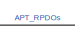
[diagram: root canvas - part 1/3, top center region]
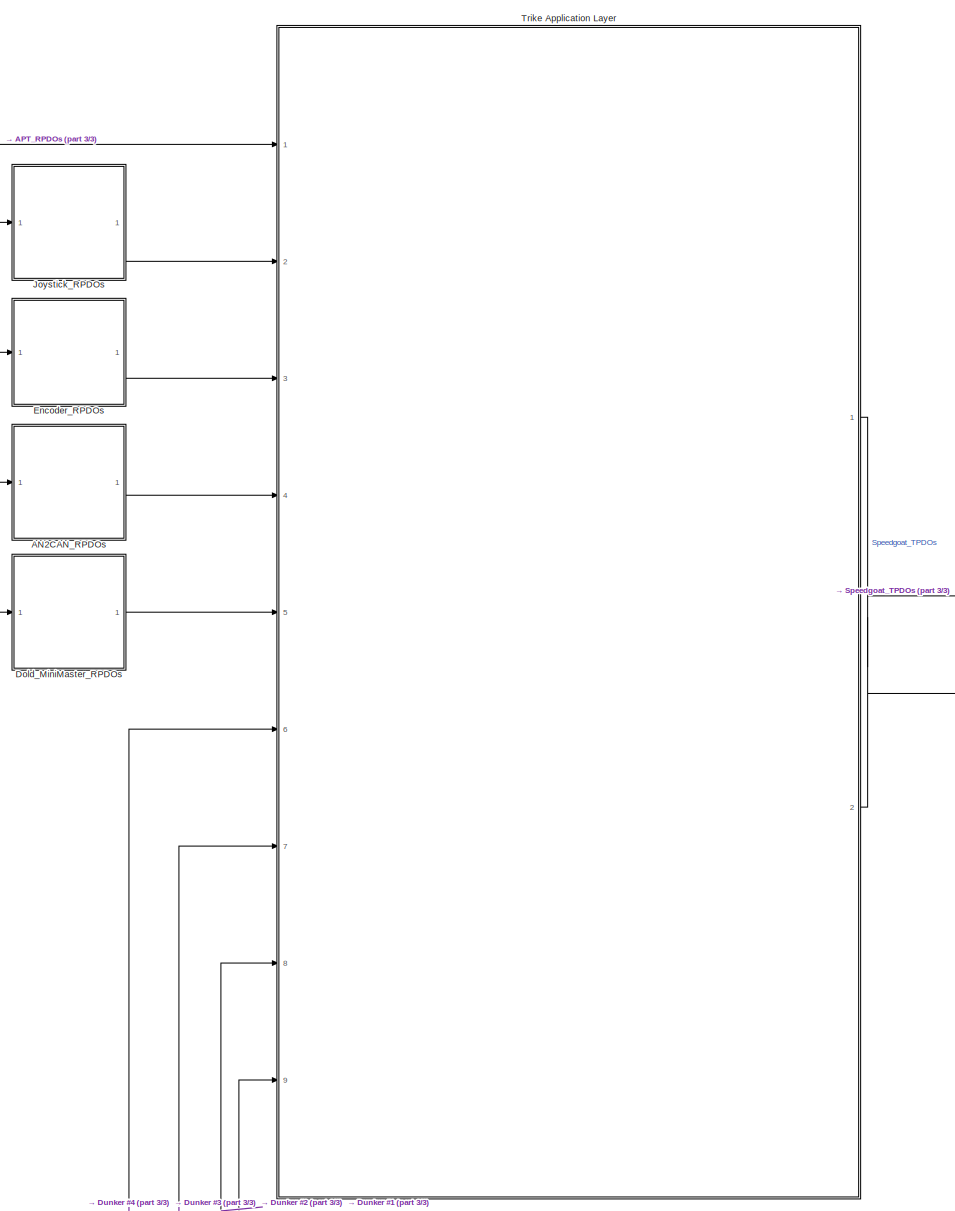
[diagram: root canvas - part 2/3, left side, full height]
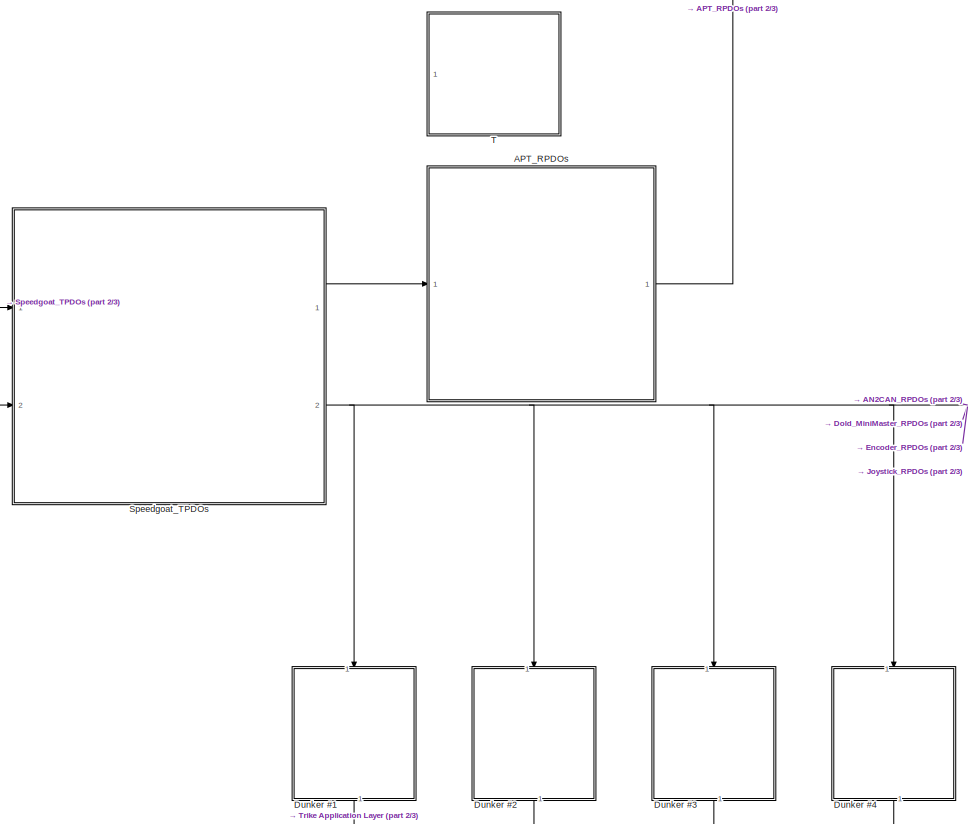
[diagram: root canvas - part 3/3, middle right region]
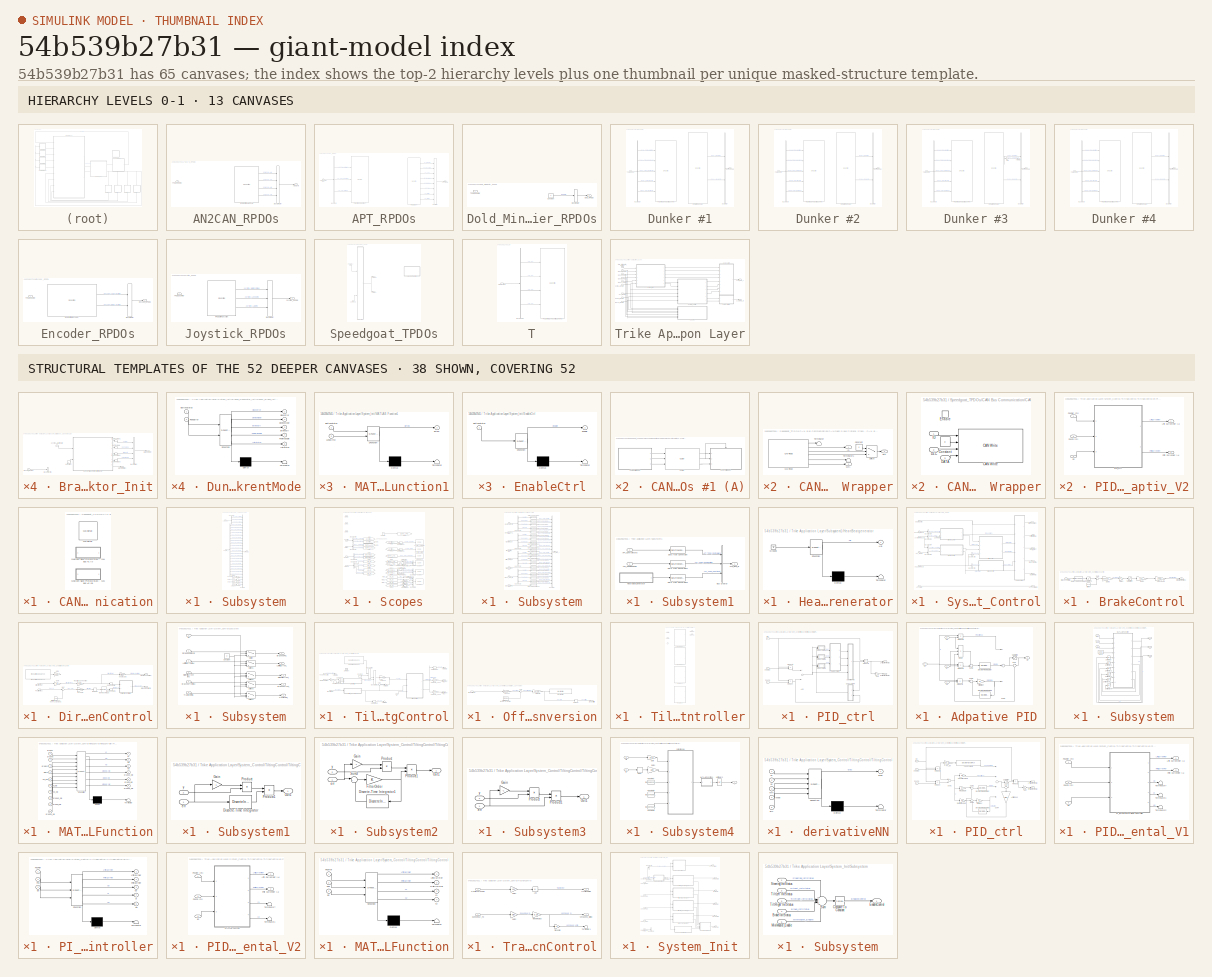
[diagram: thumbnail index - top-2 hierarchy levels (13 canvases) + 38 structural-template representatives of the remaining 52 canvases]
MODEL slx_54b539b27b31
KIND model
CONFIG AbsTol = auto
CONFIG EnableMultiTasking = on
CONFIG FixedStep = 0.0001
CONFIG MaxStep = auto
CONFIG MinStep = auto
CONFIG RelTol = 1e-3
CONFIG SampleTimeConstraint = Unconstrained
CONFIG Solver = ode8
CONFIG SolverName = ode8
CONFIG StartTime = 0.0
CONFIG StopTime = inf
BLOCK [SubSystem] AN2CAN_RPDOs
  Ports = [1, 1]
  RequestExecContextInheritance = off
BLOCK [Outport] AN2CAN_RPDOs/AN2CAN
  IconDisplay = Port number
  OutDataTypeStr = Bus: AN2CAN_conv
BLOCK [BusCreator] AN2CAN_RPDOs/Bus Creator
  DisplayOption = bar
  InheritFromInputs = on
  Inputs = 4
  OutDataTypeStr = Bus: AN2CAN_conv
  Ports = [4, 1]
BLOCK [S-Function] AN2CAN_RPDOs/RPDOs from AN2CAN 
  CopyFcn = set_param(gcbh,'LinkStatus','none')
  EnableBusSupport = off
  FunctionName = RPDOs_from_AN2CANConv
  InitFcn = try, set_param(gcb,'FunctionName','RPDOs_from_AN2CANConv'), end
  OpenFcn = sfunctionwizard(gcbh)
  Ports = [0, 4]
  PreSaveFcn = try, set_param(gcb,'FunctionName','RPDOs_from_AN2CANConv'), end
  SFcnIsStateOwnerBlock = off
  SFunctionDeploymentMode = off
  SFunctionModules = RPDOs_from_AN2CANConv_wrapper
BLOCK [Inport] AN2CAN_RPDOs/TPDOs dummy
  IconDisplay = Port number
BLOCK [SubSystem] APT_RPDOs
  Ports = [1, 1]
  RequestExecContextInheritance = off
BLOCK [Outport] APT_RPDOs/APT_RPDOs
  IconDisplay = Port number
  OutDataTypeStr = Bus: APT_RPDOs
BLOCK [BusCreator] APT_RPDOs/Bus Creator
  DisplayOption = bar
  InheritFromInputs = on
  Inputs = 8
  OutDataTypeStr = Bus: APT_RPDOs
  Ports = [8, 1]
BLOCK [BusSelector] APT_RPDOs/Bus Selector
  OutputAsBus = off
  OutputSignals = APT_TPDO_ControlWord,APT_TPDO_PedalPosition,APT_TPDO_Heartbeat
  Ports = [1, 3]
BLOCK [S-Function] APT_RPDOs/RPDOs from APT
  CopyFcn = set_param(gcbh,'LinkStatus','none')
  EnableBusSupport = off
  FunctionName = RPDOs_from_APT
  InitFcn = try, set_param(gcb,'FunctionName','RPDOs_from_APT'), end
  OpenFcn = sfunctionwizard(gcbh)
  Ports = [0, 8]
  PreSaveFcn = try, set_param(gcb,'FunctionName','RPDOs_from_APT'), end
  SFcnIsStateOwnerBlock = off
  SFunctionDeploymentMode = off
  SFunctionModules = RPDOs_from_APT_wrapper
BLOCK [Inport] APT_RPDOs/TPDOs APT - QS Motor 
  IconDisplay = Port number
  OutDataTypeStr = Bus: Speedgoat_TPDOs
BLOCK [S-Function] APT_RPDOs/TPDOs from Speedgoat to APT
  CopyFcn = set_param(gcbh,'LinkStatus','none')
  EnableBusSupport = off
  FunctionName = TPDOs_to_APT
  InitFcn = try, set_param(gcb,'FunctionName','TPDOs_to_APT'), end
  OpenFcn = sfunctionwizard(gcbh)
  Ports = [3]
  PreSaveFcn = try, set_param(gcb,'FunctionName','TPDOs_to_APT'), end
  SFcnIsStateOwnerBlock = off
  SFunctionDeploymentMode = off
  SFunctionModules = TPDOs_to_APT_wrapper
BLOCK [SubSystem] Dold_MiniMaster_RPDOs
  Ports = [1, 1]
  RequestExecContextInheritance = off
BLOCK [BusCreator] Dold_MiniMaster_RPDOs/Bus Creator
  DisplayOption = bar
  InheritFromInputs = on
  Inputs = 1
  OutDataTypeStr = Bus: Dold_RPDOs
  Ports = [1, 1]
BLOCK [Constant] Dold_MiniMaster_RPDOs/Constant
  OutDataTypeStr = uint8
BLOCK [Outport] Dold_MiniMaster_RPDOs/Dold_RPDOs
  IconDisplay = Port number
  OutDataTypeStr = Bus: Dold_RPDOs
BLOCK [Inport] Dold_MiniMaster_RPDOs/TPDOs dummy
  IconDisplay = Port number
BLOCK [SubSystem] Dunker #1
  Ports = [1, 1]
  RequestExecContextInheritance = off
BLOCK [BusCreator] Dunker #1/Bus Creator
  DisplayOption = bar
  InheritFromInputs = on
  Inputs = 2
  OutDataTypeStr = Bus: Dunk_RPDOs
  Ports = [2, 1]
BLOCK [BusSelector] Dunker #1/Bus Selector
  OutputAsBus = off
  OutputSignals = DunkA_TPDO_ClearError,DunkA_TPDO_DeviceMode,DunkA_TPDO_PowerEnable,DunkA_TPDO_BrakeCtrl,DunkA_TPDO_DesiredCurrent
  Ports = [1, 5]
BLOCK [Outport] Dunker #1/DunkA_RPDOs
  IconDisplay = Port number
  OutDataTypeStr = Bus: Dunk_RPDOs
BLOCK [S-Function] Dunker #1/RPDOs from Dunker #1
  CopyFcn = set_param(gcbh,'LinkStatus','none')
  EnableBusSupport = off
  FunctionName = RPDOs_from_DunkA
  InitFcn = try, set_param(gcb,'FunctionName','RPDOs_from_DunkA'), end
  OpenFcn = sfunctionwizard(gcbh)
  Ports = [0, 2]
  PreSaveFcn = try, set_param(gcb,'FunctionName','RPDOs_from_DunkA'), end
  SFcnIsStateOwnerBlock = off
  SFunctionDeploymentMode = off
  SFunctionModules = RPDOs_from_DunkA_wrapper
BLOCK [Inport] Dunker #1/TPDOs DunkA
  IconDisplay = Port number
  OutDataTypeStr = Bus: Speedgoat_TPDOs
BLOCK [S-Function] Dunker #1/TPDOs from Speedgoat to Dunker #1
  CopyFcn = set_param(gcbh,'LinkStatus','none')
  EnableBusSupport = off
  FunctionName = TPDOs_to_DunkA
  InitFcn = try, set_param(gcb,'FunctionName','TPDOs_to_DunkA'), end
  OpenFcn = sfunctionwizard(gcbh)
  Ports = [5]
  PreSaveFcn = try, set_param(gcb,'FunctionName','TPDOs_to_DunkA'), end
  SFcnIsStateOwnerBlock = off
  SFunctionDeploymentMode = off
  SFunctionModules = TPDOs_to_DunkA_wrapper
BLOCK [SubSystem] Dunker #2
  Ports = [1, 1]
  RequestExecContextInheritance = off
BLOCK [BusCreator] Dunker #2/Bus Creator
  DisplayOption = bar
  InheritFromInputs = on
  Inputs = 2
  OutDataTypeStr = Bus: Dunk_RPDOs
  Ports = [2, 1]
BLOCK [BusSelector] Dunker #2/Bus Selector
  OutputAsBus = off
  OutputSignals = DunkB_TPDO_ClearError,DunkB_TPDO_DeviceMode,DunkB_TPDO_PowerEnable,DunkB_TPDO_BrakeCtrl,DunkB_TPDO_DesiredCurrent
  Ports = [1, 5]
BLOCK [Outport] Dunker #2/DunkB_RPDOs
  IconDisplay = Port number
  OutDataTypeStr = Bus: Dunk_RPDOs
BLOCK [S-Function] Dunker #2/RPDOs from Dunker #1
  CopyFcn = set_param(gcbh,'LinkStatus','none')
  EnableBusSupport = off
  FunctionName = RPDOs_from_DunkB
  InitFcn = try, set_param(gcb,'FunctionName','RPDOs_from_DunkB'), end
  OpenFcn = sfunctionwizard(gcbh)
  Ports = [0, 2]
  PreSaveFcn = try, set_param(gcb,'FunctionName','RPDOs_from_DunkB'), end
  SFcnIsStateOwnerBlock = off
  SFunctionDeploymentMode = off
  SFunctionModules = RPDOs_from_DunkB_wrapper
BLOCK [Inport] Dunker #2/TPDOs dummy
  IconDisplay = Port number
  OutDataTypeStr = Bus: Speedgoat_TPDOs
BLOCK [S-Function] Dunker #2/TPDOs from Speedgoat to Dunker #1
  CopyFcn = set_param(gcbh,'LinkStatus','none')
  EnableBusSupport = off
  FunctionName = TPDOs_to_DunkB
  InitFcn = try, set_param(gcb,'FunctionName','TPDOs_to_DunkB'), end
  OpenFcn = sfunctionwizard(gcbh)
  Ports = [5]
  PreSaveFcn = try, set_param(gcb,'FunctionName','TPDOs_to_DunkB'), end
  SFcnIsStateOwnerBlock = off
  SFunctionDeploymentMode = off
  SFunctionModules = TPDOs_to_DunkB_wrapper
BLOCK [SubSystem] Dunker #3
  Ports = [1, 1]
  RequestExecContextInheritance = off
BLOCK [BusCreator] Dunker #3/Bus Creator
  DisplayOption = bar
  InheritFromInputs = on
  Inputs = 2
  OutDataTypeStr = Bus: Dunk_RPDOs
  Ports = [2, 1]
BLOCK [BusSelector] Dunker #3/Bus Selector
  OutputAsBus = off
  OutputSignals = DunkC_TPDO_ClearError,DunkC_TPDO_DeviceMode,DunkC_TPDO_PowerEnable,DunkC_TPDO_BrakeCtrl,DunkC_TPDO_DesiredCurrent
  Ports = [1, 5]
BLOCK [Outport] Dunker #3/DunkC_RPDOs
  IconDisplay = Port number
  OutDataTypeStr = Bus: Dunk_RPDOs
BLOCK [Gain] Dunker #3/Gain
  Gain = -1
  OutDataTypeStr = Inherit: Inherit via internal rule
  ParamDataTypeStr = Inherit: Inherit via internal rule
  SaturateOnIntegerOverflow = off
BLOCK [S-Function] Dunker #3/RPDOs from Dunker #1
  CopyFcn = set_param(gcbh,'LinkStatus','none')
  EnableBusSupport = off
  FunctionName = RPDOs_from_DunkC
  InitFcn = try, set_param(gcb,'FunctionName','RPDOs_from_DunkC'), end
  OpenFcn = sfunctionwizard(gcbh)
  Ports = [0, 2]
  PreSaveFcn = try, set_param(gcb,'FunctionName','RPDOs_from_DunkC'), end
  SFcnIsStateOwnerBlock = off
  SFunctionDeploymentMode = off
  SFunctionModules = RPDOs_from_DunkC_wrapper
BLOCK [Inport] Dunker #3/TPDOs dummy
  IconDisplay = Port number
  OutDataTypeStr = Bus: Speedgoat_TPDOs
BLOCK [S-Function] Dunker #3/TPDOs from Speedgoat to Dunker #1
  CopyFcn = set_param(gcbh,'LinkStatus','none')
  EnableBusSupport = off
  FunctionName = TPDOs_to_DunkC
  InitFcn = try, set_param(gcb,'FunctionName','TPDOs_to_DunkC'), end
  OpenFcn = sfunctionwizard(gcbh)
  Ports = [5]
  PreSaveFcn = try, set_param(gcb,'FunctionName','TPDOs_to_DunkC'), end
  SFcnIsStateOwnerBlock = off
  SFunctionDeploymentMode = off
  SFunctionModules = TPDOs_to_DunkC_wrapper
BLOCK [Terminator] Dunker #3/Terminator
BLOCK [SubSystem] Dunker #4
  Ports = [1, 1]
  RequestExecContextInheritance = off
BLOCK [BusCreator] Dunker #4/Bus Creator
  DisplayOption = bar
  InheritFromInputs = on
  Inputs = 2
  OutDataTypeStr = Bus: Dunk_RPDOs
  Ports = [2, 1]
BLOCK [BusSelector] Dunker #4/Bus Selector
  OutputAsBus = off
  OutputSignals = DunkD_TPDO_ClearError,DunkD_TPDO_DeviceMode,DunkD_TPDO_PowerEnable,DunkD_TPDO_BrakeCtrl,DunkD_TPDO_DesiredCurrent
  Ports = [1, 5]
BLOCK [Outport] Dunker #4/DunkD_RPDOs
  IconDisplay = Port number
  OutDataTypeStr = Bus: Dunk_RPDOs
BLOCK [S-Function] Dunker #4/RPDOs from Dunker #1
  CopyFcn = set_param(gcbh,'LinkStatus','none')
  EnableBusSupport = off
  FunctionName = RPDOs_from_DunkD
  InitFcn = try, set_param(gcb,'FunctionName','RPDOs_from_DunkD'), end
  OpenFcn = sfunctionwizard(gcbh)
  Ports = [0, 2]
  PreSaveFcn = try, set_param(gcb,'FunctionName','RPDOs_from_DunkD'), end
  SFcnIsStateOwnerBlock = off
  SFunctionDeploymentMode = off
  SFunctionModules = RPDOs_from_DunkD_wrapper
BLOCK [Inport] Dunker #4/TPDOs dummy
  IconDisplay = Port number
  OutDataTypeStr = Bus: Speedgoat_TPDOs
BLOCK [S-Function] Dunker #4/TPDOs from Speedgoat to Dunker #1
  CopyFcn = set_param(gcbh,'LinkStatus','none')
  EnableBusSupport = off
  FunctionName = TPDOs_to_DunkD
  InitFcn = try, set_param(gcb,'FunctionName','TPDOs_to_DunkD'), end
  OpenFcn = sfunctionwizard(gcbh)
  Ports = [5]
  PreSaveFcn = try, set_param(gcb,'FunctionName','TPDOs_to_DunkD'), end
  SFcnIsStateOwnerBlock = off
  SFunctionDeploymentMode = off
  SFunctionModules = TPDOs_to_DunkD_wrapper
BLOCK [SubSystem] Encoder_RPDOs
  Ports = [1, 1]
  RequestExecContextInheritance = off
BLOCK [BusCreator] Encoder_RPDOs/Bus Creator
  DisplayOption = bar
  InheritFromInputs = on
  Inputs = 2
  OutDataTypeStr = Bus: Encoder_RPDOs
  Ports = [2, 1]
BLOCK [Outport] Encoder_RPDOs/Encoder_RPDOs
  IconDisplay = Port number
  OutDataTypeStr = Bus: Encoder_RPDOs
BLOCK [S-Function] Encoder_RPDOs/RPDOs from Encoder
  CopyFcn = set_param(gcbh,'LinkStatus','none')
  EnableBusSupport = off
  FunctionName = RPDOs_from_Encoder
  InitFcn = try, set_param(gcb,'FunctionName','RPDOs_from_Encoder'), end
  OpenFcn = sfunctionwizard(gcbh)
  Ports = [0, 2]
  PreSaveFcn = try, set_param(gcb,'FunctionName','RPDOs_from_Encoder'), end
  SFcnIsStateOwnerBlock = off
  SFunctionDeploymentMode = off
  SFunctionModules = RPDOs_from_Encoder_wrapper
BLOCK [Inport] Encoder_RPDOs/TPDOs dummy
  IconDisplay = Port number
BLOCK [SubSystem] Joystick_RPDOs
  Ports = [1, 1]
  RequestExecContextInheritance = off
BLOCK [BusCreator] Joystick_RPDOs/Bus Creator
  DisplayOption = bar
  InheritFromInputs = on
  Inputs = 3
  OutDataTypeStr = Bus: Joystick_RPDOs
  Ports = [3, 1]
BLOCK [Outport] Joystick_RPDOs/Joystick_RPDOs
  IconDisplay = Port number
  OutDataTypeStr = Bus: Joystick_RPDOs
BLOCK [S-Function] Joystick_RPDOs/RPDOs from Joystick
  CopyFcn = set_param(gcbh,'LinkStatus','none')
  EnableBusSupport = off
  FunctionName = RPDOs_from_Joystick
  InitFcn = try, set_param(gcb,'FunctionName','RPDOs_from_Joystick'), end
  OpenFcn = sfunctionwizard(gcbh)
  Ports = [0, 3]
  PreSaveFcn = try, set_param(gcb,'FunctionName','RPDOs_from_Joystick'), end
  SFcnIsStateOwnerBlock = off
  SFunctionDeploymentMode = off
  SFunctionModules = RPDOs_from_Joystick_wrapper
BLOCK [Inport] Joystick_RPDOs/TPDOs dummy
  IconDisplay = Port number
BLOCK [SubSystem] Speedgoat_TPDOs
  Ports = [2, 2]
  RequestExecContextInheritance = off
BLOCK [Outport] Speedgoat_TPDOs/CAB Bus A 
  IconDisplay = Port number
  OutDataTypeStr = Bus: Speedgoat_TPDOs
  Port = 2
BLOCK [Outport] Speedgoat_TPDOs/CAB Bus B
  IconDisplay = Port number
  OutDataTypeStr = Bus: Speedgoat_TPDOs
BLOCK [SubSystem] Speedgoat_TPDOs/CAN Bus Communication
  Ports = []
  RequestExecContextInheritance = off
BLOCK [Reference] Speedgoat_TPDOs/CAN Bus Communication/CAN Setup   REF=speedgoatlib_IO691/CAN Setup 
  Ports = []
  SourceBlock = speedgoatlib_IO691/CAN Setup
  SourceProductName = Simulink Real-Time: Speedgoat Library
  SourceType = setup_IO691
BLOCK [SubSystem] Speedgoat_TPDOs/CAN Bus Communication/CANOpen Slave Protocol Stack - CAN Bus #1 (A)
  Ports = []
  RequestExecContextInheritance = off
BLOCK [CCaller] Speedgoat_TPDOs/CAN Bus Communication/CANOpen Slave Protocol Stack - CAN Bus #1 (A)/C Caller
  FunctionName = CANOpenSlave_ProcessStack
  PortSpecificationStruct = %)30     .    ( D   8    (     @         %    "     8    !     0         %  0 "0    $    V    07)G3F%M90  4&]R=$YA;64 4V-O<&4     26YD97@     5'EP90      4VEZ90         .    ,     8    (    !          %    "     $    $     0         0  0 <GA)1 X    P    !@    @    $          4    (     0    0    !         !  ! !R>$E$#@   #@    &    "     0         !0    @    !    !0    $         $     4   !);G!U= ...<+2730ch>
  Ports = [3, 3]
BLOCK [SubSystem] Speedgoat_TPDOs/CAN Bus Communication/CANOpen Slave Protocol Stack - CAN Bus #1 (A)/CAN RX Wrapper
  Ports = [0, 3]
  RequestExecContextInheritance = off
BLOCK [Reference] Speedgoat_TPDOs/CAN Bus Communication/CANOpen Slave Protocol Stack - CAN Bus #1 (A)/CAN RX Wrapper/CAN Read  REF=speedgoatlib_IO691/CAN Read
  Ports = [0, 6]
  SourceBlock = speedgoatlib_IO691/CAN Read
  SourceProductName = Simulink Real-Time: Speedgoat Library
  SourceType = read_IO691
BLOCK [Constant] Speedgoat_TPDOs/CAN Bus Communication/CANOpen Slave Protocol Stack - CAN Bus #1 (A)/CAN RX Wrapper/Constant
  Commented = on
  OutDataTypeStr = Inherit: Inherit via back propagation
  Value = 0
BLOCK [Outport] Speedgoat_TPDOs/CAN Bus Communication/CANOpen Slave Protocol Stack - CAN Bus #1 (A)/CAN RX Wrapper/DATA
  IconDisplay = Port number
  Port = 3
BLOCK [Outport] Speedgoat_TPDOs/CAN Bus Communication/CANOpen Slave Protocol Stack - CAN Bus #1 (A)/CAN RX Wrapper/DLC
  IconDisplay = Port number
  Port = 2
BLOCK [Outport] Speedgoat_TPDOs/CAN Bus Communication/CANOpen Slave Protocol Stack - CAN Bus #1 (A)/CAN RX Wrapper/ID
  IconDisplay = Port number
BLOCK [Switch] Speedgoat_TPDOs/CAN Bus Communication/CANOpen Slave Protocol Stack - CAN Bus #1 (A)/CAN RX Wrapper/Switch
  Criteria = u2 > Threshold
  InputSameDT = off
  SaturateOnIntegerOverflow = off
BLOCK [Terminator] Speedgoat_TPDOs/CAN Bus Communication/CANOpen Slave Protocol Stack - CAN Bus #1 (A)/CAN RX Wrapper/Terminator
BLOCK [Terminator] Speedgoat_TPDOs/CAN Bus Communication/CANOpen Slave Protocol Stack - CAN Bus #1 (A)/CAN RX Wrapper/Terminator1
BLOCK [SubSystem] Speedgoat_TPDOs/CAN Bus Communication/CANOpen Slave Protocol Stack - CAN Bus #1 (A)/CAN TX Wrapper
  Ports = [3, 0, 1]
  RequestExecContextInheritance = off
BLOCK [Reference] Speedgoat_TPDOs/CAN Bus Communication/CANOpen Slave Protocol Stack - CAN Bus #1 (A)/CAN TX Wrapper/CAN Write  REF=speedgoatlib_IO691/CAN Write
  Ports = [4]
  SourceBlock = speedgoatlib_IO691/CAN Write
  SourceProductName = Simulink Real-Time: Speedgoat Library
  SourceType = write_IO691
BLOCK [Constant] Speedgoat_TPDOs/CAN Bus Communication/CANOpen Slave Protocol Stack - CAN Bus #1 (A)/CAN TX Wrapper/Constant
  OutDataTypeStr = Inherit: Inherit via back propagation
  Value = 0
BLOCK [Inport] Speedgoat_TPDOs/CAN Bus Communication/CANOpen Slave Protocol Stack - CAN Bus #1 (A)/CAN TX Wrapper/DATA
  IconDisplay = Port number
  Port = 3
BLOCK [Inport] Speedgoat_TPDOs/CAN Bus Communication/CANOpen Slave Protocol Stack - CAN Bus #1 (A)/CAN TX Wrapper/DLC
  IconDisplay = Port number
  Port = 2
BLOCK [EnablePort] Speedgoat_TPDOs/CAN Bus Communication/CANOpen Slave Protocol Stack - CAN Bus #1 (A)/CAN TX Wrapper/Enable
  Ports = []
BLOCK [Inport] Speedgoat_TPDOs/CAN Bus Communication/CANOpen Slave Protocol Stack - CAN Bus #1 (A)/CAN TX Wrapper/ID
  IconDisplay = Port number
BLOCK [SubSystem] Speedgoat_TPDOs/CAN Bus Communication/CANOpen Slave Protocol Stack - CAN Bus #2 (B)
  Ports = []
  RequestExecContextInheritance = off
BLOCK [CCaller] Speedgoat_TPDOs/CAN Bus Communication/CANOpen Slave Protocol Stack - CAN Bus #2 (B)/C Caller
  FunctionName = CANOpenSlave_ProcessStack_APT
  PortSpecificationStruct = %)30     .    ( D   8    (     @         %    "     8    !     0         %  0 "0    $    V    07)G3F%M90  4&]R=$YA;64 4V-O<&4     26YD97@     5'EP90      4VEZ90         .    ,     8    (    !          %    "     $    $     0         0  0 <GA)1 X    P    !@    @    $          4    (     0    0    !         !  ! !R>$E$#@   #@    &    "     0         !0    @    !    !0    $         $     4   !);G!U= ...<+2730ch>
  Ports = [3, 3]
BLOCK [SubSystem] Speedgoat_TPDOs/CAN Bus Communication/CANOpen Slave Protocol Stack - CAN Bus #2 (B)/CAN RX Wrapper
  Ports = [0, 3]
  RequestExecContextInheritance = off
BLOCK [Reference] Speedgoat_TPDOs/CAN Bus Communication/CANOpen Slave Protocol Stack - CAN Bus #2 (B)/CAN RX Wrapper/CAN Read  REF=speedgoatlib_IO691/CAN Read
  Ports = [0, 6]
  SourceBlock = speedgoatlib_IO691/CAN Read
  SourceProductName = Simulink Real-Time: Speedgoat Library
  SourceType = read_IO691
BLOCK [Constant] Speedgoat_TPDOs/CAN Bus Communication/CANOpen Slave Protocol Stack - CAN Bus #2 (B)/CAN RX Wrapper/Constant
  Commented = on
  OutDataTypeStr = Inherit: Inherit via back propagation
  Value = 0
BLOCK [Outport] Speedgoat_TPDOs/CAN Bus Communication/CANOpen Slave Protocol Stack - CAN Bus #2 (B)/CAN RX Wrapper/DATA
  IconDisplay = Port number
  Port = 3
BLOCK [Outport] Speedgoat_TPDOs/CAN Bus Communication/CANOpen Slave Protocol Stack - CAN Bus #2 (B)/CAN RX Wrapper/DLC
  IconDisplay = Port number
  Port = 2
BLOCK [Outport] Speedgoat_TPDOs/CAN Bus Communication/CANOpen Slave Protocol Stack - CAN Bus #2 (B)/CAN RX Wrapper/ID
  IconDisplay = Port number
BLOCK [Switch] Speedgoat_TPDOs/CAN Bus Communication/CANOpen Slave Protocol Stack - CAN Bus #2 (B)/CAN RX Wrapper/Switch
  Criteria = u2 > Threshold
  InputSameDT = off
  SaturateOnIntegerOverflow = off
BLOCK [Terminator] Speedgoat_TPDOs/CAN Bus Communication/CANOpen Slave Protocol Stack - CAN Bus #2 (B)/CAN RX Wrapper/Terminator
BLOCK [Terminator] Speedgoat_TPDOs/CAN Bus Communication/CANOpen Slave Protocol Stack - CAN Bus #2 (B)/CAN RX Wrapper/Terminator1
BLOCK [SubSystem] Speedgoat_TPDOs/CAN Bus Communication/CANOpen Slave Protocol Stack - CAN Bus #2 (B)/CAN TX Wrapper
  Ports = [3, 0, 1]
  RequestExecContextInheritance = off
BLOCK [Reference] Speedgoat_TPDOs/CAN Bus Communication/CANOpen Slave Protocol Stack - CAN Bus #2 (B)/CAN TX Wrapper/CAN Write  REF=speedgoatlib_IO691/CAN Write
  Ports = [4]
  SourceBlock = speedgoatlib_IO691/CAN Write
  SourceProductName = Simulink Real-Time: Speedgoat Library
  SourceType = write_IO691
BLOCK [Constant] Speedgoat_TPDOs/CAN Bus Communication/CANOpen Slave Protocol Stack - CAN Bus #2 (B)/CAN TX Wrapper/Constant
  OutDataTypeStr = Inherit: Inherit via back propagation
  Value = 0
BLOCK [Inport] Speedgoat_TPDOs/CAN Bus Communication/CANOpen Slave Protocol Stack - CAN Bus #2 (B)/CAN TX Wrapper/DATA
  IconDisplay = Port number
  Port = 3
BLOCK [Inport] Speedgoat_TPDOs/CAN Bus Communication/CANOpen Slave Protocol Stack - CAN Bus #2 (B)/CAN TX Wrapper/DLC
  IconDisplay = Port number
  Port = 2
BLOCK [EnablePort] Speedgoat_TPDOs/CAN Bus Communication/CANOpen Slave Protocol Stack - CAN Bus #2 (B)/CAN TX Wrapper/Enable
  Ports = []
BLOCK [Inport] Speedgoat_TPDOs/CAN Bus Communication/CANOpen Slave Protocol Stack - CAN Bus #2 (B)/CAN TX Wrapper/ID
  IconDisplay = Port number
BLOCK [Inport] Speedgoat_TPDOs/CAN_BUS_A
  IconDisplay = Port number
  OutDataTypeStr = Bus: CAN_BUS_A
BLOCK [Inport] Speedgoat_TPDOs/CAN_BUS_B
  IconDisplay = Port number
  OutDataTypeStr = Bus: CAN_BUS_B
  Port = 2
BLOCK [SubSystem] Speedgoat_TPDOs/Subsystem
  Ports = [2, 1]
  RequestExecContextInheritance = off
BLOCK [BusCreator] Speedgoat_TPDOs/Subsystem/Bus Creator1
  DisplayOption = bar
  InheritFromInputs = on
  Inputs = 27
  OutDataTypeStr = Bus: Speedgoat_TPDOs
  Ports = [27, 1]
BLOCK [BusSelector] Speedgoat_TPDOs/Subsystem/Bus Selector1
  OutputAsBus = off
  OutputSignals = APT_TPDO_ControlWord,APT_TPDO_PedalPosition,APT_TPDO_Heartbeat
  Ports = [1, 3]
BLOCK [BusSelector] Speedgoat_TPDOs/Subsystem/Bus Selector9
  OutputAsBus = off
  OutputSignals = DunkA_TPDO_ClearError,DunkA_TPDO_DeviceMode,DunkA_TPDO_PowerEnable,DunkA_TPDO_BrakeCtrl,DunkA_TPDO_DesiredCurrent,DunkB_TPDO_ClearError,DunkB_TPDO_DeviceMode,DunkB_TPDO_PowerEnable,DunkB_TPDO_BrakeCtrl,DunkB_TPDO_DesiredCurrent,DunkC_TPDO_ClearError,DunkC_TPDO_DeviceMode,DunkC_TPDO_PowerEnable,DunkC_TPDO_BrakeCtrl,DunkC_TPDO_DesiredCurrent,DunkD_TPDO_ClearError,DunkD_TPDO_DeviceMode,DunkD_TPDO_Pow...<+55ch>
  Ports = [1, 20]
BLOCK [Inport] Speedgoat_TPDOs/Subsystem/CAN_BUS_A
  IconDisplay = Port number
  OutDataTypeStr = Bus: CAN_BUS_A
BLOCK [Inport] Speedgoat_TPDOs/Subsystem/CAN_BUS_B
  IconDisplay = Port number
  OutDataTypeStr = Bus: CAN_BUS_B
  Port = 2
BLOCK [DataTypeConversion] Speedgoat_TPDOs/Subsystem/Cast To Single
  OutDataTypeStr = int16
  RndMeth = Floor
  SaturateOnIntegerOverflow = off
BLOCK [DataTypeConversion] Speedgoat_TPDOs/Subsystem/Cast To Single1
  OutDataTypeStr = int16
  RndMeth = Floor
  SaturateOnIntegerOverflow = off
BLOCK [DataTypeConversion] Speedgoat_TPDOs/Subsystem/Cast To Single2
  OutDataTypeStr = int16
  RndMeth = Floor
  SaturateOnIntegerOverflow = off
BLOCK [DataTypeConversion] Speedgoat_TPDOs/Subsystem/Cast To Single3
  OutDataTypeStr = int16
  RndMeth = Floor
  SaturateOnIntegerOverflow = off
BLOCK [Sin] Speedgoat_TPDOs/Subsystem/Sine Wave
  Amplitude = 5000
  Bias = 2500
  Frequency = 4
  Ports = [0, 1]
  SampleTime = 0
BLOCK [Sin] Speedgoat_TPDOs/Subsystem/Sine Wave1
  Amplitude = 5000
  Bias = 2500
  Frequency = 4
  Ports = [0, 1]
  SampleTime = 0
BLOCK [Sin] Speedgoat_TPDOs/Subsystem/Sine Wave2
  Amplitude = 5000
  Bias = 2500
  Frequency = 4
  Ports = [0, 1]
  SampleTime = 0
BLOCK [Sin] Speedgoat_TPDOs/Subsystem/Sine Wave3
  Amplitude = 5000
  Bias = 2500
  Frequency = 4
  Ports = [0, 1]
  SampleTime = 0
BLOCK [Outport] Speedgoat_TPDOs/Subsystem/SpeedGoat
  IconDisplay = Port number
  OutDataTypeStr = Bus: Speedgoat_TPDOs
BLOCK [SubSystem] T
  Commented = on
  Ports = [1]
  RequestExecContextInheritance = off
BLOCK [BusSelector] T/Bus Selector
  OutputAsBus = off
  OutputSignals = AN_01,AN_02,AN_03,AN_04
  Ports = [1, 4]
BLOCK [Inport] T/TPDOs TEST
  IconDisplay = Port number
  OutDataTypeStr = Bus: Speedgoat_TPDOs
BLOCK [S-Function] T/TPDOs from Speedgoat to Dunker #1
  CopyFcn = set_param(gcbh,'LinkStatus','none')
  EnableBusSupport = off
  FunctionName = TPDOs_TEST
  InitFcn = try, set_param(gcb,'FunctionName','TPDOs_TEST'), end
  OpenFcn = sfunctionwizard(gcbh)
  Ports = [4]
  PreSaveFcn = try, set_param(gcb,'FunctionName','TPDOs_TEST'), end
  SFcnIsStateOwnerBlock = off
  SFunctionDeploymentMode = off
  SFunctionModules = TPDOs_TEST_wrapper
BLOCK [SubSystem] Trike Application Layer
  Ports = [9, 2]
  RequestExecContextInheritance = off
BLOCK [Inport] Trike Application Layer/AN2CAN_RPDOs
  IconDisplay = Port number
  OutDataTypeStr = Bus: AN2CAN_conv
  Port = 4
BLOCK [Inport] Trike Application Layer/APT_RPDOs
  IconDisplay = Port number
  OutDataTypeStr = Bus: APT_RPDOs
BLOCK [Outport] Trike Application Layer/CAN_BUS_A
  IconDisplay = Port number
  OutDataTypeStr = Bus: CAN_BUS_A
BLOCK [Outport] Trike Application Layer/CAN_BUS_B
  IconDisplay = Port number
  OutDataTypeStr = Bus: CAN_BUS_B
  Port = 2
BLOCK [Inport] Trike Application Layer/Dold_MiniMaster_RPDOs
  IconDisplay = Port number
  OutDataTypeStr = Bus: Dold_RPDOs
  Port = 5
BLOCK [Inport] Trike Application Layer/DunkA_RPDOs
  IconDisplay = Port number
  OutDataTypeStr = Bus: Dunk_RPDOs
  Port = 9
BLOCK [Inport] Trike Application Layer/DunkB_RPDOs
  IconDisplay = Port number
  OutDataTypeStr = Bus: Dunk_RPDOs
  Port = 8
BLOCK [Inport] Trike Application Layer/DunkC_RPDOs
  IconDisplay = Port number
  OutDataTypeStr = Bus: Dunk_RPDOs
  Port = 7
BLOCK [Inport] Trike Application Layer/DunkD_RPDOs
  IconDisplay = Port number
  OutDataTypeStr = Bus: Dunk_RPDOs
  Port = 6
BLOCK [Inport] Trike Application Layer/Encoder_RPDOs
  IconDisplay = Port number
  OutDataTypeStr = Bus: Encoder_RPDOs
  Port = 3
BLOCK [Inport] Trike Application Layer/Joystick_RPDOs
  IconDisplay = Port number
  OutDataTypeStr = Bus: Joystick_RPDOs
  Port = 2
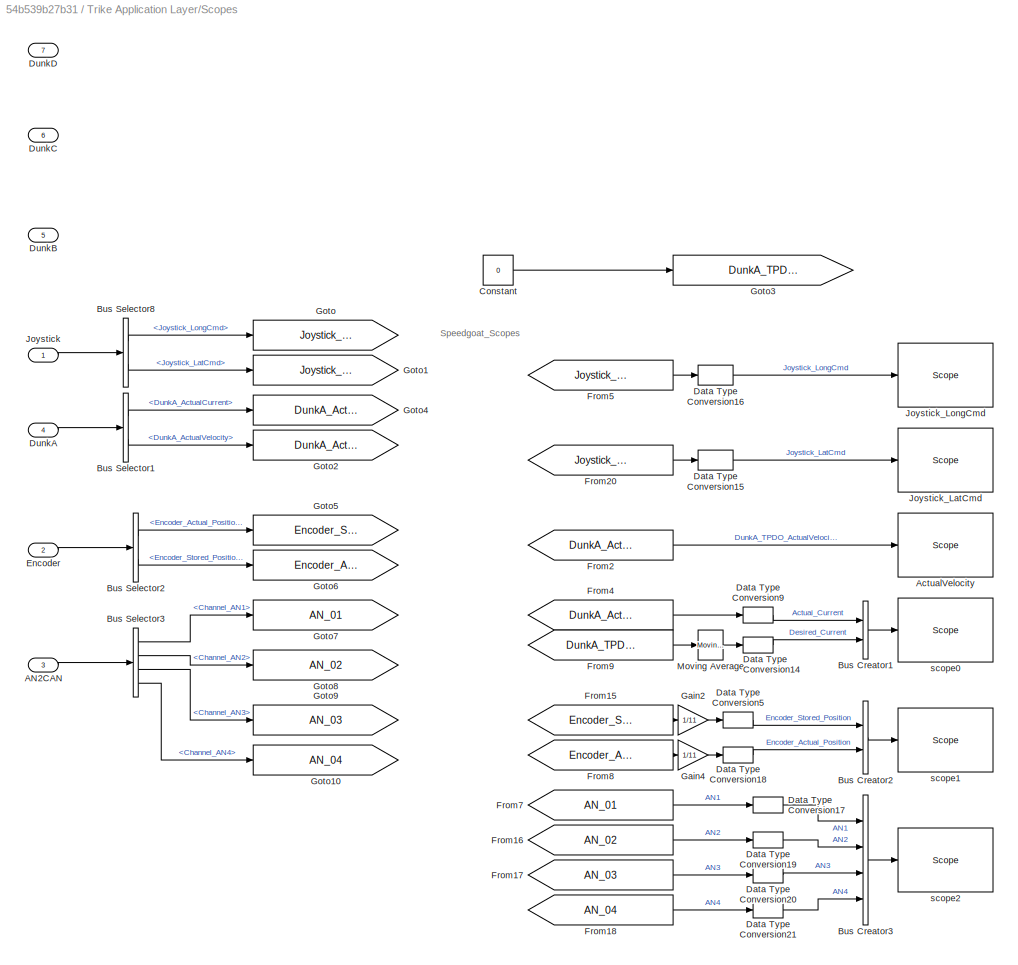
BLOCK [SubSystem] Trike Application Layer/Scopes
  Ports = [7]
  RequestExecContextInheritance = off
BLOCK [Inport] Trike Application Layer/Scopes/AN2CAN
  IconDisplay = Port number
  Port = 3
BLOCK [Reference] Trike Application Layer/Scopes/ActualVelocity  REF=slrtlib/Displays and
Logging/Scope 
  Commented = on
  Ports = [1]
  SourceBlock = slrtlib/Displays and\nLogging/Scope
  SourceProductBaseCode = XP
  SourceType = xpcscopeblock
BLOCK [BusCreator] Trike Application Layer/Scopes/Bus Creator1
  DisplayOption = bar
  InheritFromInputs = on
  Inputs = 2
  Ports = [2, 1]
BLOCK [BusCreator] Trike Application Layer/Scopes/Bus Creator2
  DisplayOption = bar
  InheritFromInputs = on
  Inputs = 2
  Ports = [2, 1]
BLOCK [BusCreator] Trike Application Layer/Scopes/Bus Creator3
  DisplayOption = bar
  InheritFromInputs = on
  Inputs = 4
  Ports = [4, 1]
BLOCK [BusSelector] Trike Application Layer/Scopes/Bus Selector1
  OutputAsBus = off
  OutputSignals = DunkA_ActualCurrent,DunkA_ActualVelocity
  Ports = [1, 2]
BLOCK [BusSelector] Trike Application Layer/Scopes/Bus Selector2
  OutputAsBus = off
  OutputSignals = Encoder_Actual_Position,Encoder_Stored_Position
  Ports = [1, 2]
BLOCK [BusSelector] Trike Application Layer/Scopes/Bus Selector3
  OutputAsBus = off
  OutputSignals = Channel_AN1,Channel_AN2,Channel_AN3,Channel_AN4
  Ports = [1, 4]
BLOCK [BusSelector] Trike Application Layer/Scopes/Bus Selector8
  OutputAsBus = off
  OutputSignals = Joystick_LongCmd,Joystick_LatCmd
  Ports = [1, 2]
BLOCK [Constant] Trike Application Layer/Scopes/Constant
  Value = 0
BLOCK [DataTypeConversion] Trike Application Layer/Scopes/Data Type Conversion14
  OutDataTypeStr = single
  RndMeth = Floor
  SaturateOnIntegerOverflow = off
BLOCK [DataTypeConversion] Trike Application Layer/Scopes/Data Type Conversion15
  OutDataTypeStr = single
  RndMeth = Floor
  SaturateOnIntegerOverflow = off
BLOCK [DataTypeConversion] Trike Application Layer/Scopes/Data Type Conversion16
  OutDataTypeStr = single
  RndMeth = Floor
  SaturateOnIntegerOverflow = off
BLOCK [DataTypeConversion] Trike Application Layer/Scopes/Data Type Conversion17
  OutDataTypeStr = single
  RndMeth = Floor
  SaturateOnIntegerOverflow = off
BLOCK [DataTypeConversion] Trike Application Layer/Scopes/Data Type Conversion18
  OutDataTypeStr = single
  RndMeth = Floor
  SaturateOnIntegerOverflow = off
BLOCK [DataTypeConversion] Trike Application Layer/Scopes/Data Type Conversion19
  OutDataTypeStr = single
  RndMeth = Floor
  SaturateOnIntegerOverflow = off
BLOCK [DataTypeConversion] Trike Application Layer/Scopes/Data Type Conversion20
  OutDataTypeStr = single
  RndMeth = Floor
  SaturateOnIntegerOverflow = off
BLOCK [DataTypeConversion] Trike Application Layer/Scopes/Data Type Conversion21
  OutDataTypeStr = single
  RndMeth = Floor
  SaturateOnIntegerOverflow = off
BLOCK [DataTypeConversion] Trike Application Layer/Scopes/Data Type Conversion5
  OutDataTypeStr = single
  RndMeth = Floor
  SaturateOnIntegerOverflow = off
BLOCK [DataTypeConversion] Trike Application Layer/Scopes/Data Type Conversion9
  OutDataTypeStr = single
  RndMeth = Floor
  SaturateOnIntegerOverflow = off
BLOCK [Inport] Trike Application Layer/Scopes/DunkA
  IconDisplay = Port number
  Port = 4
BLOCK [Inport] Trike Application Layer/Scopes/DunkB
  IconDisplay = Port number
  Port = 5
BLOCK [Inport] Trike Application Layer/Scopes/DunkC
  IconDisplay = Port number
  Port = 6
BLOCK [Inport] Trike Application Layer/Scopes/DunkD
  IconDisplay = Port number
  Port = 7
BLOCK [Inport] Trike Application Layer/Scopes/Encoder
  IconDisplay = Port number
  Port = 2
BLOCK [From] Trike Application Layer/Scopes/From15
  GotoTag = Encoder_Stored_Position
BLOCK [From] Trike Application Layer/Scopes/From16
  GotoTag = AN_02
BLOCK [From] Trike Application Layer/Scopes/From17
  GotoTag = AN_03
BLOCK [From] Trike Application Layer/Scopes/From18
  GotoTag = AN_04
BLOCK [From] Trike Application Layer/Scopes/From2
  GotoTag = DunkA_ActualVelocity
BLOCK [From] Trike Application Layer/Scopes/From20
  GotoTag = Joystick_LatCmd
BLOCK [From] Trike Application Layer/Scopes/From4
  GotoTag = DunkA_ActualCurrent
BLOCK [From] Trike Application Layer/Scopes/From5
  GotoTag = Joystick_LongCmd
BLOCK [From] Trike Application Layer/Scopes/From7
  GotoTag = AN_01
BLOCK [From] Trike Application Layer/Scopes/From8
  GotoTag = Encoder_Actual_Position
BLOCK [From] Trike Application Layer/Scopes/From9
  GotoTag = DunkA_TPDO_DesiredCurrent
BLOCK [Gain] Trike Application Layer/Scopes/Gain2
  Gain = 1/11
  OutDataTypeStr = Inherit: Inherit via internal rule
  ParamDataTypeStr = Inherit: Inherit via internal rule
  SaturateOnIntegerOverflow = off
BLOCK [Gain] Trike Application Layer/Scopes/Gain4
  Gain = 1/11
  OutDataTypeStr = Inherit: Inherit via internal rule
  ParamDataTypeStr = Inherit: Inherit via internal rule
  SaturateOnIntegerOverflow = off
BLOCK [Goto] Trike Application Layer/Scopes/Goto
  GotoTag = Joystick_LongCmd
BLOCK [Goto] Trike Application Layer/Scopes/Goto1
  GotoTag = Joystick_LatCmd
BLOCK [Goto] Trike Application Layer/Scopes/Goto10
  GotoTag = AN_04
BLOCK [Goto] Trike Application Layer/Scopes/Goto2
  GotoTag = DunkA_ActualVelocity
BLOCK [Goto] Trike Application Layer/Scopes/Goto3
  GotoTag = DunkA_TPDO_DesiredCurrent
BLOCK [Goto] Trike Application Layer/Scopes/Goto4
  GotoTag = DunkA_ActualCurrent
BLOCK [Goto] Trike Application Layer/Scopes/Goto5
  GotoTag = Encoder_Stored_Position
BLOCK [Goto] Trike Application Layer/Scopes/Goto6
  GotoTag = Encoder_Actual_Position
BLOCK [Goto] Trike Application Layer/Scopes/Goto7
  GotoTag = AN_01
BLOCK [Goto] Trike Application Layer/Scopes/Goto8
  GotoTag = AN_02
BLOCK [Goto] Trike Application Layer/Scopes/Goto9
  GotoTag = AN_03
BLOCK [Inport] Trike Application Layer/Scopes/Joystick
  IconDisplay = Port number
BLOCK [Reference] Trike Application Layer/Scopes/Joystick_LatCmd  REF=slrtlib/Displays and
Logging/Scope 
  Commented = on
  Ports = [1]
  SourceBlock = slrtlib/Displays and\nLogging/Scope
  SourceProductBaseCode = XP
  SourceType = xpcscopeblock
BLOCK [Reference] Trike Application Layer/Scopes/Joystick_LongCmd  REF=slrtlib/Displays and
Logging/Scope 
  Commented = on
  Ports = [1]
  SourceBlock = slrtlib/Displays and\nLogging/Scope
  SourceProductBaseCode = XP
  SourceType = xpcscopeblock
BLOCK [Reference] Trike Application Layer/Scopes/Moving Average  REF=dspstat3/Moving
Average
  Ports = [1, 1]
  SourceBlock = dspstat3/Moving\nAverage
  SourceProductBaseCode = DS
  SourceProductName = DSP System Toolbox
  SourceType = dsp.simulink.MovingAverage
BLOCK [Reference] Trike Application Layer/Scopes/scope0  REF=slrtlib/Displays and
Logging/Scope 
  Commented = on
  Ports = [1]
  SourceBlock = slrtlib/Displays and\nLogging/Scope
  SourceProductBaseCode = XP
  SourceType = xpcscopeblock
BLOCK [Reference] Trike Application Layer/Scopes/scope1  REF=slrtlib/Displays and
Logging/Scope 
  Commented = on
  Ports = [1]
  SourceBlock = slrtlib/Displays and\nLogging/Scope
  SourceProductBaseCode = XP
  SourceType = xpcscopeblock
BLOCK [Reference] Trike Application Layer/Scopes/scope2  REF=slrtlib/Displays and
Logging/Scope 
  Commented = on
  Ports = [1]
  SourceBlock = slrtlib/Displays and\nLogging/Scope
  SourceProductBaseCode = XP
  SourceType = xpcscopeblock
BLOCK [SubSystem] Trike Application Layer/Subsystem
  Ports = [8, 1]
  RequestExecContextInheritance = off
BLOCK [Inport] Trike Application Layer/Subsystem/Brakes_Current_Req
  IconDisplay = Port number
  Port = 8
BLOCK [Inport] Trike Application Layer/Subsystem/Brakes_Motor_Init
  IconDisplay = Port number
  OutDataTypeStr = Bus: Dunk_Init_TPDOs
  Port = 4
BLOCK [BusCreator] Trike Application Layer/Subsystem/Bus Creator
  DisplayOption = bar
  InheritFromInputs = on
  Inputs = 20
  OutDataTypeStr = Bus: CAN_BUS_A
  Ports = [20, 1]
BLOCK [BusSelector] Trike Application Layer/Subsystem/Bus Selector1
  OutputAsBus = off
  OutputSignals = ClearError,DeviceMode,PowerEnable,BrakeCtrl
  Ports = [1, 4]
BLOCK [BusSelector] Trike Application Layer/Subsystem/Bus Selector2
  OutputAsBus = off
  OutputSignals = ClearError,DeviceMode,PowerEnable,BrakeCtrl
  Ports = [1, 4]
BLOCK [BusSelector] Trike Application Layer/Subsystem/Bus Selector3
  OutputAsBus = off
  OutputSignals = ClearError,DeviceMode,PowerEnable,BrakeCtrl
  Ports = [1, 4]
BLOCK [BusSelector] Trike Application Layer/Subsystem/Bus Selector9
  OutputAsBus = off
  OutputSignals = ClearError,DeviceMode,PowerEnable,BrakeCtrl
  Ports = [1, 4]
BLOCK [Outport] Trike Application Layer/Subsystem/CAN_BUS_A
  IconDisplay = Port number
  OutDataTypeStr = Bus: CAN_BUS_A
BLOCK [DataTypeConversion] Trike Application Layer/Subsystem/Data Type Conversion22
  OutDataTypeStr = uint8
  RndMeth = Floor
  SaturateOnIntegerOverflow = off
BLOCK [DataTypeConversion] Trike Application Layer/Subsystem/Data Type Conversion23
  OutDataTypeStr = uint8
  RndMeth = Floor
  SaturateOnIntegerOverflow = off
BLOCK [DataTypeConversion] Trike Application Layer/Subsystem/Data Type Conversion24
  OutDataTypeStr = uint8
  RndMeth = Floor
  SaturateOnIntegerOverflow = off
BLOCK [DataTypeConversion] Trike Application Layer/Subsystem/Data Type Conversion25
  OutDataTypeStr = uint8
  RndMeth = Floor
  SaturateOnIntegerOverflow = off
BLOCK [DataTypeConversion] Trike Application Layer/Subsystem/Data Type Conversion26
  OutDataTypeStr = int32
  RndMeth = Floor
  SaturateOnIntegerOverflow = off
BLOCK [DataTypeConversion] Trike Application Layer/Subsystem/Data Type Conversion27
  OutDataTypeStr = uint8
  RndMeth = Floor
  SaturateOnIntegerOverflow = off
BLOCK [DataTypeConversion] Trike Application Layer/Subsystem/Data Type Conversion28
  OutDataTypeStr = uint8
  RndMeth = Floor
  SaturateOnIntegerOverflow = off
BLOCK [DataTypeConversion] Trike Application Layer/Subsystem/Data Type Conversion29
  OutDataTypeStr = uint8
  RndMeth = Floor
  SaturateOnIntegerOverflow = off
BLOCK [DataTypeConversion] Trike Application Layer/Subsystem/Data Type Conversion3
  OutDataTypeStr = uint8
  RndMeth = Floor
  SaturateOnIntegerOverflow = off
BLOCK [DataTypeConversion] Trike Application Layer/Subsystem/Data Type Conversion30
  OutDataTypeStr = uint8
  RndMeth = Floor
  SaturateOnIntegerOverflow = off
BLOCK [DataTypeConversion] Trike Application Layer/Subsystem/Data Type Conversion31
  OutDataTypeStr = int32
  RndMeth = Floor
  SaturateOnIntegerOverflow = off
BLOCK [DataTypeConversion] Trike Application Layer/Subsystem/Data Type Conversion32
  OutDataTypeStr = uint8
  RndMeth = Floor
  SaturateOnIntegerOverflow = off
BLOCK [DataTypeConversion] Trike Application Layer/Subsystem/Data Type Conversion33
  OutDataTypeStr = uint8
  RndMeth = Floor
  SaturateOnIntegerOverflow = off
BLOCK [DataTypeConversion] Trike Application Layer/Subsystem/Data Type Conversion34
  OutDataTypeStr = uint8
  RndMeth = Floor
  SaturateOnIntegerOverflow = off
BLOCK [DataTypeConversion] Trike Application Layer/Subsystem/Data Type Conversion35
  OutDataTypeStr = uint8
  RndMeth = Floor
  SaturateOnIntegerOverflow = off
BLOCK [DataTypeConversion] Trike Application Layer/Subsystem/Data Type Conversion36
  OutDataTypeStr = int32
  RndMeth = Floor
  SaturateOnIntegerOverflow = off
BLOCK [DataTypeConversion] Trike Application Layer/Subsystem/Data Type Conversion4
  OutDataTypeStr = uint8
  RndMeth = Floor
  SaturateOnIntegerOverflow = off
BLOCK [DataTypeConversion] Trike Application Layer/Subsystem/Data Type Conversion6
  OutDataTypeStr = uint8
  RndMeth = Floor
  SaturateOnIntegerOverflow = off
BLOCK [DataTypeConversion] Trike Application Layer/Subsystem/Data Type Conversion7
  OutDataTypeStr = uint8
  RndMeth = Floor
  SaturateOnIntegerOverflow = off
BLOCK [DataTypeConversion] Trike Application Layer/Subsystem/Data Type Conversion8
  OutDataTypeStr = int32
  RndMeth = Floor
  SaturateOnIntegerOverflow = off
BLOCK [Inport] Trike Application Layer/Subsystem/Steering_Motor_Init
  IconDisplay = Port number
  OutDataTypeStr = Bus: Dunk_Init_TPDOs
BLOCK [Inport] Trike Application Layer/Subsystem/Steering_Speed_Req
  IconDisplay = Port number
  Port = 5
BLOCK [Inport] Trike Application Layer/Subsystem/TiltLeft_Current_Req
  IconDisplay = Port number
  Port = 6
BLOCK [Inport] Trike Application Layer/Subsystem/TiltLeft_Motor_Init
  IconDisplay = Port number
  OutDataTypeStr = Bus: Dunk_Init_TPDOs
  Port = 2
BLOCK [Inport] Trike Application Layer/Subsystem/TiltRight_Current_Req
  IconDisplay = Port number
  Port = 7
BLOCK [Inport] Trike Application Layer/Subsystem/TiltRight_Motor_Init
  IconDisplay = Port number
  OutDataTypeStr = Bus: Dunk_Init_TPDOs
  Port = 3
BLOCK [SubSystem] Trike Application Layer/Subsystem1
  Ports = [2, 1]
  RequestExecContextInheritance = off
BLOCK [Inport] Trike Application Layer/Subsystem1/APT_ControlWord
  IconDisplay = Port number
BLOCK [Inport] Trike Application Layer/Subsystem1/APT_PedalPosition
  IconDisplay = Port number
  Port = 2
BLOCK [BusCreator] Trike Application Layer/Subsystem1/Bus Creator
  DisplayOption = bar
  InheritFromInputs = on
  Inputs = 3
  OutDataTypeStr = Bus: CAN_BUS_B
  Ports = [3, 1]
BLOCK [Outport] Trike Application Layer/Subsystem1/CAN_BUS_B
  IconDisplay = Port number
  OutDataTypeStr = Bus: CAN_BUS_B
BLOCK [DataTypeConversion] Trike Application Layer/Subsystem1/Data Type Conversion
  OutDataTypeStr = uint8
  RndMeth = Floor
  SaturateOnIntegerOverflow = off
BLOCK [DataTypeConversion] Trike Application Layer/Subsystem1/Data Type Conversion1
  OutDataTypeStr = uint8
  RndMeth = Floor
  SaturateOnIntegerOverflow = off
BLOCK [DataTypeConversion] Trike Application Layer/Subsystem1/Data Type Conversion2
  OutDataTypeStr = uint8
  RndMeth = Floor
  SaturateOnIntegerOverflow = off
BLOCK [SubSystem] Trike Application Layer/Subsystem1/HeartBeatgenerator
  ErrorFcn = Stateflow.Translate.translate
  PermitHierarchicalResolution = ExplicitOnly
  Ports = [0, 1]
  RequestExecContextInheritance = off
  SFBlockType = MATLAB Function
  TreatAsAtomicUnit = on
BLOCK [Demux] Trike Application Layer/Subsystem1/HeartBeatgenerator/ Demux 
  Outputs = 1
  Ports = [1, 1]
BLOCK [Ground] Trike Application Layer/Subsystem1/HeartBeatgenerator/ Ground 
BLOCK [S-Function] Trike Application Layer/Subsystem1/HeartBeatgenerator/ SFunction 
  EnableBusSupport = on
  FunctionName = sf_sfun
  PortCounts = [1 2]
  Ports = [1, 2]
  SFcnIsStateOwnerBlock = off
  SFunctionDeploymentMode = off
  Tag = Stateflow S-Function SpeedgoatCANOpen2Buses100us 16
BLOCK [Terminator] Trike Application Layer/Subsystem1/HeartBeatgenerator/ Terminator 
BLOCK [Outport] Trike Application Layer/Subsystem1/HeartBeatgenerator/HB
  IconDisplay = Port number
BLOCK [SubSystem] Trike Application Layer/System_Control
  Ports = [6, 6]
  RequestExecContextInheritance = off
BLOCK [Inport] Trike Application Layer/System_Control/AN2CAN_RPDOs
  IconDisplay = Port number
  OutDataTypeStr = Bus: AN2CAN_conv
  Port = 6
BLOCK [Inport] Trike Application Layer/System_Control/APT_CWord
  IconDisplay = Port number
BLOCK [Outport] Trike Application Layer/System_Control/APT_ControlWord
  IconDisplay = Port number
  Port = 5
BLOCK [Inport] Trike Application Layer/System_Control/APT_RPDOs
  IconDisplay = Port number
  OutDataTypeStr = Bus: APT_RPDOs
  Port = 4
BLOCK [SubSystem] Trike Application Layer/System_Control/BrakeControl
  Ports = [1, 1]
  RequestExecContextInheritance = off
BLOCK [Gain] Trike Application Layer/System_Control/BrakeControl/Amp2mAmp
  Gain = 1000
  OutDataTypeStr = Inherit: Inherit via internal rule
  ParamDataTypeStr = Inherit: Inherit via internal rule
  SaturateOnIntegerOverflow = off
BLOCK [Outport] Trike Application Layer/System_Control/BrakeControl/Br CurrentRef [mA]
  IconDisplay = Port number
BLOCK [Inport] Trike Application Layer/System_Control/BrakeControl/Brake control [%]
  IconDisplay = Port number
BLOCK [DataTypeConversion] Trike Application Layer/System_Control/BrakeControl/Data Type Conversion
  OutDataTypeStr = uint16
  RndMeth = Floor
  SaturateOnIntegerOverflow = off
BLOCK [Gain] Trike Application Layer/System_Control/BrakeControl/Gain1
  Gain = 12.7
  OutDataTypeStr = Inherit: Inherit via internal rule
  ParamDataTypeStr = Inherit: Inherit via internal rule
  SaturateOnIntegerOverflow = off
BLOCK [Gain] Trike Application Layer/System_Control/BrakeControl/Gain2
  Gain = -1
  OutDataTypeStr = Inherit: Inherit via internal rule
  ParamDataTypeStr = Inherit: Inherit via internal rule
  SaturateOnIntegerOverflow = off
BLOCK [Gain] Trike Application Layer/System_Control/BrakeControl/Gain3
  Gain = 0.00015625
  OutDataTypeStr = Inherit: Inherit via internal rule
  ParamDataTypeStr = Inherit: Inherit via internal rule
  SaturateOnIntegerOverflow = off
BLOCK [Saturate] Trike Application Layer/System_Control/BrakeControl/Saturation
  InputPortMap = u0
  LowerLimit = -1
  Ports = [1, 1]
  UpperLimit = 0
BLOCK [Saturate] Trike Application Layer/System_Control/BrakeControl/Saturation1
  InputPortMap = u0
  LowerLimit = 3600
  Ports = [1, 1]
  UpperLimit = 10000
BLOCK [Sum] Trike Application Layer/System_Control/BrakeControl/Sum
  IconShape = round
  InputSameDT = off
  Inputs = |+-
  OutDataTypeStr = Inherit: Inherit via internal rule
  Ports = [2, 1]
  SaturateOnIntegerOverflow = off
BLOCK [Constant] Trike Application Layer/System_Control/BrakeControl/offset
  Value = 3600
BLOCK [Outport] Trike Application Layer/System_Control/BrakeCurrent [mA]
  IconDisplay = Port number
  Port = 4
BLOCK [BusSelector] Trike Application Layer/System_Control/Bus Selector1
  OutputAsBus = off
  OutputSignals = Joystick_LatCmd
  Ports = [1, 1]
BLOCK [BusSelector] Trike Application Layer/System_Control/Bus Selector2
  OutputAsBus = off
  OutputSignals = APT_Speed
  Ports = [1, 1]
BLOCK [BusSelector] Trike Application Layer/System_Control/Bus Selector3
  OutputAsBus = off
  OutputSignals = Channel_AN3
  Ports = [1, 1]
BLOCK [BusSelector] Trike Application Layer/System_Control/Bus Selector4
  OutputAsBus = off
  OutputSignals = Joystick_LongCmd
  Ports = [1, 1]
BLOCK [BusSelector] Trike Application Layer/System_Control/Bus Selector8
  OutputAsBus = off
  OutputSignals = Channel_AN2
  Ports = [1, 1]
BLOCK [BusSelector] Trike Application Layer/System_Control/Bus Selector9
  OutputAsBus = off
  OutputSignals = Encoder_Actual_Position
  Ports = [1, 1]
BLOCK [DataTypeConversion] Trike Application Layer/System_Control/Cast To Single
  OutDataTypeStr = single
  RndMeth = Floor
  SaturateOnIntegerOverflow = off
BLOCK [Outport] Trike Application Layer/System_Control/DirSpeedRef [rpm]
  IconDisplay = Port number
BLOCK [SubSystem] Trike Application Layer/System_Control/DirectionControl
  Ports = [2, 2]
  RequestExecContextInheritance = off
BLOCK [DataTypeConversion] Trike Application Layer/System_Control/DirectionControl/Cast To Single
  OutDataTypeStr = double
  RndMeth = Floor
  SaturateOnIntegerOverflow = off
BLOCK [DataTypeConversion] Trike Application Layer/System_Control/DirectionControl/Cast To Single1
  OutDataTypeStr = double
  RndMeth = Floor
  SaturateOnIntegerOverflow = off
BLOCK [Outport] Trike Application Layer/System_Control/DirectionControl/DirSpeedRef [rpm]
  IconDisplay = Port number
BLOCK [Inport] Trike Application Layer/System_Control/DirectionControl/DirectionRef
  IconDisplay = Port number
  Port = 2
BLOCK [Memory] Trike Application Layer/System_Control/DirectionControl/Memory1
  InheritSampleTime = on
BLOCK [Reference] Trike Application Layer/System_Control/DirectionControl/Moving Average  REF=dspstat3/Moving
Average
  Ports = [1, 1]
  SourceBlock = dspstat3/Moving\nAverage
  SourceProductBaseCode = DS
  SourceProductName = DSP System Toolbox
  SourceType = dsp.simulink.MovingAverage
BLOCK [Constant] Trike Application Layer/System_Control/DirectionControl/Offset to 0 pos => pos = [-180 180]deg
  Value = 2048
BLOCK [SubSystem] Trike Application Layer/System_Control/DirectionControl/P Direction Controller
  ErrorFcn = Stateflow.Translate.translate
  PermitHierarchicalResolution = ExplicitOnly
  Ports = [2, 1]
  RequestExecContextInheritance = off
  SFBlockType = MATLAB Function
  SystemSampleTime = 5e-3
  TreatAsAtomicUnit = on
BLOCK [Demux] Trike Application Layer/System_Control/DirectionControl/P Direction Controller/ Demux 
  Outputs = 1
  Ports = [1, 1]
BLOCK [S-Function] Trike Application Layer/System_Control/DirectionControl/P Direction Controller/ SFunction 
  EnableBusSupport = on
  FunctionName = sf_sfun
  PortCounts = [2 2]
  Ports = [2, 2]
  SFcnIsStateOwnerBlock = off
  SFunctionDeploymentMode = off
  Tag = Stateflow S-Function SpeedgoatCANOpen2Buses100us 9
BLOCK [Terminator] Trike Application Layer/System_Control/DirectionControl/P Direction Controller/ Terminator 
BLOCK [Inport] Trike Application Layer/System_Control/DirectionControl/P Direction Controller/Direction
  IconDisplay = Port number
  Port = 2
BLOCK [Inport] Trike Application Layer/System_Control/DirectionControl/P Direction Controller/DirectionRef
  IconDisplay = Port number
BLOCK [Outport] Trike Application Layer/System_Control/DirectionControl/P Direction Controller/SpeedRef
  IconDisplay = Port number
BLOCK [Inport] Trike Application Layer/System_Control/DirectionControl/Position [inc]
  IconDisplay = Port number
BLOCK [Reference] Trike Application Layer/System_Control/DirectionControl/Repeating Sequence  REF=simulink/Sources/Repeating
Sequence
  Commented = on
  Ports = [0, 1]
  SourceBlock = simulink/Sources/Repeating\nSequence
  SourceProductBaseCode = SL
  SourceProductName = Simulink
  SourceType = Repeating table
BLOCK [Gain] Trike Application Layer/System_Control/DirectionControl/Robotics Convention
  Gain = -0.09
  OutDataTypeStr = Inherit: Inherit via internal rule
  ParamDataTypeStr = Inherit: Inherit via internal rule
  SaturateOnIntegerOverflow = off
BLOCK [Outport] Trike Application Layer/System_Control/DirectionControl/SteeringAngle [rad]
  IconDisplay = Port number
  Port = 2
BLOCK [Sum] Trike Application Layer/System_Control/DirectionControl/Sum
  IconShape = round
  InputSameDT = off
  Inputs = |-+
  OutDataTypeStr = Inherit: Inherit via internal rule
  Ports = [2, 1]
  SaturateOnIntegerOverflow = off
BLOCK [Gain] Trike Application Layer/System_Control/DirectionControl/amp
  Commented = on
  Gain = 230
  OutDataTypeStr = Inherit: Inherit via internal rule
  ParamDataTypeStr = Inherit: Inherit via internal rule
  SaturateOnIntegerOverflow = off
BLOCK [Gain] Trike Application Layer/System_Control/DirectionControl/degree2rad
  Gain = pi/180
  OutDataTypeStr = Inherit: Inherit via internal rule
  ParamDataTypeStr = Inherit: Inherit via internal rule
  SaturateOnIntegerOverflow = off
BLOCK [Gain] Trike Application Layer/System_Control/DirectionControl/dem
  Gain = 1/4
  OutDataTypeStr = Inherit: Inherit via internal rule
  ParamDataTypeStr = Inherit: Inherit via internal rule
  SaturateOnIntegerOverflow = off
BLOCK [Gain] Trike Application Layer/System_Control/DirectionControl/inc2deg
  Gain = 180/2048
  OutDataTypeStr = Inherit: Inherit via internal rule
  ParamDataTypeStr = Inherit: Inherit via internal rule
  SaturateOnIntegerOverflow = off
BLOCK [Inport] Trike Application Layer/System_Control/EnableControl
  IconDisplay = Port number
  Port = 2
BLOCK [Inport] Trike Application Layer/System_Control/Encoder_RPDOs
  IconDisplay = Port number
  OutDataTypeStr = Bus: Encoder_RPDOs
  Port = 5
BLOCK [Inport] Trike Application Layer/System_Control/Joystick_RPDOs
  IconDisplay = Port number
  OutDataTypeStr = Bus: Joystick_RPDOs
  Port = 3
BLOCK [Outport] Trike Application Layer/System_Control/LeftTiltCurrent [mA]
  IconDisplay = Port number
  Port = 2
BLOCK [Outport] Trike Application Layer/System_Control/RigthTiltCurrent [mA]
  IconDisplay = Port number
  Port = 3
BLOCK [SubSystem] Trike Application Layer/System_Control/Subsystem
  Ports = [6, 5]
  RequestExecContextInheritance = off
BLOCK [Inport] Trike Application Layer/System_Control/Subsystem/BrakeCurrent [mA]
  IconDisplay = Port number
  Port = 5
BLOCK [Outport] Trike Application Layer/System_Control/Subsystem/BrakeCurrent_
  IconDisplay = Port number
  Port = 4
BLOCK [Constant] Trike Application Layer/System_Control/Subsystem/Constant
  Value = 0
BLOCK [Inport] Trike Application Layer/System_Control/Subsystem/DirSpeedRef [rpm]
  IconDisplay = Port number
  Port = 2
BLOCK [Outport] Trike Application Layer/System_Control/Subsystem/DirSpeedRef_
  IconDisplay = Port number
BLOCK [Inport] Trike Application Layer/System_Control/Subsystem/En
  IconDisplay = Port number
BLOCK [Inport] Trike Application Layer/System_Control/Subsystem/LeftTiltCurrent [mA]
  IconDisplay = Port number
  Port = 3
BLOCK [Outport] Trike Application Layer/System_Control/Subsystem/LeftTiltCurrent_
  IconDisplay = Port number
  Port = 2
BLOCK [Inport] Trike Application Layer/System_Control/Subsystem/RigthTiltCurrent [mA]
  IconDisplay = Port number
  Port = 4
BLOCK [Outport] Trike Application Layer/System_Control/Subsystem/RigthTiltCurrent_
  IconDisplay = Port number
  Port = 3
BLOCK [Switch] Trike Application Layer/System_Control/Subsystem/Switch
  Criteria = u2 > Threshold
  InputSameDT = off
  SaturateOnIntegerOverflow = off
BLOCK [Switch] Trike Application Layer/System_Control/Subsystem/Switch1
  Criteria = u2 > Threshold
  InputSameDT = off
  SaturateOnIntegerOverflow = off
BLOCK [Switch] Trike Application Layer/System_Control/Subsystem/Switch2
  Criteria = u2 > Threshold
  InputSameDT = off
  SaturateOnIntegerOverflow = off
BLOCK [Switch] Trike Application Layer/System_Control/Subsystem/Switch3
  Criteria = u2 > Threshold
  InputSameDT = off
  SaturateOnIntegerOverflow = off
BLOCK [Switch] Trike Application Layer/System_Control/Subsystem/Switch4
  Criteria = u2 > Threshold
  InputSameDT = off
  SaturateOnIntegerOverflow = off
BLOCK [Inport] Trike Application Layer/System_Control/Subsystem/TractionRef [%]
  IconDisplay = Port number
  Port = 6
BLOCK [Outport] Trike Application Layer/System_Control/Subsystem/TractionRef_
  IconDisplay = Port number
  Port = 5
BLOCK [SubSystem] Trike Application Layer/System_Control/TiltingControl
  Ports = [4, 2]
  RequestExecContextInheritance = off
BLOCK [Gain] Trike Application Layer/System_Control/TiltingControl/Amp2mAmp_conv1
  Gain = 1000
  OutDataTypeStr = Inherit: Inherit via internal rule
  ParamDataTypeStr = Inherit: Inherit via internal rule
  SaturateOnIntegerOverflow = off
BLOCK [Gain] Trike Application Layer/System_Control/TiltingControl/Amp2mAmp_conv2
  Gain = 1000
  OutDataTypeStr = Inherit: Inherit via internal rule
  ParamDataTypeStr = Inherit: Inherit via internal rule
  SaturateOnIntegerOverflow = off
BLOCK [DataTypeConversion] Trike Application Layer/System_Control/TiltingControl/Cast To Single
  OutDataTypeStr = double
  RndMeth = Floor
  SaturateOnIntegerOverflow = off
BLOCK [DataTypeConversion] Trike Application Layer/System_Control/TiltingControl/Cast To Single1
  OutDataTypeStr = double
  RndMeth = Floor
  SaturateOnIntegerOverflow = off
BLOCK [Constant] Trike Application Layer/System_Control/TiltingControl/Constant
BLOCK [Constant] Trike Application Layer/System_Control/TiltingControl/Constant1
  Value = 0
BLOCK [Inport] Trike Application Layer/System_Control/TiltingControl/DispLeft [LSB]
  IconDisplay = Port number
  Port = 4
BLOCK [Inport] Trike Application Layer/System_Control/TiltingControl/En
  IconDisplay = Port number
BLOCK [Outport] Trike Application Layer/System_Control/TiltingControl/LTilt CurrentRef [mA]
  IconDisplay = Port number
BLOCK [ManualSwitch] Trike Application Layer/System_Control/TiltingControl/Manual Switch
BLOCK [ManualSwitch] Trike Application Layer/System_Control/TiltingControl/Manual Switch1
BLOCK [SubSystem] Trike Application Layer/System_Control/TiltingControl/Offset_Conversion
  Ports = [1, 1]
  RequestExecContextInheritance = off
BLOCK [DiscreteFilter] Trike Application Layer/System_Control/TiltingControl/Offset_Conversion/Discrete Filter
  Denominator = [1 -1.561 0.6414]
  InputPortMap = u0
  Numerator = [0.0201 0.0402 0.0201]
  Ports = [1, 1]
  SampleTime = 0.005
BLOCK [Inport] Trike Application Layer/System_Control/TiltingControl/Offset_Conversion/DispLeft [LSB]
  IconDisplay = Port number
BLOCK [Outport] Trike Application Layer/System_Control/TiltingControl/Offset_Conversion/DispLeft [m] filt
  IconDisplay = Port number
BLOCK [Gain] Trike Application Layer/System_Control/TiltingControl/Offset_Conversion/LSB2Volt
  Gain = 5/16380
  OutDataTypeStr = Inherit: Inherit via internal rule
  ParamDataTypeStr = Inherit: Inherit via internal rule
  SaturateOnIntegerOverflow = off
BLOCK [Memory] Trike Application Layer/System_Control/TiltingControl/Offset_Conversion/Memory1
  InheritSampleTime = on
BLOCK [Constant] Trike Application Layer/System_Control/TiltingControl/Offset_Conversion/Offset for 0 deg (3.5064V -> 57.02mm)
  Value = 3.5064
BLOCK [Sum] Trike Application Layer/System_Control/TiltingControl/Offset_Conversion/Sum
  IconShape = round
  InputSameDT = off
  Inputs = |+-
  OutDataTypeStr = Inherit: Inherit via internal rule
  Ports = [2, 1]
  SaturateOnIntegerOverflow = off
BLOCK [Gain] Trike Application Layer/System_Control/TiltingControl/Offset_Conversion/Volt2meter
  Gain = 0.076/5
  OutDataTypeStr = Inherit: Inherit via internal rule
  ParamDataTypeStr = Inherit: Inherit via internal rule
  SaturateOnIntegerOverflow = off
BLOCK [Outport] Trike Application Layer/System_Control/TiltingControl/RTilt CurrenRef [mA]
  IconDisplay = Port number
  Port = 2
BLOCK [Reference] Trike Application Layer/System_Control/TiltingControl/Repeating Sequence  REF=simulink/Sources/Repeating
Sequence
  Ports = [0, 1]
  SourceBlock = simulink/Sources/Repeating\nSequence
  SourceProductBaseCode = SL
  SourceProductName = Simulink
  SourceType = Repeating table
BLOCK [SubSystem] Trike Application Layer/System_Control/TiltingControl/ServoTilting
  ErrorFcn = Stateflow.Translate.translate
  MinAlgLoopOccurrences = on
  PermitHierarchicalResolution = ExplicitOnly
  Ports = [2, 1]
  RequestExecContextInheritance = off
  SFBlockType = MATLAB Function
  TreatAsAtomicUnit = on
BLOCK [Demux] Trike Application Layer/System_Control/TiltingControl/ServoTilting/ Demux 
  Outputs = 1
  Ports = [1, 1]
BLOCK [S-Function] Trike Application Layer/System_Control/TiltingControl/ServoTilting/ SFunction 
  EnableBusSupport = on
  FunctionName = sf_sfun
  PortCounts = [2 2]
  Ports = [2, 2]
  SFcnIsStateOwnerBlock = off
  SFunctionDeploymentMode = off
  Tag = Stateflow S-Function SpeedgoatCANOpen2Buses100us 11
BLOCK [Terminator] Trike Application Layer/System_Control/TiltingControl/ServoTilting/ Terminator 
BLOCK [Inport] Trike Application Layer/System_Control/TiltingControl/ServoTilting/SteerAngle
  IconDisplay = Port number
BLOCK [Outport] Trike Application Layer/System_Control/TiltingControl/ServoTilting/TiltingAngle
  IconDisplay = Port number
BLOCK [Inport] Trike Application Layer/System_Control/TiltingControl/ServoTilting/TravelingSpeed
  IconDisplay = Port number
  Port = 2
BLOCK [Sin] Trike Application Layer/System_Control/TiltingControl/Sine Wave
  Frequency = 0.5
  Ports = [0, 1]
  SampleTime = 0
BLOCK [Inport] Trike Application Layer/System_Control/TiltingControl/SteeringAngle [rad]
  IconDisplay = Port number
  Port = 2
BLOCK [Sum] Trike Application Layer/System_Control/TiltingControl/Sum1
  IconShape = round
  InputSameDT = off
  Inputs = +|-
  OutDataTypeStr = Inherit: Inherit via internal rule
  Ports = [2, 1]
  SaturateOnIntegerOverflow = off
BLOCK [Terminator] Trike Application Layer/System_Control/TiltingControl/Terminator1
BLOCK [Terminator] Trike Application Layer/System_Control/TiltingControl/Terminator2
BLOCK [Terminator] Trike Application Layer/System_Control/TiltingControl/Terminator3
BLOCK [Terminator] Trike Application Layer/System_Control/TiltingControl/Terminator4
BLOCK [SubSystem] Trike Application Layer/System_Control/TiltingControl/TiltingController
  LabelModeActiveChoice = V1
  Ports = [3, 2]
  PropagateVariantConditions = on
  RequestExecContextInheritance = off
  Variant = on
  VariantControl = Variant1
  VariantControlMode = Label
BLOCK [Outport] Trike Application Layer/System_Control/TiltingControl/TiltingController/ LTilt CurrentRef [A]
  IconDisplay = Port number
BLOCK [Outport] Trike Application Layer/System_Control/TiltingControl/TiltingController/ RTilt CurrenRef [A]
  IconDisplay = Port number
  Port = 2
BLOCK [Inport] Trike Application Layer/System_Control/TiltingControl/TiltingController/En 
  IconDisplay = Port number
  Port = 3
BLOCK [SubSystem] Trike Application Layer/System_Control/TiltingControl/TiltingController/PID_Adaptiv_V2
  Ports = [3, 2]
  RequestExecContextInheritance = off
  VariantControl = V0
BLOCK [Outport] Trike Application Layer/System_Control/TiltingControl/TiltingController/PID_Adaptiv_V2/ LTilt CurrentRef [A]
  IconDisplay = Port number
BLOCK [Outport] Trike Application Layer/System_Control/TiltingControl/TiltingController/PID_Adaptiv_V2/ RTilt CurrenRef [A]
  IconDisplay = Port number
  Port = 2
BLOCK [Inport] Trike Application Layer/System_Control/TiltingControl/TiltingController/PID_Adaptiv_V2/En
  IconDisplay = Port number
  Port = 3
BLOCK [SubSystem] Trike Application Layer/System_Control/TiltingControl/TiltingController/PID_Adaptiv_V2/PID_ctrl
  Ports = [3, 2]
  RequestExecContextInheritance = off
BLOCK [Sum] Trike Application Layer/System_Control/TiltingControl/TiltingController/PID_Adaptiv_V2/PID_ctrl/Add
  InputSameDT = off
  Inputs = +-
  OutDataTypeStr = Inherit: Inherit via internal rule
  Ports = [2, 1]
  SaturateOnIntegerOverflow = off
BLOCK [SubSystem] Trike Application Layer/System_Control/TiltingControl/TiltingController/PID_Adaptiv_V2/PID_ctrl/Adpative PID
  Ports = [4, 1]
  RequestExecContextInheritance = off
BLOCK [DiscreteIntegrator] Trike Application Layer/System_Control/TiltingControl/TiltingController/PID_Adaptiv_V2/PID_ctrl/Adpative PID/Discrete-Time Integrator
  ICPrevOutput = DiscIntNeverNeededParam
  ICPrevScaledInput = DiscIntNeverNeededParam
  InitialConditionSetting = Auto
  IntegratorMethod = Accumulation: Forward Euler
  Ports = [1, 1]
  SampleTime = -1
  gainval = Ts/2
BLOCK [DiscreteIntegrator] Trike Application Layer/System_Control/TiltingControl/TiltingController/PID_Adaptiv_V2/PID_ctrl/Adpative PID/Discrete-Time Integrator1
  ICPrevOutput = DiscIntNeverNeededParam
  ICPrevScaledInput = DiscIntNeverNeededParam
  InitialConditionSetting = Auto
  IntegratorMethod = Accumulation: Forward Euler
  Ports = [1, 1]
  SampleTime = -1
  gainval = Ts/2
BLOCK [Product] Trike Application Layer/System_Control/TiltingControl/TiltingController/PID_Adaptiv_V2/PID_ctrl/Adpative PID/Divide
  InputSameDT = off
  Inputs = /**
  OutDataTypeStr = Inherit: Inherit via internal rule
  Ports = [3, 1]
  RndMeth = Floor
  SaturateOnIntegerOverflow = off
BLOCK [Gain] Trike Application Layer/System_Control/TiltingControl/TiltingController/PID_Adaptiv_V2/PID_ctrl/Adpative PID/FilterOrder
  Gain = N
BLOCK [Product] Trike Application Layer/System_Control/TiltingControl/TiltingController/PID_Adaptiv_V2/PID_ctrl/Adpative PID/Product3
  InputSameDT = off
  OutDataTypeStr = Inherit: Inherit via internal rule
  Ports = [2, 1]
  RndMeth = Floor
  SaturateOnIntegerOverflow = off
BLOCK [Product] Trike Application Layer/System_Control/TiltingControl/TiltingController/PID_Adaptiv_V2/PID_ctrl/Adpative PID/Product4
  InputSameDT = off
  OutDataTypeStr = Inherit: Inherit via internal rule
  Ports = [2, 1]
  RndMeth = Floor
  SaturateOnIntegerOverflow = off
BLOCK [Product] Trike Application Layer/System_Control/TiltingControl/TiltingController/PID_Adaptiv_V2/PID_ctrl/Adpative PID/Product5
  InputSameDT = off
  OutDataTypeStr = Inherit: Inherit via internal rule
  Ports = [2, 1]
  RndMeth = Floor
  SaturateOnIntegerOverflow = off
BLOCK [Saturate] Trike Application Layer/System_Control/TiltingControl/TiltingController/PID_Adaptiv_V2/PID_ctrl/Adpative PID/Saturation
  InputPortMap = u0
  LowerLimit = -Req_lim
  Ports = [1, 1]
  UpperLimit = Req_lim
BLOCK [Sum] Trike Application Layer/System_Control/TiltingControl/TiltingController/PID_Adaptiv_V2/PID_ctrl/Adpative PID/Sum
  IconShape = round
  InputSameDT = off
  Inputs = +|-
  OutDataTypeStr = Inherit: Inherit via internal rule
  Ports = [2, 1]
  SaturateOnIntegerOverflow = off
BLOCK [Sum] Trike Application Layer/System_Control/TiltingControl/TiltingController/PID_Adaptiv_V2/PID_ctrl/Adpative PID/Sum2
  IconShape = round
  InputSameDT = off
  Inputs = -+|
  OutDataTypeStr = Inherit: Inherit via internal rule
  Ports = [2, 1]
  SaturateOnIntegerOverflow = off
BLOCK [Sum] Trike Application Layer/System_Control/TiltingControl/TiltingController/PID_Adaptiv_V2/PID_ctrl/Adpative PID/Sum3
  IconShape = round
  InputSameDT = off
  Inputs = |+-
  OutDataTypeStr = Inherit: Inherit via internal rule
  Ports = [2, 1]
  SaturateOnIntegerOverflow = off
BLOCK [Sum] Trike Application Layer/System_Control/TiltingControl/TiltingController/PID_Adaptiv_V2/PID_ctrl/Adpative PID/Sum4
  Inputs = +++
  Ports = [3, 1]
BLOCK [Outport] Trike Application Layer/System_Control/TiltingControl/TiltingController/PID_Adaptiv_V2/PID_ctrl/Adpative PID/ctrl
  IconDisplay = Port number
  VectorParamsAs1DForOutWhenUnconnected = on
BLOCK [Inport] Trike Application Layer/System_Control/TiltingControl/TiltingController/PID_Adaptiv_V2/PID_ctrl/Adpative PID/err
  IconDisplay = Port number
  Port = 4
BLOCK [Inport] Trike Application Layer/System_Control/TiltingControl/TiltingController/PID_Adaptiv_V2/PID_ctrl/Adpative PID/kd
  IconDisplay = Port number
  Port = 2
BLOCK [Inport] Trike Application Layer/System_Control/TiltingControl/TiltingController/PID_Adaptiv_V2/PID_ctrl/Adpative PID/ki
  IconDisplay = Port number
BLOCK [Inport] Trike Application Layer/System_Control/TiltingControl/TiltingController/PID_Adaptiv_V2/PID_ctrl/Adpative PID/kp
  IconDisplay = Port number
  Port = 3
BLOCK [Inport] Trike Application Layer/System_Control/TiltingControl/TiltingController/PID_Adaptiv_V2/PID_ctrl/En
  IconDisplay = Port number
  Port = 3
BLOCK [Gain] Trike Application Layer/System_Control/TiltingControl/TiltingController/PID_Adaptiv_V2/PID_ctrl/Gain
  Gain = -1
  OutDataTypeStr = Inherit: Inherit via internal rule
  ParamDataTypeStr = Inherit: Inherit via internal rule
  SaturateOnIntegerOverflow = off
BLOCK [Outport] Trike Application Layer/System_Control/TiltingControl/TiltingController/PID_Adaptiv_V2/PID_ctrl/LTilt CurrentRef [A]
  IconDisplay = Port number
  VectorParamsAs1DForOutWhenUnconnected = on
BLOCK [Inport] Trike Application Layer/System_Control/TiltingControl/TiltingController/PID_Adaptiv_V2/PID_ctrl/PosFb
  IconDisplay = Port number
  Port = 2
BLOCK [Inport] Trike Application Layer/System_Control/TiltingControl/TiltingController/PID_Adaptiv_V2/PID_ctrl/PosRef
  IconDisplay = Port number
BLOCK [Product] Trike Application Layer/System_Control/TiltingControl/TiltingController/PID_Adaptiv_V2/PID_ctrl/Product
  InputSameDT = off
  OutDataTypeStr = Inherit: Inherit via internal rule
  Ports = [2, 1]
  RndMeth = Floor
  SaturateOnIntegerOverflow = off
BLOCK [Product] Trike Application Layer/System_Control/TiltingControl/TiltingController/PID_Adaptiv_V2/PID_ctrl/Product1
  InputSameDT = off
  OutDataTypeStr = Inherit: Inherit via internal rule
  Ports = [2, 1]
  RndMeth = Floor
  SaturateOnIntegerOverflow = off
BLOCK [Product] Trike Application Layer/System_Control/TiltingControl/TiltingController/PID_Adaptiv_V2/PID_ctrl/Product2
  InputSameDT = off
  OutDataTypeStr = Inherit: Inherit via internal rule
  Ports = [2, 1]
  RndMeth = Floor
  SaturateOnIntegerOverflow = off
BLOCK [Outport] Trike Application Layer/System_Control/TiltingControl/TiltingController/PID_Adaptiv_V2/PID_ctrl/RTilt CurrentRef [A]
  IconDisplay = Port number
  Port = 2
  VectorParamsAs1DForOutWhenUnconnected = on
BLOCK [SubSystem] Trike Application Layer/System_Control/TiltingControl/TiltingController/PID_Adaptiv_V2/PID_ctrl/Subsystem
  Ports = [3, 3]
  RequestExecContextInheritance = off
BLOCK [Constant] Trike Application Layer/System_Control/TiltingControl/TiltingController/PID_Adaptiv_V2/PID_ctrl/Subsystem/Alpha
  Value = 1000
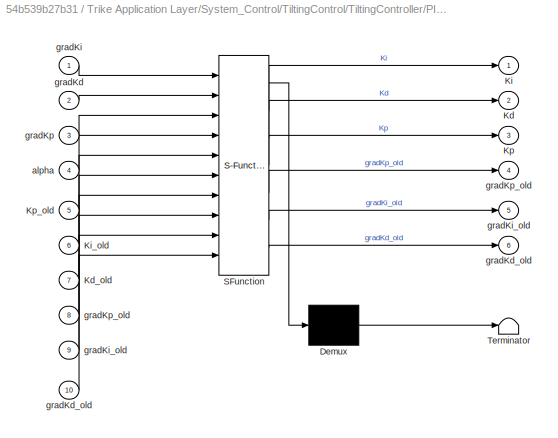
BLOCK [SubSystem] Trike Application Layer/System_Control/TiltingControl/TiltingController/PID_Adaptiv_V2/PID_ctrl/Subsystem/MATLAB Function
  ErrorFcn = Stateflow.Translate.translate
  PermitHierarchicalResolution = ExplicitOnly
  Ports = [10, 6]
  RequestExecContextInheritance = off
  SFBlockType = MATLAB Function
  TreatAsAtomicUnit = on
BLOCK [Demux] Trike Application Layer/System_Control/TiltingControl/TiltingController/PID_Adaptiv_V2/PID_ctrl/Subsystem/MATLAB Function/ Demux 
  DisplayOption = bar
  Outputs = 1
  Ports = [1, 1]
BLOCK [S-Function] Trike Application Layer/System_Control/TiltingControl/TiltingController/PID_Adaptiv_V2/PID_ctrl/Subsystem/MATLAB Function/ SFunction 
  EnableBusSupport = off
  FunctionName = sf_sfun
  PortCounts = [10 7]
  Ports = [10, 7]
  SFcnIsStateOwnerBlock = off
  SFunctionDeploymentMode = off
  Tag = Stateflow S-Function SpeedgoatCANOpen2Buses100us 5
BLOCK [Terminator] Trike Application Layer/System_Control/TiltingControl/TiltingController/PID_Adaptiv_V2/PID_ctrl/Subsystem/MATLAB Function/ Terminator 
BLOCK [Outport] Trike Application Layer/System_Control/TiltingControl/TiltingController/PID_Adaptiv_V2/PID_ctrl/Subsystem/MATLAB Function/Kd
  IconDisplay = Port number
  Port = 2
  VectorParamsAs1DForOutWhenUnconnected = on
BLOCK [Inport] Trike Application Layer/System_Control/TiltingControl/TiltingController/PID_Adaptiv_V2/PID_ctrl/Subsystem/MATLAB Function/Kd_old
  IconDisplay = Port number
  Port = 7
BLOCK [Outport] Trike Application Layer/System_Control/TiltingControl/TiltingController/PID_Adaptiv_V2/PID_ctrl/Subsystem/MATLAB Function/Ki
  IconDisplay = Port number
  VectorParamsAs1DForOutWhenUnconnected = on
BLOCK [Inport] Trike Application Layer/System_Control/TiltingControl/TiltingController/PID_Adaptiv_V2/PID_ctrl/Subsystem/MATLAB Function/Ki_old
  IconDisplay = Port number
  Port = 6
BLOCK [Outport] Trike Application Layer/System_Control/TiltingControl/TiltingController/PID_Adaptiv_V2/PID_ctrl/Subsystem/MATLAB Function/Kp
  IconDisplay = Port number
  Port = 3
  VectorParamsAs1DForOutWhenUnconnected = on
BLOCK [Inport] Trike Application Layer/System_Control/TiltingControl/TiltingController/PID_Adaptiv_V2/PID_ctrl/Subsystem/MATLAB Function/Kp_old
  IconDisplay = Port number
  Port = 5
BLOCK [Inport] Trike Application Layer/System_Control/TiltingControl/TiltingController/PID_Adaptiv_V2/PID_ctrl/Subsystem/MATLAB Function/alpha
  IconDisplay = Port number
  Port = 4
BLOCK [Inport] Trike Application Layer/System_Control/TiltingControl/TiltingController/PID_Adaptiv_V2/PID_ctrl/Subsystem/MATLAB Function/gradKd
  IconDisplay = Port number
  Port = 2
BLOCK [Outport] Trike Application Layer/System_Control/TiltingControl/TiltingController/PID_Adaptiv_V2/PID_ctrl/Subsystem/MATLAB Function/gradKd_old
  IconDisplay = Port number
  Port = 6
  VectorParamsAs1DForOutWhenUnconnected = on
BLOCK [Inport] Trike Application Layer/System_Control/TiltingControl/TiltingController/PID_Adaptiv_V2/PID_ctrl/Subsystem/MATLAB Function/gradKd_old 
  IconDisplay = Port number
  Port = 10
BLOCK [Inport] Trike Application Layer/System_Control/TiltingControl/TiltingController/PID_Adaptiv_V2/PID_ctrl/Subsystem/MATLAB Function/gradKi
  IconDisplay = Port number
BLOCK [Outport] Trike Application Layer/System_Control/TiltingControl/TiltingController/PID_Adaptiv_V2/PID_ctrl/Subsystem/MATLAB Function/gradKi_old
  IconDisplay = Port number
  Port = 5
  VectorParamsAs1DForOutWhenUnconnected = on
BLOCK [Inport] Trike Application Layer/System_Control/TiltingControl/TiltingController/PID_Adaptiv_V2/PID_ctrl/Subsystem/MATLAB Function/gradKi_old 
  IconDisplay = Port number
  Port = 9
BLOCK [Inport] Trike Application Layer/System_Control/TiltingControl/TiltingController/PID_Adaptiv_V2/PID_ctrl/Subsystem/MATLAB Function/gradKp
  IconDisplay = Port number
  Port = 3
BLOCK [Outport] Trike Application Layer/System_Control/TiltingControl/TiltingController/PID_Adaptiv_V2/PID_ctrl/Subsystem/MATLAB Function/gradKp_old
  IconDisplay = Port number
  Port = 4
  VectorParamsAs1DForOutWhenUnconnected = on
BLOCK [Inport] Trike Application Layer/System_Control/TiltingControl/TiltingController/PID_Adaptiv_V2/PID_ctrl/Subsystem/MATLAB Function/gradKp_old 
  IconDisplay = Port number
  Port = 8
BLOCK [UnitDelay] Trike Application Layer/System_Control/TiltingControl/TiltingController/PID_Adaptiv_V2/PID_ctrl/Subsystem/Unit Delay
  InitialCondition = Kp
  InputProcessing = Elements as channels (sample based)
  SampleTime = 1e-3
BLOCK [UnitDelay] Trike Application Layer/System_Control/TiltingControl/TiltingController/PID_Adaptiv_V2/PID_ctrl/Subsystem/Unit Delay1
  InitialCondition = Ki
  InputProcessing = Elements as channels (sample based)
  SampleTime = 1e-3
BLOCK [UnitDelay] Trike Application Layer/System_Control/TiltingControl/TiltingController/PID_Adaptiv_V2/PID_ctrl/Subsystem/Unit Delay2
  InitialCondition = Kd
  InputProcessing = Elements as channels (sample based)
  SampleTime = 1e-3
BLOCK [UnitDelay] Trike Application Layer/System_Control/TiltingControl/TiltingController/PID_Adaptiv_V2/PID_ctrl/Subsystem/Unit Delay4
  InputProcessing = Elements as channels (sample based)
  SampleTime = 1e-3
BLOCK [UnitDelay] Trike Application Layer/System_Control/TiltingControl/TiltingController/PID_Adaptiv_V2/PID_ctrl/Subsystem/Unit Delay5
  InputProcessing = Elements as channels (sample based)
  SampleTime = 1e-3
BLOCK [UnitDelay] Trike Application Layer/System_Control/TiltingControl/TiltingController/PID_Adaptiv_V2/PID_ctrl/Subsystem/Unit Delay6
  InputProcessing = Elements as channels (sample based)
  SampleTime = 1e-3
BLOCK [Inport] Trike Application Layer/System_Control/TiltingControl/TiltingController/PID_Adaptiv_V2/PID_ctrl/Subsystem/gkd
  IconDisplay = Port number
  Port = 2
BLOCK [Inport] Trike Application Layer/System_Control/TiltingControl/TiltingController/PID_Adaptiv_V2/PID_ctrl/Subsystem/gki
  IconDisplay = Port number
BLOCK [Inport] Trike Application Layer/System_Control/TiltingControl/TiltingController/PID_Adaptiv_V2/PID_ctrl/Subsystem/gkp
  IconDisplay = Port number
  Port = 3
BLOCK [Outport] Trike Application Layer/System_Control/TiltingControl/TiltingController/PID_Adaptiv_V2/PID_ctrl/Subsystem/kd
  IconDisplay = Port number
  Port = 2
  VectorParamsAs1DForOutWhenUnconnected = on
BLOCK [Outport] Trike Application Layer/System_Control/TiltingControl/TiltingController/PID_Adaptiv_V2/PID_ctrl/Subsystem/ki
  IconDisplay = Port number
  VectorParamsAs1DForOutWhenUnconnected = on
BLOCK [Outport] Trike Application Layer/System_Control/TiltingControl/TiltingController/PID_Adaptiv_V2/PID_ctrl/Subsystem/kp
  IconDisplay = Port number
  Port = 3
  VectorParamsAs1DForOutWhenUnconnected = on
BLOCK [SubSystem] Trike Application Layer/System_Control/TiltingControl/TiltingController/PID_Adaptiv_V2/PID_ctrl/Subsystem1
  Ports = [2, 1]
  RequestExecContextInheritance = off
BLOCK [DiscreteIntegrator] Trike Application Layer/System_Control/TiltingControl/TiltingController/PID_Adaptiv_V2/PID_ctrl/Subsystem1/Discrete-Time Integrator
  ICPrevOutput = DiscIntNeverNeededParam
  ICPrevScaledInput = DiscIntNeverNeededParam
  InitialConditionSetting = Auto
  IntegratorMethod = Accumulation: Forward Euler
  Ports = [1, 1]
  SampleTime = -1
  gainval = 0.0001
BLOCK [Gain] Trike Application Layer/System_Control/TiltingControl/TiltingController/PID_Adaptiv_V2/PID_ctrl/Subsystem1/Gain
  Gain = -1
  OutDataTypeStr = Inherit: Inherit via internal rule
  ParamDataTypeStr = Inherit: Inherit via internal rule
  SaturateOnIntegerOverflow = off
BLOCK [Outport] Trike Application Layer/System_Control/TiltingControl/TiltingController/PID_Adaptiv_V2/PID_ctrl/Subsystem1/Out1
  IconDisplay = Port number
  VectorParamsAs1DForOutWhenUnconnected = on
BLOCK [Product] Trike Application Layer/System_Control/TiltingControl/TiltingController/PID_Adaptiv_V2/PID_ctrl/Subsystem1/Product
  InputSameDT = off
  OutDataTypeStr = Inherit: Inherit via internal rule
  Ports = [2, 1]
  RndMeth = Floor
  SaturateOnIntegerOverflow = off
BLOCK [Product] Trike Application Layer/System_Control/TiltingControl/TiltingController/PID_Adaptiv_V2/PID_ctrl/Subsystem1/Product1
  InputSameDT = off
  OutDataTypeStr = Inherit: Inherit via internal rule
  Ports = [2, 1]
  RndMeth = Floor
  SaturateOnIntegerOverflow = off
BLOCK [Inport] Trike Application Layer/System_Control/TiltingControl/TiltingController/PID_Adaptiv_V2/PID_ctrl/Subsystem1/err
  IconDisplay = Port number
BLOCK [Inport] Trike Application Layer/System_Control/TiltingControl/TiltingController/PID_Adaptiv_V2/PID_ctrl/Subsystem1/y
  IconDisplay = Port number
  Port = 2
BLOCK [SubSystem] Trike Application Layer/System_Control/TiltingControl/TiltingController/PID_Adaptiv_V2/PID_ctrl/Subsystem2
  Ports = [2, 1]
  RequestExecContextInheritance = off
BLOCK [DiscreteIntegrator] Trike Application Layer/System_Control/TiltingControl/TiltingController/PID_Adaptiv_V2/PID_ctrl/Subsystem2/Discrete-Time Integrator1
  ICPrevOutput = DiscIntNeverNeededParam
  ICPrevScaledInput = DiscIntNeverNeededParam
  InitialConditionSetting = Auto
  IntegratorMethod = Accumulation: Forward Euler
  Ports = [1, 1]
  SampleTime = -1
  gainval = 0.0001
BLOCK [Gain] Trike Application Layer/System_Control/TiltingControl/TiltingController/PID_Adaptiv_V2/PID_ctrl/Subsystem2/FilterOrder
BLOCK [Gain] Trike Application Layer/System_Control/TiltingControl/TiltingController/PID_Adaptiv_V2/PID_ctrl/Subsystem2/Gain
  Gain = -1
  OutDataTypeStr = Inherit: Inherit via internal rule
  ParamDataTypeStr = Inherit: Inherit via internal rule
  SaturateOnIntegerOverflow = off
BLOCK [Outport] Trike Application Layer/System_Control/TiltingControl/TiltingController/PID_Adaptiv_V2/PID_ctrl/Subsystem2/Out1
  IconDisplay = Port number
  VectorParamsAs1DForOutWhenUnconnected = on
BLOCK [Product] Trike Application Layer/System_Control/TiltingControl/TiltingController/PID_Adaptiv_V2/PID_ctrl/Subsystem2/Product
  InputSameDT = off
  OutDataTypeStr = Inherit: Inherit via internal rule
  Ports = [2, 1]
  RndMeth = Floor
  SaturateOnIntegerOverflow = off
BLOCK [Product] Trike Application Layer/System_Control/TiltingControl/TiltingController/PID_Adaptiv_V2/PID_ctrl/Subsystem2/Product1
  InputSameDT = off
  OutDataTypeStr = Inherit: Inherit via internal rule
  Ports = [2, 1]
  RndMeth = Floor
  SaturateOnIntegerOverflow = off
BLOCK [Sum] Trike Application Layer/System_Control/TiltingControl/TiltingController/PID_Adaptiv_V2/PID_ctrl/Subsystem2/Sum3
  IconShape = round
  InputSameDT = off
  Inputs = |+-
  OutDataTypeStr = Inherit: Inherit via internal rule
  Ports = [2, 1]
  SaturateOnIntegerOverflow = off
BLOCK [Inport] Trike Application Layer/System_Control/TiltingControl/TiltingController/PID_Adaptiv_V2/PID_ctrl/Subsystem2/err
  IconDisplay = Port number
BLOCK [Inport] Trike Application Layer/System_Control/TiltingControl/TiltingController/PID_Adaptiv_V2/PID_ctrl/Subsystem2/y
  IconDisplay = Port number
  Port = 2
BLOCK [SubSystem] Trike Application Layer/System_Control/TiltingControl/TiltingController/PID_Adaptiv_V2/PID_ctrl/Subsystem3
  Ports = [2, 1]
  RequestExecContextInheritance = off
BLOCK [Gain] Trike Application Layer/System_Control/TiltingControl/TiltingController/PID_Adaptiv_V2/PID_ctrl/Subsystem3/Gain
  Gain = -1
  OutDataTypeStr = Inherit: Inherit via internal rule
  ParamDataTypeStr = Inherit: Inherit via internal rule
  SaturateOnIntegerOverflow = off
BLOCK [Outport] Trike Application Layer/System_Control/TiltingControl/TiltingController/PID_Adaptiv_V2/PID_ctrl/Subsystem3/Out1
  IconDisplay = Port number
  VectorParamsAs1DForOutWhenUnconnected = on
BLOCK [Product] Trike Application Layer/System_Control/TiltingControl/TiltingController/PID_Adaptiv_V2/PID_ctrl/Subsystem3/Product
  InputSameDT = off
  OutDataTypeStr = Inherit: Inherit via internal rule
  Ports = [2, 1]
  RndMeth = Floor
  SaturateOnIntegerOverflow = off
BLOCK [Product] Trike Application Layer/System_Control/TiltingControl/TiltingController/PID_Adaptiv_V2/PID_ctrl/Subsystem3/Product1
  InputSameDT = off
  OutDataTypeStr = Inherit: Inherit via internal rule
  Ports = [2, 1]
  RndMeth = Floor
  SaturateOnIntegerOverflow = off
BLOCK [Inport] Trike Application Layer/System_Control/TiltingControl/TiltingController/PID_Adaptiv_V2/PID_ctrl/Subsystem3/err
  IconDisplay = Port number
BLOCK [Inport] Trike Application Layer/System_Control/TiltingControl/TiltingController/PID_Adaptiv_V2/PID_ctrl/Subsystem3/y
  IconDisplay = Port number
  Port = 2
BLOCK [SubSystem] Trike Application Layer/System_Control/TiltingControl/TiltingController/PID_Adaptiv_V2/PID_ctrl/Subsystem4
  Ports = [2, 1]
  RequestExecContextInheritance = off
BLOCK [Constant] Trike Application Layer/System_Control/TiltingControl/TiltingController/PID_Adaptiv_V2/PID_ctrl/Subsystem4/Constant
  Value = [0.811661315567532	0.523339604043497\n0.781547366351639	0.164018692936968\n0.146098503423341	0.879428705628321\n0.266102211582170	0.304501614309624\n0.397284814093776	0.765244619952808\n0.516628753495178	0.186405621841320\n0.0862525926601981	0.717804970916536\n0.103414091455425	0.420647287190983\n0.506698658207659	0.609237422549281\n0.269175608561842	0.124471251020265\n0.0151134208657587	0.418749009267761\n0...<+326ch>
BLOCK [Constant] Trike Application Layer/System_Control/TiltingControl/TiltingController/PID_Adaptiv_V2/PID_ctrl/Subsystem4/Constant2
  Value = [0.610759087177597	0.366179666335005	-0.0584030572951834	0.209075859992505	0.584389586358981	0.349871470561781	-0.204405272265807	-0.116182445469499	0.0642557952818070	-0.132902026263845	0.805831183296775	-0.399691016290584	0.259161704540015	0.179474388613012	-0.0314937390524749	0.704808744971737	0.263155510958995	0.213381634610559	0.587918070221544	0.290284501669435]
BLOCK [Constant] Trike Application Layer/System_Control/TiltingControl/TiltingController/PID_Adaptiv_V2/PID_ctrl/Subsystem4/Constant3
  Value = [0.818045624381218\n0.102878023447675\n0.737296135799067\n0.382188425410472\n0.977505309905872\n0.149360203196300\n0.641439600546557\n0.443497484934195\n0.680421925309724\n0.859879825832941\n-0.318689482669828\n0.255207188653107\n0.313389787503390\n0.721063295306122\n0.439116073494923\n-0.219038629148731\n0.491813043211072\n-0.0750940652226708\n-0.120979967962816\n0.00273892356427859]
BLOCK [Delay] Trike Application Layer/System_Control/TiltingControl/TiltingController/PID_Adaptiv_V2/PID_ctrl/Subsystem4/Delay
  DelayLength = 1
  InputPortMap = u0
  Ports = [1, 1]
  SampleTime = 1e-3
BLOCK [Gain] Trike Application Layer/System_Control/TiltingControl/TiltingController/PID_Adaptiv_V2/PID_ctrl/Subsystem4/Gain
  Gain = 1e-5
  OutDataTypeStr = Inherit: Inherit via internal rule
  ParamDataTypeStr = Inherit: Inherit via internal rule
  SaturateOnIntegerOverflow = off
BLOCK [Gain] Trike Application Layer/System_Control/TiltingControl/TiltingController/PID_Adaptiv_V2/PID_ctrl/Subsystem4/Gain1
  Gain = 1/20
  OutDataTypeStr = Inherit: Inherit via internal rule
  ParamDataTypeStr = Inherit: Inherit via internal rule
  SaturateOnIntegerOverflow = off
BLOCK [SubSystem] Trike Application Layer/System_Control/TiltingControl/TiltingController/PID_Adaptiv_V2/PID_ctrl/Subsystem4/MATLAB Function1
  ErrorFcn = Stateflow.Translate.translate
  PermitHierarchicalResolution = ExplicitOnly
  Ports = [1, 1]
  RequestExecContextInheritance = off
  SFBlockType = MATLAB Function
  TreatAsAtomicUnit = on
BLOCK [Demux] Trike Application Layer/System_Control/TiltingControl/TiltingController/PID_Adaptiv_V2/PID_ctrl/Subsystem4/MATLAB Function1/ Demux 
  DisplayOption = bar
  Outputs = 1
  Ports = [1, 1]
BLOCK [S-Function] Trike Application Layer/System_Control/TiltingControl/TiltingController/PID_Adaptiv_V2/PID_ctrl/Subsystem4/MATLAB Function1/ SFunction 
  EnableBusSupport = off
  FunctionName = sf_sfun
  PortCounts = [1 2]
  Ports = [1, 2]
  SFcnIsStateOwnerBlock = off
  SFunctionDeploymentMode = off
  Tag = Stateflow S-Function SpeedgoatCANOpen2Buses100us 7
BLOCK [Terminator] Trike Application Layer/System_Control/TiltingControl/TiltingController/PID_Adaptiv_V2/PID_ctrl/Subsystem4/MATLAB Function1/ Terminator 
BLOCK [Inport] Trike Application Layer/System_Control/TiltingControl/TiltingController/PID_Adaptiv_V2/PID_ctrl/Subsystem4/MATLAB Function1/u
  IconDisplay = Port number
BLOCK [Outport] Trike Application Layer/System_Control/TiltingControl/TiltingController/PID_Adaptiv_V2/PID_ctrl/Subsystem4/MATLAB Function1/y
  IconDisplay = Port number
  VectorParamsAs1DForOutWhenUnconnected = on
BLOCK [UnitDelay] Trike Application Layer/System_Control/TiltingControl/TiltingController/PID_Adaptiv_V2/PID_ctrl/Subsystem4/Unit Delay3
  InputProcessing = Elements as channels (sample based)
  SampleTime = 1e-3
BLOCK [Inport] Trike Application Layer/System_Control/TiltingControl/TiltingController/PID_Adaptiv_V2/PID_ctrl/Subsystem4/ctrl
  IconDisplay = Port number
BLOCK [SubSystem] Trike Application Layer/System_Control/TiltingControl/TiltingController/PID_Adaptiv_V2/PID_ctrl/Subsystem4/derivativeNN
  ErrorFcn = Stateflow.Translate.translate
  PermitHierarchicalResolution = ExplicitOnly
  Ports = [5, 1]
  RequestExecContextInheritance = off
  SFBlockType = MATLAB Function
  TreatAsAtomicUnit = on
BLOCK [Demux] Trike Application Layer/System_Control/TiltingControl/TiltingController/PID_Adaptiv_V2/PID_ctrl/Subsystem4/derivativeNN/ Demux 
  DisplayOption = bar
  Outputs = 1
  Ports = [1, 1]
BLOCK [S-Function] Trike Application Layer/System_Control/TiltingControl/TiltingController/PID_Adaptiv_V2/PID_ctrl/Subsystem4/derivativeNN/ SFunction 
  EnableBusSupport = off
  FunctionName = sf_sfun
  PortCounts = [5 2]
  Ports = [5, 2]
  SFcnIsStateOwnerBlock = off
  SFunctionDeploymentMode = off
  Tag = Stateflow S-Function SpeedgoatCANOpen2Buses100us 8
BLOCK [Terminator] Trike Application Layer/System_Control/TiltingControl/TiltingController/PID_Adaptiv_V2/PID_ctrl/Subsystem4/derivativeNN/ Terminator 
BLOCK [Inport] Trike Application Layer/System_Control/TiltingControl/TiltingController/PID_Adaptiv_V2/PID_ctrl/Subsystem4/derivativeNN/Win
  IconDisplay = Port number
  Port = 3
BLOCK [Inport] Trike Application Layer/System_Control/TiltingControl/TiltingController/PID_Adaptiv_V2/PID_ctrl/Subsystem4/derivativeNN/Wout
  IconDisplay = Port number
  Port = 4
BLOCK [Inport] Trike Application Layer/System_Control/TiltingControl/TiltingController/PID_Adaptiv_V2/PID_ctrl/Subsystem4/derivativeNN/X1
  IconDisplay = Port number
BLOCK [Inport] Trike Application Layer/System_Control/TiltingControl/TiltingController/PID_Adaptiv_V2/PID_ctrl/Subsystem4/derivativeNN/X2
  IconDisplay = Port number
  Port = 2
BLOCK [Inport] Trike Application Layer/System_Control/TiltingControl/TiltingController/PID_Adaptiv_V2/PID_ctrl/Subsystem4/derivativeNN/bin
  IconDisplay = Port number
  Port = 5
BLOCK [Outport] Trike Application Layer/System_Control/TiltingControl/TiltingController/PID_Adaptiv_V2/PID_ctrl/Subsystem4/derivativeNN/dydu
  IconDisplay = Port number
  VectorParamsAs1DForOutWhenUnconnected = on
BLOCK [Inport] Trike Application Layer/System_Control/TiltingControl/TiltingController/PID_Adaptiv_V2/PID_ctrl/Subsystem4/fb
  IconDisplay = Port number
  Port = 2
BLOCK [Outport] Trike Application Layer/System_Control/TiltingControl/TiltingController/PID_Adaptiv_V2/PID_ctrl/Subsystem4/y
  IconDisplay = Port number
  VectorParamsAs1DForOutWhenUnconnected = on
BLOCK [Inport] Trike Application Layer/System_Control/TiltingControl/TiltingController/PID_Adaptiv_V2/PosFb [m]
  IconDisplay = Port number
  Port = 2
BLOCK [Inport] Trike Application Layer/System_Control/TiltingControl/TiltingController/PID_Adaptiv_V2/PosRef [m]
  IconDisplay = Port number
BLOCK [SubSystem] Trike Application Layer/System_Control/TiltingControl/TiltingController/PID_Clasic_V1
  Ports = [3, 2]
  RequestExecContextInheritance = off
  VariantControl = V1
BLOCK [Outport] Trike Application Layer/System_Control/TiltingControl/TiltingController/PID_Clasic_V1/ LTilt CurrentRef [A]
  IconDisplay = Port number
BLOCK [Outport] Trike Application Layer/System_Control/TiltingControl/TiltingController/PID_Clasic_V1/ RTilt CurrenRef [A]
  IconDisplay = Port number
  Port = 2
BLOCK [Inport] Trike Application Layer/System_Control/TiltingControl/TiltingController/PID_Clasic_V1/En
  IconDisplay = Port number
  Port = 3
BLOCK [SubSystem] Trike Application Layer/System_Control/TiltingControl/TiltingController/PID_Clasic_V1/PID_ctrl
  Ports = [3, 2]
  RequestExecContextInheritance = off
BLOCK [Gain] Trike Application Layer/System_Control/TiltingControl/TiltingController/PID_Clasic_V1/PID_ctrl/AntiWindup
  Gain = Ki/Kp
BLOCK [Gain] Trike Application Layer/System_Control/TiltingControl/TiltingController/PID_Clasic_V1/PID_ctrl/Derivative Gain
  Gain = Kd
BLOCK [DiscreteIntegrator] Trike Application Layer/System_Control/TiltingControl/TiltingController/PID_Clasic_V1/PID_ctrl/Discrete-Time Integrator
  ICPrevOutput = DiscIntNeverNeededParam
  ICPrevScaledInput = DiscIntNeverNeededParam
  InitialConditionSetting = Auto
  IntegratorMethod = Accumulation: Forward Euler
  Ports = [1, 1]
  SampleTime = -1
  gainval = Ts/5
BLOCK [DiscreteIntegrator] Trike Application Layer/System_Control/TiltingControl/TiltingController/PID_Clasic_V1/PID_ctrl/Discrete-Time Integrator1
  ICPrevOutput = DiscIntNeverNeededParam
  ICPrevScaledInput = DiscIntNeverNeededParam
  InitialConditionSetting = Auto
  IntegratorMethod = Accumulation: Forward Euler
  Ports = [1, 1]
  SampleTime = -1
  gainval = Ts/5
BLOCK [Inport] Trike Application Layer/System_Control/TiltingControl/TiltingController/PID_Clasic_V1/PID_ctrl/En
  IconDisplay = Port number
  Port = 3
BLOCK [Gain] Trike Application Layer/System_Control/TiltingControl/TiltingController/PID_Clasic_V1/PID_ctrl/FF_En
  Gain = FF_En
BLOCK [DiscreteTransferFcn] Trike Application Layer/System_Control/TiltingControl/TiltingController/PID_Clasic_V1/PID_ctrl/FeedForward
  Denominator = [1 -0.8187]
  InputPortMap = u0
  Numerator = -[7.12 -7.12]*5000
  Ports = [1, 1]
  SampleTime = Ts/5
BLOCK [Gain] Trike Application Layer/System_Control/TiltingControl/TiltingController/PID_Clasic_V1/PID_ctrl/FilterOrder
  Gain = N
BLOCK [Gain] Trike Application Layer/System_Control/TiltingControl/TiltingController/PID_Clasic_V1/PID_ctrl/Gain
  Gain = -1
  OutDataTypeStr = Inherit: Inherit via internal rule
  ParamDataTypeStr = Inherit: Inherit via internal rule
  SaturateOnIntegerOverflow = off
BLOCK [Gain] Trike Application Layer/System_Control/TiltingControl/TiltingController/PID_Clasic_V1/PID_ctrl/Integral Gain
  Gain = Ki
BLOCK [Outport] Trike Application Layer/System_Control/TiltingControl/TiltingController/PID_Clasic_V1/PID_ctrl/LTilt CurrentRef [A]
  IconDisplay = Port number
  VectorParamsAs1DForOutWhenUnconnected = on
BLOCK [Inport] Trike Application Layer/System_Control/TiltingControl/TiltingController/PID_Clasic_V1/PID_ctrl/PosFb
  IconDisplay = Port number
  Port = 2
BLOCK [Inport] Trike Application Layer/System_Control/TiltingControl/TiltingController/PID_Clasic_V1/PID_ctrl/PosRef
  IconDisplay = Port number
BLOCK [Product] Trike Application Layer/System_Control/TiltingControl/TiltingController/PID_Clasic_V1/PID_ctrl/Product
  InputSameDT = off
  OutDataTypeStr = Inherit: Inherit via internal rule
  Ports = [2, 1]
  RndMeth = Floor
  SaturateOnIntegerOverflow = off
BLOCK [Product] Trike Application Layer/System_Control/TiltingControl/TiltingController/PID_Clasic_V1/PID_ctrl/Product1
  InputSameDT = off
  OutDataTypeStr = Inherit: Inherit via internal rule
  Ports = [2, 1]
  RndMeth = Floor
  SaturateOnIntegerOverflow = off
BLOCK [Product] Trike Application Layer/System_Control/TiltingControl/TiltingController/PID_Clasic_V1/PID_ctrl/Product2
  InputSameDT = off
  OutDataTypeStr = Inherit: Inherit via internal rule
  Ports = [2, 1]
  RndMeth = Floor
  SaturateOnIntegerOverflow = off
BLOCK [Gain] Trike Application Layer/System_Control/TiltingControl/TiltingController/PID_Clasic_V1/PID_ctrl/Proportional Gain
  Gain = Kp
BLOCK [Outport] Trike Application Layer/System_Control/TiltingControl/TiltingController/PID_Clasic_V1/PID_ctrl/RTilt CurrentRef [A]
  IconDisplay = Port number
  Port = 2
  VectorParamsAs1DForOutWhenUnconnected = on
BLOCK [Saturate] Trike Application Layer/System_Control/TiltingControl/TiltingController/PID_Clasic_V1/PID_ctrl/Saturation
  InputPortMap = u0
  LowerLimit = -Req_lim
  Ports = [1, 1]
  UpperLimit = Req_lim
BLOCK [Sum] Trike Application Layer/System_Control/TiltingControl/TiltingController/PID_Clasic_V1/PID_ctrl/Sum
  IconShape = round
  InputSameDT = off
  Inputs = +|-
  OutDataTypeStr = Inherit: Inherit via internal rule
  Ports = [2, 1]
  SaturateOnIntegerOverflow = off
BLOCK [Sum] Trike Application Layer/System_Control/TiltingControl/TiltingController/PID_Clasic_V1/PID_ctrl/Sum1
  Inputs = +-
  Ports = [2, 1]
BLOCK [Sum] Trike Application Layer/System_Control/TiltingControl/TiltingController/PID_Clasic_V1/PID_ctrl/Sum2
  IconShape = round
  InputSameDT = off
  Inputs = |+-
  OutDataTypeStr = Inherit: Inherit via internal rule
  Ports = [2, 1]
  SaturateOnIntegerOverflow = off
BLOCK [Sum] Trike Application Layer/System_Control/TiltingControl/TiltingController/PID_Clasic_V1/PID_ctrl/Sum3
  IconShape = round
  InputSameDT = off
  Inputs = |+-
  OutDataTypeStr = Inherit: Inherit via internal rule
  Ports = [2, 1]
  SaturateOnIntegerOverflow = off
BLOCK [Sum] Trike Application Layer/System_Control/TiltingControl/TiltingController/PID_Clasic_V1/PID_ctrl/Sum4
  Inputs = ++++
  Ports = [4, 1]
BLOCK [Inport] Trike Application Layer/System_Control/TiltingControl/TiltingController/PID_Clasic_V1/PosFb [m]
  IconDisplay = Port number
  Port = 2
BLOCK [Inport] Trike Application Layer/System_Control/TiltingControl/TiltingController/PID_Clasic_V1/PosRef [m]
  IconDisplay = Port number
BLOCK [SubSystem] Trike Application Layer/System_Control/TiltingControl/TiltingController/PID_Incremental_V1
  Ports = [3, 2]
  RequestExecContextInheritance = off
  VariantControl = V2
BLOCK [Outport] Trike Application Layer/System_Control/TiltingControl/TiltingController/PID_Incremental_V1/ LTilt CurrentRef [A]
  IconDisplay = Port number
BLOCK [Outport] Trike Application Layer/System_Control/TiltingControl/TiltingController/PID_Incremental_V1/ RTilt CurrenRef [A]
  IconDisplay = Port number
  Port = 2
BLOCK [Inport] Trike Application Layer/System_Control/TiltingControl/TiltingController/PID_Incremental_V1/En
  IconDisplay = Port number
  Port = 3
BLOCK [SubSystem] Trike Application Layer/System_Control/TiltingControl/TiltingController/PID_Incremental_V1/PI_incremental Tilting Controller
  ErrorFcn = Stateflow.Translate.translate
  PermitHierarchicalResolution = ExplicitOnly
  Ports = [3, 5]
  RequestExecContextInheritance = off
  SFBlockType = MATLAB Function
  SystemSampleTime = 5e-3
  TreatAsAtomicUnit = on
BLOCK [Demux] Trike Application Layer/System_Control/TiltingControl/TiltingController/PID_Incremental_V1/PI_incremental Tilting Controller/ Demux 
  Outputs = 1
  Ports = [1, 1]
BLOCK [S-Function] Trike Application Layer/System_Control/TiltingControl/TiltingController/PID_Incremental_V1/PI_incremental Tilting Controller/ SFunction 
  EnableBusSupport = on
  FunctionName = sf_sfun
  PortCounts = [3 6]
  Ports = [3, 6]
  SFcnIsStateOwnerBlock = off
  SFunctionDeploymentMode = off
  Tag = Stateflow S-Function SpeedgoatCANOpen2Buses100us 10
BLOCK [Terminator] Trike Application Layer/System_Control/TiltingControl/TiltingController/PID_Incremental_V1/PI_incremental Tilting Controller/ Terminator 
BLOCK [Inport] Trike Application Layer/System_Control/TiltingControl/TiltingController/PID_Incremental_V1/PI_incremental Tilting Controller/En
  IconDisplay = Port number
  Port = 3
BLOCK [Outport] Trike Application Layer/System_Control/TiltingControl/TiltingController/PID_Incremental_V1/PI_incremental Tilting Controller/LTiltCurrRef
  IconDisplay = Port number
BLOCK [Inport] Trike Application Layer/System_Control/TiltingControl/TiltingController/PID_Incremental_V1/PI_incremental Tilting Controller/Pos
  IconDisplay = Port number
  Port = 2
BLOCK [Inport] Trike Application Layer/System_Control/TiltingControl/TiltingController/PID_Incremental_V1/PI_incremental Tilting Controller/PosRef
  IconDisplay = Port number
BLOCK [Outport] Trike Application Layer/System_Control/TiltingControl/TiltingController/PID_Incremental_V1/PI_incremental Tilting Controller/RTiltCurrRef
  IconDisplay = Port number
  Port = 2
BLOCK [Outport] Trike Application Layer/System_Control/TiltingControl/TiltingController/PID_Incremental_V1/PI_incremental Tilting Controller/ud
  IconDisplay = Port number
  Port = 5
BLOCK [Outport] Trike Application Layer/System_Control/TiltingControl/TiltingController/PID_Incremental_V1/PI_incremental Tilting Controller/ui
  IconDisplay = Port number
  Port = 4
BLOCK [Outport] Trike Application Layer/System_Control/TiltingControl/TiltingController/PID_Incremental_V1/PI_incremental Tilting Controller/up
  IconDisplay = Port number
  Port = 3
BLOCK [Inport] Trike Application Layer/System_Control/TiltingControl/TiltingController/PID_Incremental_V1/PosFb [m]
  IconDisplay = Port number
  Port = 2
BLOCK [Inport] Trike Application Layer/System_Control/TiltingControl/TiltingController/PID_Incremental_V1/PosRef [m]
  IconDisplay = Port number
BLOCK [Terminator] Trike Application Layer/System_Control/TiltingControl/TiltingController/PID_Incremental_V1/Terminator1
BLOCK [Terminator] Trike Application Layer/System_Control/TiltingControl/TiltingController/PID_Incremental_V1/Terminator2
BLOCK [Terminator] Trike Application Layer/System_Control/TiltingControl/TiltingController/PID_Incremental_V1/Terminator7
BLOCK [SubSystem] Trike Application Layer/System_Control/TiltingControl/TiltingController/PID_Incremental_V2
  Ports = [3, 2]
  RequestExecContextInheritance = off
  VariantControl = V3
BLOCK [Outport] Trike Application Layer/System_Control/TiltingControl/TiltingController/PID_Incremental_V2/ LTilt CurrentRef [A]
  IconDisplay = Port number
BLOCK [Outport] Trike Application Layer/System_Control/TiltingControl/TiltingController/PID_Incremental_V2/ RTilt CurrenRef [A]
  IconDisplay = Port number
  Port = 2
BLOCK [Inport] Trike Application Layer/System_Control/TiltingControl/TiltingController/PID_Incremental_V2/En
  IconDisplay = Port number
  Port = 3
BLOCK [SubSystem] Trike Application Layer/System_Control/TiltingControl/TiltingController/PID_Incremental_V2/MATLAB Function
  ErrorFcn = Stateflow.Translate.translate
  PermitHierarchicalResolution = ExplicitOnly
  Ports = [3, 4]
  RequestExecContextInheritance = off
  SFBlockType = MATLAB Function
  SystemSampleTime = 0.005
  TreatAsAtomicUnit = on
BLOCK [Demux] Trike Application Layer/System_Control/TiltingControl/TiltingController/PID_Incremental_V2/MATLAB Function/ Demux 
  Outputs = 1
  Ports = [1, 1]
BLOCK [S-Function] Trike Application Layer/System_Control/TiltingControl/TiltingController/PID_Incremental_V2/MATLAB Function/ SFunction 
  EnableBusSupport = on
  FunctionName = sf_sfun
  PortCounts = [3 5]
  Ports = [3, 5]
  SFcnIsStateOwnerBlock = off
  SFunctionDeploymentMode = off
  Tag = Stateflow S-Function SpeedgoatCANOpen2Buses100us 6
BLOCK [Terminator] Trike Application Layer/System_Control/TiltingControl/TiltingController/PID_Incremental_V2/MATLAB Function/ Terminator 
BLOCK [Inport] Trike Application Layer/System_Control/TiltingControl/TiltingController/PID_Incremental_V2/MATLAB Function/En
  IconDisplay = Port number
  Port = 3
BLOCK [Outport] Trike Application Layer/System_Control/TiltingControl/TiltingController/PID_Incremental_V2/MATLAB Function/LTiltCurrRef
  IconDisplay = Port number
BLOCK [Inport] Trike Application Layer/System_Control/TiltingControl/TiltingController/PID_Incremental_V2/MATLAB Function/Pos
  IconDisplay = Port number
  Port = 2
BLOCK [Inport] Trike Application Layer/System_Control/TiltingControl/TiltingController/PID_Incremental_V2/MATLAB Function/PosRef
  IconDisplay = Port number
BLOCK [Outport] Trike Application Layer/System_Control/TiltingControl/TiltingController/PID_Incremental_V2/MATLAB Function/RTiltCurrRef
  IconDisplay = Port number
  Port = 2
BLOCK [Outport] Trike Application Layer/System_Control/TiltingControl/TiltingController/PID_Incremental_V2/MATLAB Function/c1
  IconDisplay = Port number
  Port = 3
BLOCK [Outport] Trike Application Layer/System_Control/TiltingControl/TiltingController/PID_Incremental_V2/MATLAB Function/c2
  IconDisplay = Port number
  Port = 4
BLOCK [Inport] Trike Application Layer/System_Control/TiltingControl/TiltingController/PID_Incremental_V2/PosFb [m]
  IconDisplay = Port number
  Port = 2
BLOCK [Inport] Trike Application Layer/System_Control/TiltingControl/TiltingController/PID_Incremental_V2/PosRef [m]
  IconDisplay = Port number
BLOCK [Terminator] Trike Application Layer/System_Control/TiltingControl/TiltingController/PID_Incremental_V2/Terminator1
BLOCK [Terminator] Trike Application Layer/System_Control/TiltingControl/TiltingController/PID_Incremental_V2/Terminator7
BLOCK [Inport] Trike Application Layer/System_Control/TiltingControl/TiltingController/PosFb [m]
  IconDisplay = Port number
  Port = 2
BLOCK [Inport] Trike Application Layer/System_Control/TiltingControl/TiltingController/PosRef [m] 
  IconDisplay = Port number
BLOCK [Inport] Trike Application Layer/System_Control/TiltingControl/VehSpeed_SI [m//s]
  IconDisplay = Port number
  Port = 3
BLOCK [ZeroOrderHold] Trike Application Layer/System_Control/TiltingControl/Zero-Order Hold
  SampleTime = 0.001
BLOCK [ZeroOrderHold] Trike Application Layer/System_Control/TiltingControl/Zero-Order Hold1
  SampleTime = 0.001
BLOCK [Gain] Trike Application Layer/System_Control/TiltingControl/degree2m
  Gain = 0.00246
  OutDataTypeStr = Inherit: Inherit via internal rule
  ParamDataTypeStr = Inherit: Inherit via internal rule
  SaturateOnIntegerOverflow = off
BLOCK [Gain] Trike Application Layer/System_Control/TiltingControl/n
  Gain = -1
  OutDataTypeStr = Inherit: Inherit via internal rule
  ParamDataTypeStr = Inherit: Inherit via internal rule
  SaturateOnIntegerOverflow = off
BLOCK [SubSystem] Trike Application Layer/System_Control/TractionControl
  Ports = [2, 2]
  RequestExecContextInheritance = off
BLOCK [Abs] Trike Application Layer/System_Control/TractionControl/Abs
  SaturateOnIntegerOverflow = off
BLOCK [Gain] Trike Application Layer/System_Control/TractionControl/Gain1
  Gain = 1/10
  OutDataTypeStr = Inherit: Inherit via internal rule
  ParamDataTypeStr = Inherit: Inherit via internal rule
  SaturateOnIntegerOverflow = off
BLOCK [Gain] Trike Application Layer/System_Control/TractionControl/Gain2
  Gain = pi/30
  OutDataTypeStr = Inherit: Inherit via internal rule
  ParamDataTypeStr = Inherit: Inherit via internal rule
  SaturateOnIntegerOverflow = off
BLOCK [Inport] Trike Application Layer/System_Control/TractionControl/SpeedRear_Fb
  IconDisplay = Port number
  Port = 2
BLOCK [Terminator] Trike Application Layer/System_Control/TractionControl/Terminator1
BLOCK [Inport] Trike Application Layer/System_Control/TractionControl/Traction Torque [%]
  IconDisplay = Port number
BLOCK [Outport] Trike Application Layer/System_Control/TractionControl/TractionRef [%]
  IconDisplay = Port number
  Port = 2
BLOCK [Outport] Trike Application Layer/System_Control/TractionControl/VehSpeed_SI [m//s]
  IconDisplay = Port number
BLOCK [Gain] Trike Application Layer/System_Control/TractionControl/WheelRadius
  Gain = 0.25
  OutDataTypeStr = Inherit: Inherit via internal rule
  ParamDataTypeStr = Inherit: Inherit via internal rule
  SaturateOnIntegerOverflow = off
BLOCK [Gain] Trike Application Layer/System_Control/TractionControl/m//s2Km//h
  Gain = 3.6
  OutDataTypeStr = Inherit: Inherit via internal rule
  ParamDataTypeStr = Inherit: Inherit via internal rule
  SaturateOnIntegerOverflow = off
BLOCK [Outport] Trike Application Layer/System_Control/TractionRef [%]
  IconDisplay = Port number
  Port = 6
BLOCK [SubSystem] Trike Application Layer/System_Init
  Ports = [6, 6]
  RequestExecContextInheritance = off
BLOCK [Outport] Trike Application Layer/System_Init/APT_ControlWord
  IconDisplay = Port number
  Port = 5
BLOCK [Outport] Trike Application Layer/System_Init/Brakes Motor Init
  IconDisplay = Port number
  OutDataTypeStr = Bus: Dunk_Init_TPDOs
  Port = 4
BLOCK [SubSystem] Trike Application Layer/System_Init/Brakes_DunkMotor_Init
  Ports = [2, 2]
  RequestExecContextInheritance = off
BLOCK [Outport] Trike Application Layer/System_Init/Brakes_DunkMotor_Init/Brake InitStatus
  IconDisplay = Port number
  Port = 2
BLOCK [Outport] Trike Application Layer/System_Init/Brakes_DunkMotor_Init/Brakes Motor
  IconDisplay = Port number
  OutDataTypeStr = Bus: Dunk_Init_TPDOs
BLOCK [BusCreator] Trike Application Layer/System_Init/Brakes_DunkMotor_Init/Bus Creator
  DisplayOption = bar
  InheritFromInputs = on
  Inputs = 4
  OutDataTypeStr = Bus: Dunk_Init_TPDOs
  Ports = [4, 1]
BLOCK [BusSelector] Trike Application Layer/System_Init/Brakes_DunkMotor_Init/Bus Selector1
  OutputAsBus = off
  OutputSignals = DunkD_ActualVelocity
  Ports = [1, 1]
BLOCK [DataTypeConversion] Trike Application Layer/System_Init/Brakes_DunkMotor_Init/Cast To Single
  OutDataTypeStr = uint8
  RndMeth = Floor
  SaturateOnIntegerOverflow = off
BLOCK [DataTypeConversion] Trike Application Layer/System_Init/Brakes_DunkMotor_Init/Cast To Single1
  OutDataTypeStr = uint8
  RndMeth = Floor
  SaturateOnIntegerOverflow = off
BLOCK [DataTypeConversion] Trike Application Layer/System_Init/Brakes_DunkMotor_Init/Cast To Single2
  OutDataTypeStr = uint8
  RndMeth = Floor
  SaturateOnIntegerOverflow = off
BLOCK [DataTypeConversion] Trike Application Layer/System_Init/Brakes_DunkMotor_Init/Cast To Single3
  OutDataTypeStr = uint8
  RndMeth = Floor
  SaturateOnIntegerOverflow = off
BLOCK [Constant] Trike Application Layer/System_Init/Brakes_DunkMotor_Init/Constant
  OutDataTypeStr = single
BLOCK [SubSystem] Trike Application Layer/System_Init/Brakes_DunkMotor_Init/DunkD_Brake_Init_CurrentMode
  ErrorFcn = Stateflow.Translate.translate
  PermitHierarchicalResolution = ExplicitOnly
  Ports = [2, 5]
  RequestExecContextInheritance = off
  SFBlockType = Chart
  TreatAsAtomicUnit = on
BLOCK [Demux] Trike Application Layer/System_Init/Brakes_DunkMotor_Init/DunkD_Brake_Init_CurrentMode/ Demux 
  Outputs = 1
  Ports = [1, 1]
BLOCK [S-Function] Trike Application Layer/System_Init/Brakes_DunkMotor_Init/DunkD_Brake_Init_CurrentMode/ SFunction 
  EnableBusSupport = on
  FunctionName = sf_sfun
  PortCounts = [2 6]
  Ports = [2, 6]
  SFcnIsStateOwnerBlock = off
  SFunctionDeploymentMode = off
  Tag = Stateflow S-Function SpeedgoatCANOpen2Buses100us 3
BLOCK [Terminator] Trike Application Layer/System_Init/Brakes_DunkMotor_Init/DunkD_Brake_Init_CurrentMode/ Terminator 
BLOCK [Outport] Trike Application Layer/System_Init/Brakes_DunkMotor_Init/DunkD_Brake_Init_CurrentMode/BrakeCtrl
  IconDisplay = Port number
  Port = 3
BLOCK [Inport] Trike Application Layer/System_Init/Brakes_DunkMotor_Init/DunkD_Brake_Init_CurrentMode/ButtonStatus
  IconDisplay = Port number
BLOCK [Outport] Trike Application Layer/System_Init/Brakes_DunkMotor_Init/DunkD_Brake_Init_CurrentMode/ClearError
  IconDisplay = Port number
BLOCK [Outport] Trike Application Layer/System_Init/Brakes_DunkMotor_Init/DunkD_Brake_Init_CurrentMode/DeviceMode
  IconDisplay = Port number
  Port = 2
BLOCK [Outport] Trike Application Layer/System_Init/Brakes_DunkMotor_Init/DunkD_Brake_Init_CurrentMode/InitStatus
  IconDisplay = Port number
  Port = 5
BLOCK [Outport] Trike Application Layer/System_Init/Brakes_DunkMotor_Init/DunkD_Brake_Init_CurrentMode/PowerEnable
  IconDisplay = Port number
  Port = 4
BLOCK [Inport] Trike Application Layer/System_Init/Brakes_DunkMotor_Init/DunkD_Brake_Init_CurrentMode/ReadError
  IconDisplay = Port number
  Port = 2
BLOCK [Inport] Trike Application Layer/System_Init/Brakes_DunkMotor_Init/DunkD_RPDOs
  IconDisplay = Port number
  OutDataTypeStr = Bus: Dunk_RPDOs
  Port = 2
BLOCK [Inport] Trike Application Layer/System_Init/Brakes_DunkMotor_Init/Joystick_ButtonStatus
  IconDisplay = Port number
BLOCK [BusSelector] Trike Application Layer/System_Init/Bus Selector1
  OutputAsBus = off
  OutputSignals = Joystick_LongCmd
  Ports = [1, 1]
BLOCK [BusSelector] Trike Application Layer/System_Init/Bus Selector10
  OutputAsBus = off
  OutputSignals = Joystick_ButtonsStatus
  Ports = [1, 1]
BLOCK [BusSelector] Trike Application Layer/System_Init/Bus Selector2
  OutputAsBus = off
  OutputSignals = Enable
  Ports = [1, 1]
BLOCK [DataTypeConversion] Trike Application Layer/System_Init/Cast To Single3
  OutDataTypeStr = single
  RndMeth = Floor
  SaturateOnIntegerOverflow = off
BLOCK [Inport] Trike Application Layer/System_Init/Dold_MiniMaster_RPDOs
  IconDisplay = Port number
  OutDataTypeStr = Bus: Dold_RPDOs
BLOCK [Inport] Trike Application Layer/System_Init/DunkA_RPDOs
  IconDisplay = Port number
  OutDataTypeStr = Bus: Dunk_RPDOs
  Port = 5
BLOCK [Inport] Trike Application Layer/System_Init/DunkB_RPDOs
  IconDisplay = Port number
  OutDataTypeStr = Bus: Dunk_RPDOs
  Port = 4
BLOCK [Inport] Trike Application Layer/System_Init/DunkC_RPDOs
  IconDisplay = Port number
  OutDataTypeStr = Bus: Dunk_RPDOs
  Port = 3
BLOCK [Inport] Trike Application Layer/System_Init/DunkD_RPDOs
  IconDisplay = Port number
  OutDataTypeStr = Bus: Dunk_RPDOs
  Port = 2
BLOCK [Outport] Trike Application Layer/System_Init/EnableControl
  IconDisplay = Port number
  Port = 6
BLOCK [SubSystem] Trike Application Layer/System_Init/EnableCtrl
  ErrorFcn = Stateflow.Translate.translate
  PermitHierarchicalResolution = ExplicitOnly
  Ports = [1, 1]
  RequestExecContextInheritance = off
  SFBlockType = Chart
  TreatAsAtomicUnit = on
BLOCK [Demux] Trike Application Layer/System_Init/EnableCtrl/ Demux 
  Outputs = 1
  Ports = [1, 1]
BLOCK [S-Function] Trike Application Layer/System_Init/EnableCtrl/ SFunction 
  EnableBusSupport = on
  FunctionName = sf_sfun
  PortCounts = [1 2]
  Ports = [1, 2]
  SFcnIsStateOwnerBlock = off
  SFunctionDeploymentMode = off
  Tag = Stateflow S-Function SpeedgoatCANOpen2Buses100us 4
BLOCK [Terminator] Trike Application Layer/System_Init/EnableCtrl/ Terminator 
BLOCK [Inport] Trike Application Layer/System_Init/EnableCtrl/ButtonStatus
  IconDisplay = Port number
BLOCK [Outport] Trike Application Layer/System_Init/EnableCtrl/Enable
  IconDisplay = Port number
BLOCK [Inport] Trike Application Layer/System_Init/Joystick_RPDOs
  IconDisplay = Port number
  OutDataTypeStr = Bus: Joystick_RPDOs
  Port = 6
BLOCK [SubSystem] Trike Application Layer/System_Init/MATLAB Function
  ErrorFcn = Stateflow.Translate.translate
  PermitHierarchicalResolution = ExplicitOnly
  Ports = [1, 1]
  RequestExecContextInheritance = off
  SFBlockType = MATLAB Function
  TreatAsAtomicUnit = on
BLOCK [Demux] Trike Application Layer/System_Init/MATLAB Function/ Demux 
  Outputs = 1
  Ports = [1, 1]
BLOCK [S-Function] Trike Application Layer/System_Init/MATLAB Function/ SFunction 
  EnableBusSupport = on
  FunctionName = sf_sfun
  PortCounts = [1 2]
  Ports = [1, 2]
  SFcnIsStateOwnerBlock = off
  SFunctionDeploymentMode = off
  Tag = Stateflow S-Function SpeedgoatCANOpen2Buses100us 15
BLOCK [Terminator] Trike Application Layer/System_Init/MATLAB Function/ Terminator 
BLOCK [Inport] Trike Application Layer/System_Init/MATLAB Function/ButtonStatus
  IconDisplay = Port number
BLOCK [Outport] Trike Application Layer/System_Init/MATLAB Function/button
  IconDisplay = Port number
BLOCK [SubSystem] Trike Application Layer/System_Init/MATLAB Function1
  ErrorFcn = Stateflow.Translate.translate
  PermitHierarchicalResolution = ExplicitOnly
  Ports = [2, 1]
  RequestExecContextInheritance = off
  SFBlockType = MATLAB Function
  TreatAsAtomicUnit = on
BLOCK [Demux] Trike Application Layer/System_Init/MATLAB Function1/ Demux 
  Outputs = 1
  Ports = [1, 1]
BLOCK [S-Function] Trike Application Layer/System_Init/MATLAB Function1/ SFunction 
  EnableBusSupport = on
  FunctionName = sf_sfun
  PortCounts = [2 2]
  Ports = [2, 2]
  SFcnIsStateOwnerBlock = off
  SFunctionDeploymentMode = off
  Tag = Stateflow S-Function SpeedgoatCANOpen2Buses100us 17
BLOCK [Terminator] Trike Application Layer/System_Init/MATLAB Function1/ Terminator 
BLOCK [Inport] Trike Application Layer/System_Init/MATLAB Function1/ButtonStatus
  IconDisplay = Port number
BLOCK [Outport] Trike Application Layer/System_Init/MATLAB Function1/Byte0
  IconDisplay = Port number
BLOCK [Inport] Trike Application Layer/System_Init/MATLAB Function1/LongCmd
  IconDisplay = Port number
  Port = 2
BLOCK [Outport] Trike Application Layer/System_Init/Steering Motor Init
  IconDisplay = Port number
  OutDataTypeStr = Bus: Dunk_Init_TPDOs
BLOCK [SubSystem] Trike Application Layer/System_Init/Steering_DunkMotor_Init
  Ports = [2, 2]
  RequestExecContextInheritance = off
BLOCK [BusCreator] Trike Application Layer/System_Init/Steering_DunkMotor_Init/Bus Creator
  DisplayOption = bar
  InheritFromInputs = on
  Inputs = 4
  OutDataTypeStr = Bus: Dunk_Init_TPDOs
  Ports = [4, 1]
BLOCK [BusSelector] Trike Application Layer/System_Init/Steering_DunkMotor_Init/Bus Selector1
  OutputAsBus = off
  OutputSignals = DunkA_ActualVelocity
  Ports = [1, 1]
BLOCK [DataTypeConversion] Trike Application Layer/System_Init/Steering_DunkMotor_Init/Cast To Single
  OutDataTypeStr = uint8
  RndMeth = Floor
  SaturateOnIntegerOverflow = off
BLOCK [DataTypeConversion] Trike Application Layer/System_Init/Steering_DunkMotor_Init/Cast To Single1
  OutDataTypeStr = uint8
  RndMeth = Floor
  SaturateOnIntegerOverflow = off
BLOCK [DataTypeConversion] Trike Application Layer/System_Init/Steering_DunkMotor_Init/Cast To Single2
  OutDataTypeStr = uint8
  RndMeth = Floor
  SaturateOnIntegerOverflow = off
BLOCK [DataTypeConversion] Trike Application Layer/System_Init/Steering_DunkMotor_Init/Cast To Single3
  OutDataTypeStr = uint8
  RndMeth = Floor
  SaturateOnIntegerOverflow = off
BLOCK [Constant] Trike Application Layer/System_Init/Steering_DunkMotor_Init/Constant
  OutDataTypeStr = single
BLOCK [Inport] Trike Application Layer/System_Init/Steering_DunkMotor_Init/DunkA_RPDOs
  IconDisplay = Port number
  OutDataTypeStr = Bus: Dunk_RPDOs
  Port = 2
BLOCK [SubSystem] Trike Application Layer/System_Init/Steering_DunkMotor_Init/DunkA_Steering_Init_SpeedMode
  ErrorFcn = Stateflow.Translate.translate
  PermitHierarchicalResolution = ExplicitOnly
  Ports = [2, 5]
  RequestExecContextInheritance = off
  SFBlockType = Chart
  TreatAsAtomicUnit = on
BLOCK [Demux] Trike Application Layer/System_Init/Steering_DunkMotor_Init/DunkA_Steering_Init_SpeedMode/ Demux 
  Outputs = 1
  Ports = [1, 1]
BLOCK [S-Function] Trike Application Layer/System_Init/Steering_DunkMotor_Init/DunkA_Steering_Init_SpeedMode/ SFunction 
  EnableBusSupport = on
  FunctionName = sf_sfun
  PortCounts = [2 6]
  Ports = [2, 6]
  SFcnIsStateOwnerBlock = off
  SFunctionDeploymentMode = off
  Tag = Stateflow S-Function SpeedgoatCANOpen2Buses100us 12
BLOCK [Terminator] Trike Application Layer/System_Init/Steering_DunkMotor_Init/DunkA_Steering_Init_SpeedMode/ Terminator 
BLOCK [Outport] Trike Application Layer/System_Init/Steering_DunkMotor_Init/DunkA_Steering_Init_SpeedMode/BrakeCtrl
  IconDisplay = Port number
  Port = 3
BLOCK [Inport] Trike Application Layer/System_Init/Steering_DunkMotor_Init/DunkA_Steering_Init_SpeedMode/ButtonStatus
  IconDisplay = Port number
BLOCK [Outport] Trike Application Layer/System_Init/Steering_DunkMotor_Init/DunkA_Steering_Init_SpeedMode/ClearError
  IconDisplay = Port number
BLOCK [Outport] Trike Application Layer/System_Init/Steering_DunkMotor_Init/DunkA_Steering_Init_SpeedMode/DeviceMode
  IconDisplay = Port number
  Port = 2
BLOCK [Outport] Trike Application Layer/System_Init/Steering_DunkMotor_Init/DunkA_Steering_Init_SpeedMode/InitStatus
  IconDisplay = Port number
  Port = 5
BLOCK [Outport] Trike Application Layer/System_Init/Steering_DunkMotor_Init/DunkA_Steering_Init_SpeedMode/PowerEnable
  IconDisplay = Port number
  Port = 4
BLOCK [Inport] Trike Application Layer/System_Init/Steering_DunkMotor_Init/DunkA_Steering_Init_SpeedMode/ReadError
  IconDisplay = Port number
  Port = 2
BLOCK [Inport] Trike Application Layer/System_Init/Steering_DunkMotor_Init/Joystick_ButtonStatus
  IconDisplay = Port number
BLOCK [Outport] Trike Application Layer/System_Init/Steering_DunkMotor_Init/Steering InitStatus
  IconDisplay = Port number
  Port = 2
BLOCK [Outport] Trike Application Layer/System_Init/Steering_DunkMotor_Init/Steering Motor
  IconDisplay = Port number
  OutDataTypeStr = Bus: Dunk_Init_TPDOs
BLOCK [SubSystem] Trike Application Layer/System_Init/Subsystem
  Ports = [5, 1]
  RequestExecContextInheritance = off
BLOCK [Inport] Trike Application Layer/System_Init/Subsystem/Brake InitStatus
  IconDisplay = Port number
  Port = 4
BLOCK [Reference] Trike Application Layer/System_Init/Subsystem/Compare To Constant  REF=simulink/Logic and Bit
Operations/Compare
To Constant
  Ports = [1, 1]
  SourceBlock = simulink/Logic and Bit\nOperations/Compare\nTo Constant
  SourceProductBaseCode = SL
  SourceProductName = Simulink
  SourceType = Compare To Constant
BLOCK [Outport] Trike Application Layer/System_Init/Subsystem/EnableControl
  IconDisplay = Port number
BLOCK [Inport] Trike Application Layer/System_Init/Subsystem/MiniMaster_Enable
  IconDisplay = Port number
  Port = 5
BLOCK [Inport] Trike Application Layer/System_Init/Subsystem/Steering InitStatus
  IconDisplay = Port number
BLOCK [Sum] Trike Application Layer/System_Init/Subsystem/Sum
  IconShape = round
  InputSameDT = off
  Inputs = +++++
  OutDataTypeStr = Inherit: Inherit via internal rule
  Ports = [5, 1]
  SaturateOnIntegerOverflow = off
BLOCK [Inport] Trike Application Layer/System_Init/Subsystem/TiltLeft InitStatus
  IconDisplay = Port number
  Port = 2
BLOCK [Inport] Trike Application Layer/System_Init/Subsystem/TiltRight InitStatus
  IconDisplay = Port number
  Port = 3
BLOCK [Outport] Trike Application Layer/System_Init/TiltLeft Motor Init
  IconDisplay = Port number
  OutDataTypeStr = Bus: Dunk_Init_TPDOs
  Port = 2
BLOCK [Outport] Trike Application Layer/System_Init/TiltRight Motor Init
  IconDisplay = Port number
  OutDataTypeStr = Bus: Dunk_Init_TPDOs
  Port = 3
BLOCK [SubSystem] Trike Application Layer/System_Init/TiltingLeft_DunkMotor_Init
  Ports = [2, 2]
  RequestExecContextInheritance = off
BLOCK [BusCreator] Trike Application Layer/System_Init/TiltingLeft_DunkMotor_Init/Bus Creator
  DisplayOption = bar
  InheritFromInputs = on
  Inputs = 4
  OutDataTypeStr = Bus: Dunk_Init_TPDOs
  Ports = [4, 1]
BLOCK [BusSelector] Trike Application Layer/System_Init/TiltingLeft_DunkMotor_Init/Bus Selector1
  OutputAsBus = off
  OutputSignals = DunkB_ActualVelocity
  Ports = [1, 1]
BLOCK [DataTypeConversion] Trike Application Layer/System_Init/TiltingLeft_DunkMotor_Init/Cast To Single
  OutDataTypeStr = uint8
  RndMeth = Floor
  SaturateOnIntegerOverflow = off
BLOCK [DataTypeConversion] Trike Application Layer/System_Init/TiltingLeft_DunkMotor_Init/Cast To Single1
  OutDataTypeStr = uint8
  RndMeth = Floor
  SaturateOnIntegerOverflow = off
BLOCK [DataTypeConversion] Trike Application Layer/System_Init/TiltingLeft_DunkMotor_Init/Cast To Single2
  OutDataTypeStr = uint8
  RndMeth = Floor
  SaturateOnIntegerOverflow = off
BLOCK [DataTypeConversion] Trike Application Layer/System_Init/TiltingLeft_DunkMotor_Init/Cast To Single3
  OutDataTypeStr = uint8
  RndMeth = Floor
  SaturateOnIntegerOverflow = off
BLOCK [Constant] Trike Application Layer/System_Init/TiltingLeft_DunkMotor_Init/Constant
  OutDataTypeStr = single
BLOCK [Inport] Trike Application Layer/System_Init/TiltingLeft_DunkMotor_Init/DunkB_RPDOs
  IconDisplay = Port number
  OutDataTypeStr = Bus: Dunk_RPDOs
  Port = 2
BLOCK [SubSystem] Trike Application Layer/System_Init/TiltingLeft_DunkMotor_Init/DunkB_TiltLeft_Init_CurrentMode
  ErrorFcn = Stateflow.Translate.translate
  PermitHierarchicalResolution = ExplicitOnly
  Ports = [2, 5]
  RequestExecContextInheritance = off
  SFBlockType = Chart
  TreatAsAtomicUnit = on
BLOCK [Demux] Trike Application Layer/System_Init/TiltingLeft_DunkMotor_Init/DunkB_TiltLeft_Init_CurrentMode/ Demux 
  Outputs = 1
  Ports = [1, 1]
BLOCK [S-Function] Trike Application Layer/System_Init/TiltingLeft_DunkMotor_Init/DunkB_TiltLeft_Init_CurrentMode/ SFunction 
  EnableBusSupport = on
  FunctionName = sf_sfun
  PortCounts = [2 6]
  Ports = [2, 6]
  SFcnIsStateOwnerBlock = off
  SFunctionDeploymentMode = off
  Tag = Stateflow S-Function SpeedgoatCANOpen2Buses100us 1
BLOCK [Terminator] Trike Application Layer/System_Init/TiltingLeft_DunkMotor_Init/DunkB_TiltLeft_Init_CurrentMode/ Terminator 
BLOCK [Outport] Trike Application Layer/System_Init/TiltingLeft_DunkMotor_Init/DunkB_TiltLeft_Init_CurrentMode/BrakeCtrl
  IconDisplay = Port number
  Port = 3
BLOCK [Inport] Trike Application Layer/System_Init/TiltingLeft_DunkMotor_Init/DunkB_TiltLeft_Init_CurrentMode/ButtonStatus
  IconDisplay = Port number
BLOCK [Outport] Trike Application Layer/System_Init/TiltingLeft_DunkMotor_Init/DunkB_TiltLeft_Init_CurrentMode/ClearError
  IconDisplay = Port number
BLOCK [Outport] Trike Application Layer/System_Init/TiltingLeft_DunkMotor_Init/DunkB_TiltLeft_Init_CurrentMode/DeviceMode
  IconDisplay = Port number
  Port = 2
BLOCK [Outport] Trike Application Layer/System_Init/TiltingLeft_DunkMotor_Init/DunkB_TiltLeft_Init_CurrentMode/InitStatus
  IconDisplay = Port number
  Port = 5
BLOCK [Outport] Trike Application Layer/System_Init/TiltingLeft_DunkMotor_Init/DunkB_TiltLeft_Init_CurrentMode/PowerEnable
  IconDisplay = Port number
  Port = 4
BLOCK [Inport] Trike Application Layer/System_Init/TiltingLeft_DunkMotor_Init/DunkB_TiltLeft_Init_CurrentMode/ReadError
  IconDisplay = Port number
  Port = 2
BLOCK [Inport] Trike Application Layer/System_Init/TiltingLeft_DunkMotor_Init/Joystick_ButtonStatus
  IconDisplay = Port number
BLOCK [Outport] Trike Application Layer/System_Init/TiltingLeft_DunkMotor_Init/TiltLeft InitStatus
  IconDisplay = Port number
  Port = 2
BLOCK [Outport] Trike Application Layer/System_Init/TiltingLeft_DunkMotor_Init/TiltLeft Motor
  IconDisplay = Port number
  OutDataTypeStr = Bus: Dunk_Init_TPDOs
BLOCK [SubSystem] Trike Application Layer/System_Init/TiltingRight_DunkMotor_Init
  Ports = [2, 2]
  RequestExecContextInheritance = off
BLOCK [BusCreator] Trike Application Layer/System_Init/TiltingRight_DunkMotor_Init/Bus Creator
  DisplayOption = bar
  InheritFromInputs = on
  Inputs = 4
  OutDataTypeStr = Bus: Dunk_Init_TPDOs
  Ports = [4, 1]
BLOCK [BusSelector] Trike Application Layer/System_Init/TiltingRight_DunkMotor_Init/Bus Selector1
  OutputAsBus = off
  OutputSignals = DunkC_ActualVelocity
  Ports = [1, 1]
BLOCK [DataTypeConversion] Trike Application Layer/System_Init/TiltingRight_DunkMotor_Init/Cast To Single
  OutDataTypeStr = uint8
  RndMeth = Floor
  SaturateOnIntegerOverflow = off
BLOCK [DataTypeConversion] Trike Application Layer/System_Init/TiltingRight_DunkMotor_Init/Cast To Single1
  OutDataTypeStr = uint8
  RndMeth = Floor
  SaturateOnIntegerOverflow = off
BLOCK [DataTypeConversion] Trike Application Layer/System_Init/TiltingRight_DunkMotor_Init/Cast To Single2
  OutDataTypeStr = uint8
  RndMeth = Floor
  SaturateOnIntegerOverflow = off
BLOCK [DataTypeConversion] Trike Application Layer/System_Init/TiltingRight_DunkMotor_Init/Cast To Single3
  OutDataTypeStr = uint8
  RndMeth = Floor
  SaturateOnIntegerOverflow = off
BLOCK [Constant] Trike Application Layer/System_Init/TiltingRight_DunkMotor_Init/Constant
  OutDataTypeStr = single
BLOCK [Inport] Trike Application Layer/System_Init/TiltingRight_DunkMotor_Init/DunkC_RPDOs
  IconDisplay = Port number
  OutDataTypeStr = Bus: Dunk_RPDOs
  Port = 2
BLOCK [SubSystem] Trike Application Layer/System_Init/TiltingRight_DunkMotor_Init/DunkC_TiltRight_Init_CurrentMode
  ErrorFcn = Stateflow.Translate.translate
  PermitHierarchicalResolution = ExplicitOnly
  Ports = [2, 5]
  RequestExecContextInheritance = off
  SFBlockType = Chart
  TreatAsAtomicUnit = on
BLOCK [Demux] Trike Application Layer/System_Init/TiltingRight_DunkMotor_Init/DunkC_TiltRight_Init_CurrentMode/ Demux 
  Outputs = 1
  Ports = [1, 1]
BLOCK [S-Function] Trike Application Layer/System_Init/TiltingRight_DunkMotor_Init/DunkC_TiltRight_Init_CurrentMode/ SFunction 
  EnableBusSupport = on
  FunctionName = sf_sfun
  PortCounts = [2 6]
  Ports = [2, 6]
  SFcnIsStateOwnerBlock = off
  SFunctionDeploymentMode = off
  Tag = Stateflow S-Function SpeedgoatCANOpen2Buses100us 2
BLOCK [Terminator] Trike Application Layer/System_Init/TiltingRight_DunkMotor_Init/DunkC_TiltRight_Init_CurrentMode/ Terminator 
BLOCK [Outport] Trike Application Layer/System_Init/TiltingRight_DunkMotor_Init/DunkC_TiltRight_Init_CurrentMode/BrakeCtrl
  IconDisplay = Port number
  Port = 3
BLOCK [Inport] Trike Application Layer/System_Init/TiltingRight_DunkMotor_Init/DunkC_TiltRight_Init_CurrentMode/ButtonStatus
  IconDisplay = Port number
BLOCK [Outport] Trike Application Layer/System_Init/TiltingRight_DunkMotor_Init/DunkC_TiltRight_Init_CurrentMode/ClearError
  IconDisplay = Port number
BLOCK [Outport] Trike Application Layer/System_Init/TiltingRight_DunkMotor_Init/DunkC_TiltRight_Init_CurrentMode/DeviceMode
  IconDisplay = Port number
  Port = 2
BLOCK [Outport] Trike Application Layer/System_Init/TiltingRight_DunkMotor_Init/DunkC_TiltRight_Init_CurrentMode/InitStatus
  IconDisplay = Port number
  Port = 5
BLOCK [Outport] Trike Application Layer/System_Init/TiltingRight_DunkMotor_Init/DunkC_TiltRight_Init_CurrentMode/PowerEnable
  IconDisplay = Port number
  Port = 4
BLOCK [Inport] Trike Application Layer/System_Init/TiltingRight_DunkMotor_Init/DunkC_TiltRight_Init_CurrentMode/ReadError
  IconDisplay = Port number
  Port = 2
BLOCK [Inport] Trike Application Layer/System_Init/TiltingRight_DunkMotor_Init/Joystick_ButtonStatus
  IconDisplay = Port number
BLOCK [Outport] Trike Application Layer/System_Init/TiltingRight_DunkMotor_Init/TiltRight InitStatus
  IconDisplay = Port number
  Port = 2
BLOCK [Outport] Trike Application Layer/System_Init/TiltingRight_DunkMotor_Init/TiltRight Motor
  IconDisplay = Port number
  OutDataTypeStr = Bus: Dunk_Init_TPDOs
ANNOTATION Trike Application Layer/Scopes: Speedgoat_Scopes
LINE AN2CAN_RPDOs/Bus Creator:1 -> AN2CAN_RPDOs/AN2CAN:1
LINE AN2CAN_RPDOs/RPDOs from AN2CAN :1 -> AN2CAN_RPDOs/Bus Creator:1
LINE AN2CAN_RPDOs/RPDOs from AN2CAN :2 -> AN2CAN_RPDOs/Bus Creator:2
LINE AN2CAN_RPDOs/RPDOs from AN2CAN :3 -> AN2CAN_RPDOs/Bus Creator:3
LINE AN2CAN_RPDOs/RPDOs from AN2CAN :4 -> AN2CAN_RPDOs/Bus Creator:4
LINE AN2CAN_RPDOs:1 -> Trike Application Layer:4
LINE APT_RPDOs/Bus Creator:1 -> APT_RPDOs/APT_RPDOs:1
LINE APT_RPDOs/Bus Selector:1 -> APT_RPDOs/TPDOs from Speedgoat to APT:1
LINE APT_RPDOs/Bus Selector:2 -> APT_RPDOs/TPDOs from Speedgoat to APT:2
LINE APT_RPDOs/Bus Selector:3 -> APT_RPDOs/TPDOs from Speedgoat to APT:3
LINE APT_RPDOs/RPDOs from APT:1 -> APT_RPDOs/Bus Creator:1
LINE APT_RPDOs/RPDOs from APT:2 -> APT_RPDOs/Bus Creator:2
LINE APT_RPDOs/RPDOs from APT:3 -> APT_RPDOs/Bus Creator:3
LINE APT_RPDOs/RPDOs from APT:4 -> APT_RPDOs/Bus Creator:4
LINE APT_RPDOs/RPDOs from APT:5 -> APT_RPDOs/Bus Creator:5
LINE APT_RPDOs/RPDOs from APT:6 -> APT_RPDOs/Bus Creator:6
LINE APT_RPDOs/RPDOs from APT:7 -> APT_RPDOs/Bus Creator:7
LINE APT_RPDOs/RPDOs from APT:8 -> APT_RPDOs/Bus Creator:8
LINE APT_RPDOs/TPDOs APT - QS Motor :1 -> APT_RPDOs/Bus Selector:1
LINE APT_RPDOs:1 -> Trike Application Layer:1
LINE Dold_MiniMaster_RPDOs/Bus Creator:1 -> Dold_MiniMaster_RPDOs/Dold_RPDOs:1
LINE Dold_MiniMaster_RPDOs/Constant:1 -> Dold_MiniMaster_RPDOs/Bus Creator:1
LINE Dold_MiniMaster_RPDOs:1 -> Trike Application Layer:5
LINE Dunker #1/Bus Creator:1 -> Dunker #1/DunkA_RPDOs:1
LINE Dunker #1/Bus Selector:1 -> Dunker #1/TPDOs from Speedgoat to Dunker #1:1
LINE Dunker #1/Bus Selector:2 -> Dunker #1/TPDOs from Speedgoat to Dunker #1:2
LINE Dunker #1/Bus Selector:3 -> Dunker #1/TPDOs from Speedgoat to Dunker #1:3
LINE Dunker #1/Bus Selector:4 -> Dunker #1/TPDOs from Speedgoat to Dunker #1:4
LINE Dunker #1/Bus Selector:5 -> Dunker #1/TPDOs from Speedgoat to Dunker #1:5
LINE Dunker #1/RPDOs from Dunker #1:1 -> Dunker #1/Bus Creator:1
LINE Dunker #1/RPDOs from Dunker #1:2 -> Dunker #1/Bus Creator:2
LINE Dunker #1/TPDOs DunkA:1 -> Dunker #1/Bus Selector:1
LINE Dunker #1:1 -> Trike Application Layer:9
LINE Dunker #2/Bus Creator:1 -> Dunker #2/DunkB_RPDOs:1
LINE Dunker #2/Bus Selector:1 -> Dunker #2/TPDOs from Speedgoat to Dunker #1:1
LINE Dunker #2/Bus Selector:2 -> Dunker #2/TPDOs from Speedgoat to Dunker #1:2
LINE Dunker #2/Bus Selector:3 -> Dunker #2/TPDOs from Speedgoat to Dunker #1:3
LINE Dunker #2/Bus Selector:4 -> Dunker #2/TPDOs from Speedgoat to Dunker #1:4
LINE Dunker #2/Bus Selector:5 -> Dunker #2/TPDOs from Speedgoat to Dunker #1:5
LINE Dunker #2/RPDOs from Dunker #1:1 -> Dunker #2/Bus Creator:1
LINE Dunker #2/RPDOs from Dunker #1:2 -> Dunker #2/Bus Creator:2
LINE Dunker #2/TPDOs dummy:1 -> Dunker #2/Bus Selector:1
LINE Dunker #2:1 -> Trike Application Layer:8
LINE Dunker #3/Bus Creator:1 -> Dunker #3/DunkC_RPDOs:1
LINE Dunker #3/Bus Selector:1 -> Dunker #3/TPDOs from Speedgoat to Dunker #1:1
LINE Dunker #3/Bus Selector:2 -> Dunker #3/TPDOs from Speedgoat to Dunker #1:2
LINE Dunker #3/Bus Selector:3 -> Dunker #3/TPDOs from Speedgoat to Dunker #1:3
LINE Dunker #3/Bus Selector:4 -> Dunker #3/TPDOs from Speedgoat to Dunker #1:4
LINE Dunker #3/Bus Selector:5 -> Dunker #3/TPDOs from Speedgoat to Dunker #1:5
LINE Dunker #3/Gain:1 -> Dunker #3/Terminator:1
NET Dunker #3/RPDOs from Dunker #1:1 -> Dunker #3/Bus Creator:1, Dunker #3/Gain:1
LINE Dunker #3/RPDOs from Dunker #1:2 -> Dunker #3/Bus Creator:2
LINE Dunker #3/TPDOs dummy:1 -> Dunker #3/Bus Selector:1
LINE Dunker #3:1 -> Trike Application Layer:7
LINE Dunker #4/Bus Creator:1 -> Dunker #4/DunkD_RPDOs:1
LINE Dunker #4/Bus Selector:1 -> Dunker #4/TPDOs from Speedgoat to Dunker #1:1
LINE Dunker #4/Bus Selector:2 -> Dunker #4/TPDOs from Speedgoat to Dunker #1:2
LINE Dunker #4/Bus Selector:3 -> Dunker #4/TPDOs from Speedgoat to Dunker #1:3
LINE Dunker #4/Bus Selector:4 -> Dunker #4/TPDOs from Speedgoat to Dunker #1:4
LINE Dunker #4/Bus Selector:5 -> Dunker #4/TPDOs from Speedgoat to Dunker #1:5
LINE Dunker #4/RPDOs from Dunker #1:1 -> Dunker #4/Bus Creator:1
LINE Dunker #4/RPDOs from Dunker #1:2 -> Dunker #4/Bus Creator:2
LINE Dunker #4/TPDOs dummy:1 -> Dunker #4/Bus Selector:1
LINE Dunker #4:1 -> Trike Application Layer:6
LINE Encoder_RPDOs/Bus Creator:1 -> Encoder_RPDOs/Encoder_RPDOs:1
LINE Encoder_RPDOs/RPDOs from Encoder:1 -> Encoder_RPDOs/Bus Creator:1
LINE Encoder_RPDOs/RPDOs from Encoder:2 -> Encoder_RPDOs/Bus Creator:2
LINE Encoder_RPDOs:1 -> Trike Application Layer:3
LINE Joystick_RPDOs/Bus Creator:1 -> Joystick_RPDOs/Joystick_RPDOs:1
LINE Joystick_RPDOs/RPDOs from Joystick:1 -> Joystick_RPDOs/Bus Creator:1
LINE Joystick_RPDOs/RPDOs from Joystick:2 -> Joystick_RPDOs/Bus Creator:2
LINE Joystick_RPDOs/RPDOs from Joystick:3 -> Joystick_RPDOs/Bus Creator:3
LINE Joystick_RPDOs:1 -> Trike Application Layer:2
LINE Speedgoat_TPDOs/CAN Bus Communication/CANOpen Slave Protocol Stack - CAN Bus #1 (A)/C Caller:1 -> Speedgoat_TPDOs/CAN Bus Communication/CANOpen Slave Protocol Stack - CAN Bus #1 (A)/CAN TX Wrapper:1
NET Speedgoat_TPDOs/CAN Bus Communication/CANOpen Slave Protocol Stack - CAN Bus #1 (A)/C Caller:2 -> Speedgoat_TPDOs/CAN Bus Communication/CANOpen Slave Protocol Stack - CAN Bus #1 (A)/CAN TX Wrapper:2, Speedgoat_TPDOs/CAN Bus Communication/CANOpen Slave Protocol Stack - CAN Bus #1 (A)/CAN TX Wrapper:enable
LINE Speedgoat_TPDOs/CAN Bus Communication/CANOpen Slave Protocol Stack - CAN Bus #1 (A)/C Caller:3 -> Speedgoat_TPDOs/CAN Bus Communication/CANOpen Slave Protocol Stack - CAN Bus #1 (A)/CAN TX Wrapper:3
LINE Speedgoat_TPDOs/CAN Bus Communication/CANOpen Slave Protocol Stack - CAN Bus #1 (A)/CAN RX Wrapper/CAN Read:1 -> Speedgoat_TPDOs/CAN Bus Communication/CANOpen Slave Protocol Stack - CAN Bus #1 (A)/CAN RX Wrapper/Terminator:1
LINE Speedgoat_TPDOs/CAN Bus Communication/CANOpen Slave Protocol Stack - CAN Bus #1 (A)/CAN RX Wrapper/CAN Read:2 -> Speedgoat_TPDOs/CAN Bus Communication/CANOpen Slave Protocol Stack - CAN Bus #1 (A)/CAN RX Wrapper/ID:1
LINE Speedgoat_TPDOs/CAN Bus Communication/CANOpen Slave Protocol Stack - CAN Bus #1 (A)/CAN RX Wrapper/CAN Read:3 -> Speedgoat_TPDOs/CAN Bus Communication/CANOpen Slave Protocol Stack - CAN Bus #1 (A)/CAN RX Wrapper/Switch:2
LINE Speedgoat_TPDOs/CAN Bus Communication/CANOpen Slave Protocol Stack - CAN Bus #1 (A)/CAN RX Wrapper/CAN Read:4 -> Speedgoat_TPDOs/CAN Bus Communication/CANOpen Slave Protocol Stack - CAN Bus #1 (A)/CAN RX Wrapper/Switch:3
LINE Speedgoat_TPDOs/CAN Bus Communication/CANOpen Slave Protocol Stack - CAN Bus #1 (A)/CAN RX Wrapper/CAN Read:5 -> Speedgoat_TPDOs/CAN Bus Communication/CANOpen Slave Protocol Stack - CAN Bus #1 (A)/CAN RX Wrapper/Terminator1:1
LINE Speedgoat_TPDOs/CAN Bus Communication/CANOpen Slave Protocol Stack - CAN Bus #1 (A)/CAN RX Wrapper/CAN Read:6 -> Speedgoat_TPDOs/CAN Bus Communication/CANOpen Slave Protocol Stack - CAN Bus #1 (A)/CAN RX Wrapper/DATA:1
LINE Speedgoat_TPDOs/CAN Bus Communication/CANOpen Slave Protocol Stack - CAN Bus #1 (A)/CAN RX Wrapper/Constant:1 -> Speedgoat_TPDOs/CAN Bus Communication/CANOpen Slave Protocol Stack - CAN Bus #1 (A)/CAN RX Wrapper/Switch:1
LINE Speedgoat_TPDOs/CAN Bus Communication/CANOpen Slave Protocol Stack - CAN Bus #1 (A)/CAN RX Wrapper/Switch:1 -> Speedgoat_TPDOs/CAN Bus Communication/CANOpen Slave Protocol Stack - CAN Bus #1 (A)/CAN RX Wrapper/DLC:1
LINE Speedgoat_TPDOs/CAN Bus Communication/CANOpen Slave Protocol Stack - CAN Bus #1 (A)/CAN RX Wrapper:1 -> Speedgoat_TPDOs/CAN Bus Communication/CANOpen Slave Protocol Stack - CAN Bus #1 (A)/C Caller:1
LINE Speedgoat_TPDOs/CAN Bus Communication/CANOpen Slave Protocol Stack - CAN Bus #1 (A)/CAN RX Wrapper:2 -> Speedgoat_TPDOs/CAN Bus Communication/CANOpen Slave Protocol Stack - CAN Bus #1 (A)/C Caller:2
LINE Speedgoat_TPDOs/CAN Bus Communication/CANOpen Slave Protocol Stack - CAN Bus #1 (A)/CAN RX Wrapper:3 -> Speedgoat_TPDOs/CAN Bus Communication/CANOpen Slave Protocol Stack - CAN Bus #1 (A)/C Caller:3
LINE Speedgoat_TPDOs/CAN Bus Communication/CANOpen Slave Protocol Stack - CAN Bus #1 (A)/CAN TX Wrapper/Constant:1 -> Speedgoat_TPDOs/CAN Bus Communication/CANOpen Slave Protocol Stack - CAN Bus #1 (A)/CAN TX Wrapper/CAN Write:2
LINE Speedgoat_TPDOs/CAN Bus Communication/CANOpen Slave Protocol Stack - CAN Bus #1 (A)/CAN TX Wrapper/DATA:1 -> Speedgoat_TPDOs/CAN Bus Communication/CANOpen Slave Protocol Stack - CAN Bus #1 (A)/CAN TX Wrapper/CAN Write:4
LINE Speedgoat_TPDOs/CAN Bus Communication/CANOpen Slave Protocol Stack - CAN Bus #1 (A)/CAN TX Wrapper/DLC:1 -> Speedgoat_TPDOs/CAN Bus Communication/CANOpen Slave Protocol Stack - CAN Bus #1 (A)/CAN TX Wrapper/CAN Write:3
LINE Speedgoat_TPDOs/CAN Bus Communication/CANOpen Slave Protocol Stack - CAN Bus #1 (A)/CAN TX Wrapper/ID:1 -> Speedgoat_TPDOs/CAN Bus Communication/CANOpen Slave Protocol Stack - CAN Bus #1 (A)/CAN TX Wrapper/CAN Write:1
LINE Speedgoat_TPDOs/CAN Bus Communication/CANOpen Slave Protocol Stack - CAN Bus #2 (B)/C Caller:1 -> Speedgoat_TPDOs/CAN Bus Communication/CANOpen Slave Protocol Stack - CAN Bus #2 (B)/CAN TX Wrapper:1
NET Speedgoat_TPDOs/CAN Bus Communication/CANOpen Slave Protocol Stack - CAN Bus #2 (B)/C Caller:2 -> Speedgoat_TPDOs/CAN Bus Communication/CANOpen Slave Protocol Stack - CAN Bus #2 (B)/CAN TX Wrapper:2, Speedgoat_TPDOs/CAN Bus Communication/CANOpen Slave Protocol Stack - CAN Bus #2 (B)/CAN TX Wrapper:enable
LINE Speedgoat_TPDOs/CAN Bus Communication/CANOpen Slave Protocol Stack - CAN Bus #2 (B)/C Caller:3 -> Speedgoat_TPDOs/CAN Bus Communication/CANOpen Slave Protocol Stack - CAN Bus #2 (B)/CAN TX Wrapper:3
LINE Speedgoat_TPDOs/CAN Bus Communication/CANOpen Slave Protocol Stack - CAN Bus #2 (B)/CAN RX Wrapper/CAN Read:1 -> Speedgoat_TPDOs/CAN Bus Communication/CANOpen Slave Protocol Stack - CAN Bus #2 (B)/CAN RX Wrapper/Terminator:1
LINE Speedgoat_TPDOs/CAN Bus Communication/CANOpen Slave Protocol Stack - CAN Bus #2 (B)/CAN RX Wrapper/CAN Read:2 -> Speedgoat_TPDOs/CAN Bus Communication/CANOpen Slave Protocol Stack - CAN Bus #2 (B)/CAN RX Wrapper/ID:1
LINE Speedgoat_TPDOs/CAN Bus Communication/CANOpen Slave Protocol Stack - CAN Bus #2 (B)/CAN RX Wrapper/CAN Read:3 -> Speedgoat_TPDOs/CAN Bus Communication/CANOpen Slave Protocol Stack - CAN Bus #2 (B)/CAN RX Wrapper/Switch:2
LINE Speedgoat_TPDOs/CAN Bus Communication/CANOpen Slave Protocol Stack - CAN Bus #2 (B)/CAN RX Wrapper/CAN Read:4 -> Speedgoat_TPDOs/CAN Bus Communication/CANOpen Slave Protocol Stack - CAN Bus #2 (B)/CAN RX Wrapper/Switch:3
LINE Speedgoat_TPDOs/CAN Bus Communication/CANOpen Slave Protocol Stack - CAN Bus #2 (B)/CAN RX Wrapper/CAN Read:5 -> Speedgoat_TPDOs/CAN Bus Communication/CANOpen Slave Protocol Stack - CAN Bus #2 (B)/CAN RX Wrapper/Terminator1:1
LINE Speedgoat_TPDOs/CAN Bus Communication/CANOpen Slave Protocol Stack - CAN Bus #2 (B)/CAN RX Wrapper/CAN Read:6 -> Speedgoat_TPDOs/CAN Bus Communication/CANOpen Slave Protocol Stack - CAN Bus #2 (B)/CAN RX Wrapper/DATA:1
LINE Speedgoat_TPDOs/CAN Bus Communication/CANOpen Slave Protocol Stack - CAN Bus #2 (B)/CAN RX Wrapper/Constant:1 -> Speedgoat_TPDOs/CAN Bus Communication/CANOpen Slave Protocol Stack - CAN Bus #2 (B)/CAN RX Wrapper/Switch:1
LINE Speedgoat_TPDOs/CAN Bus Communication/CANOpen Slave Protocol Stack - CAN Bus #2 (B)/CAN RX Wrapper/Switch:1 -> Speedgoat_TPDOs/CAN Bus Communication/CANOpen Slave Protocol Stack - CAN Bus #2 (B)/CAN RX Wrapper/DLC:1
LINE Speedgoat_TPDOs/CAN Bus Communication/CANOpen Slave Protocol Stack - CAN Bus #2 (B)/CAN RX Wrapper:1 -> Speedgoat_TPDOs/CAN Bus Communication/CANOpen Slave Protocol Stack - CAN Bus #2 (B)/C Caller:1
LINE Speedgoat_TPDOs/CAN Bus Communication/CANOpen Slave Protocol Stack - CAN Bus #2 (B)/CAN RX Wrapper:2 -> Speedgoat_TPDOs/CAN Bus Communication/CANOpen Slave Protocol Stack - CAN Bus #2 (B)/C Caller:2
LINE Speedgoat_TPDOs/CAN Bus Communication/CANOpen Slave Protocol Stack - CAN Bus #2 (B)/CAN RX Wrapper:3 -> Speedgoat_TPDOs/CAN Bus Communication/CANOpen Slave Protocol Stack - CAN Bus #2 (B)/C Caller:3
LINE Speedgoat_TPDOs/CAN Bus Communication/CANOpen Slave Protocol Stack - CAN Bus #2 (B)/CAN TX Wrapper/Constant:1 -> Speedgoat_TPDOs/CAN Bus Communication/CANOpen Slave Protocol Stack - CAN Bus #2 (B)/CAN TX Wrapper/CAN Write:2
LINE Speedgoat_TPDOs/CAN Bus Communication/CANOpen Slave Protocol Stack - CAN Bus #2 (B)/CAN TX Wrapper/DATA:1 -> Speedgoat_TPDOs/CAN Bus Communication/CANOpen Slave Protocol Stack - CAN Bus #2 (B)/CAN TX Wrapper/CAN Write:4
LINE Speedgoat_TPDOs/CAN Bus Communication/CANOpen Slave Protocol Stack - CAN Bus #2 (B)/CAN TX Wrapper/DLC:1 -> Speedgoat_TPDOs/CAN Bus Communication/CANOpen Slave Protocol Stack - CAN Bus #2 (B)/CAN TX Wrapper/CAN Write:3
LINE Speedgoat_TPDOs/CAN Bus Communication/CANOpen Slave Protocol Stack - CAN Bus #2 (B)/CAN TX Wrapper/ID:1 -> Speedgoat_TPDOs/CAN Bus Communication/CANOpen Slave Protocol Stack - CAN Bus #2 (B)/CAN TX Wrapper/CAN Write:1
LINE Speedgoat_TPDOs/CAN_BUS_A:1 -> Speedgoat_TPDOs/Subsystem:1
LINE Speedgoat_TPDOs/CAN_BUS_B:1 -> Speedgoat_TPDOs/Subsystem:2
LINE Speedgoat_TPDOs/Subsystem/Bus Creator1:1 -> Speedgoat_TPDOs/Subsystem/SpeedGoat:1
LINE Speedgoat_TPDOs/Subsystem/Bus Selector1:1 -> Speedgoat_TPDOs/Subsystem/Bus Creator1:1
LINE Speedgoat_TPDOs/Subsystem/Bus Selector1:2 -> Speedgoat_TPDOs/Subsystem/Bus Creator1:2
LINE Speedgoat_TPDOs/Subsystem/Bus Selector1:3 -> Speedgoat_TPDOs/Subsystem/Bus Creator1:3
LINE Speedgoat_TPDOs/Subsystem/Bus Selector9:1 -> Speedgoat_TPDOs/Subsystem/Bus Creator1:4
LINE Speedgoat_TPDOs/Subsystem/Bus Selector9:10 -> Speedgoat_TPDOs/Subsystem/Bus Creator1:13
LINE Speedgoat_TPDOs/Subsystem/Bus Selector9:11 -> Speedgoat_TPDOs/Subsystem/Bus Creator1:14
LINE Speedgoat_TPDOs/Subsystem/Bus Selector9:12 -> Speedgoat_TPDOs/Subsystem/Bus Creator1:15
LINE Speedgoat_TPDOs/Subsystem/Bus Selector9:13 -> Speedgoat_TPDOs/Subsystem/Bus Creator1:16
LINE Speedgoat_TPDOs/Subsystem/Bus Selector9:14 -> Speedgoat_TPDOs/Subsystem/Bus Creator1:17
LINE Speedgoat_TPDOs/Subsystem/Bus Selector9:15 -> Speedgoat_TPDOs/Subsystem/Bus Creator1:18
LINE Speedgoat_TPDOs/Subsystem/Bus Selector9:16 -> Speedgoat_TPDOs/Subsystem/Bus Creator1:19
LINE Speedgoat_TPDOs/Subsystem/Bus Selector9:17 -> Speedgoat_TPDOs/Subsystem/Bus Creator1:20
LINE Speedgoat_TPDOs/Subsystem/Bus Selector9:18 -> Speedgoat_TPDOs/Subsystem/Bus Creator1:21
LINE Speedgoat_TPDOs/Subsystem/Bus Selector9:19 -> Speedgoat_TPDOs/Subsystem/Bus Creator1:22
LINE Speedgoat_TPDOs/Subsystem/Bus Selector9:2 -> Speedgoat_TPDOs/Subsystem/Bus Creator1:5
LINE Speedgoat_TPDOs/Subsystem/Bus Selector9:20 -> Speedgoat_TPDOs/Subsystem/Bus Creator1:23
LINE Speedgoat_TPDOs/Subsystem/Bus Selector9:3 -> Speedgoat_TPDOs/Subsystem/Bus Creator1:6
LINE Speedgoat_TPDOs/Subsystem/Bus Selector9:4 -> Speedgoat_TPDOs/Subsystem/Bus Creator1:7
LINE Speedgoat_TPDOs/Subsystem/Bus Selector9:5 -> Speedgoat_TPDOs/Subsystem/Bus Creator1:8
LINE Speedgoat_TPDOs/Subsystem/Bus Selector9:6 -> Speedgoat_TPDOs/Subsystem/Bus Creator1:9
LINE Speedgoat_TPDOs/Subsystem/Bus Selector9:7 -> Speedgoat_TPDOs/Subsystem/Bus Creator1:10
LINE Speedgoat_TPDOs/Subsystem/Bus Selector9:8 -> Speedgoat_TPDOs/Subsystem/Bus Creator1:11
LINE Speedgoat_TPDOs/Subsystem/Bus Selector9:9 -> Speedgoat_TPDOs/Subsystem/Bus Creator1:12
LINE Speedgoat_TPDOs/Subsystem/CAN_BUS_A:1 -> Speedgoat_TPDOs/Subsystem/Bus Selector9:1
LINE Speedgoat_TPDOs/Subsystem/CAN_BUS_B:1 -> Speedgoat_TPDOs/Subsystem/Bus Selector1:1
LINE Speedgoat_TPDOs/Subsystem/Cast To Single1:1 -> Speedgoat_TPDOs/Subsystem/Bus Creator1:25
LINE Speedgoat_TPDOs/Subsystem/Cast To Single2:1 -> Speedgoat_TPDOs/Subsystem/Bus Creator1:26
LINE Speedgoat_TPDOs/Subsystem/Cast To Single3:1 -> Speedgoat_TPDOs/Subsystem/Bus Creator1:27
LINE Speedgoat_TPDOs/Subsystem/Cast To Single:1 -> Speedgoat_TPDOs/Subsystem/Bus Creator1:24
LINE Speedgoat_TPDOs/Subsystem/Sine Wave1:1 -> Speedgoat_TPDOs/Subsystem/Cast To Single1:1
LINE Speedgoat_TPDOs/Subsystem/Sine Wave2:1 -> Speedgoat_TPDOs/Subsystem/Cast To Single3:1
LINE Speedgoat_TPDOs/Subsystem/Sine Wave3:1 -> Speedgoat_TPDOs/Subsystem/Cast To Single2:1
LINE Speedgoat_TPDOs/Subsystem/Sine Wave:1 -> Speedgoat_TPDOs/Subsystem/Cast To Single:1
NET Speedgoat_TPDOs/Subsystem:1 -> Speedgoat_TPDOs/CAB Bus A :1, Speedgoat_TPDOs/CAB Bus B:1
LINE Speedgoat_TPDOs:1 -> APT_RPDOs:1
NET Speedgoat_TPDOs:2 -> AN2CAN_RPDOs:1, Dold_MiniMaster_RPDOs:1, Dunker #1:1, Dunker #2:1, Dunker #3:1, Dunker #4:1, Encoder_RPDOs:1, Joystick_RPDOs:1
LINE T/Bus Selector:1 -> T/TPDOs from Speedgoat to Dunker #1:1
LINE T/Bus Selector:2 -> T/TPDOs from Speedgoat to Dunker #1:2
LINE T/Bus Selector:3 -> T/TPDOs from Speedgoat to Dunker #1:3
LINE T/Bus Selector:4 -> T/TPDOs from Speedgoat to Dunker #1:4
LINE T/TPDOs TEST:1 -> T/Bus Selector:1
NET Trike Application Layer/AN2CAN_RPDOs:1 -> Trike Application Layer/Scopes:3, Trike Application Layer/System_Control:6
LINE Trike Application Layer/APT_RPDOs:1 -> Trike Application Layer/System_Control:4
LINE Trike Application Layer/Dold_MiniMaster_RPDOs:1 -> Trike Application Layer/System_Init:1
NET Trike Application Layer/DunkA_RPDOs:1 -> Trike Application Layer/Scopes:4, Trike Application Layer/System_Init:5
NET Trike Application Layer/DunkB_RPDOs:1 -> Trike Application Layer/Scopes:5, Trike Application Layer/System_Init:4
NET Trike Application Layer/DunkC_RPDOs:1 -> Trike Application Layer/Scopes:6, Trike Application Layer/System_Init:3
NET Trike Application Layer/DunkD_RPDOs:1 -> Trike Application Layer/Scopes:7, Trike Application Layer/System_Init:2
NET Trike Application Layer/Encoder_RPDOs:1 -> Trike Application Layer/Scopes:2, Trike Application Layer/System_Control:5
NET Trike Application Layer/Joystick_RPDOs:1 -> Trike Application Layer/Scopes:1, Trike Application Layer/System_Control:3, Trike Application Layer/System_Init:6
LINE Trike Application Layer/Scopes/AN2CAN:1 -> Trike Application Layer/Scopes/Bus Selector3:1
LINE Trike Application Layer/Scopes/Bus Creator1:1 -> Trike Application Layer/Scopes/scope0:1
LINE Trike Application Layer/Scopes/Bus Creator2:1 -> Trike Application Layer/Scopes/scope1:1
LINE Trike Application Layer/Scopes/Bus Creator3:1 -> Trike Application Layer/Scopes/scope2:1
LINE Trike Application Layer/Scopes/Bus Selector1:1 -> Trike Application Layer/Scopes/Goto4:1
LINE Trike Application Layer/Scopes/Bus Selector1:2 -> Trike Application Layer/Scopes/Goto2:1
LINE Trike Application Layer/Scopes/Bus Selector2:1 -> Trike Application Layer/Scopes/Goto5:1
LINE Trike Application Layer/Scopes/Bus Selector2:2 -> Trike Application Layer/Scopes/Goto6:1
LINE Trike Application Layer/Scopes/Bus Selector3:1 -> Trike Application Layer/Scopes/Goto7:1
LINE Trike Application Layer/Scopes/Bus Selector3:2 -> Trike Application Layer/Scopes/Goto8:1
LINE Trike Application Layer/Scopes/Bus Selector3:3 -> Trike Application Layer/Scopes/Goto9:1
LINE Trike Application Layer/Scopes/Bus Selector3:4 -> Trike Application Layer/Scopes/Goto10:1
LINE Trike Application Layer/Scopes/Bus Selector8:1 -> Trike Application Layer/Scopes/Goto:1
LINE Trike Application Layer/Scopes/Bus Selector8:2 -> Trike Application Layer/Scopes/Goto1:1
LINE Trike Application Layer/Scopes/Constant:1 -> Trike Application Layer/Scopes/Goto3:1
LINE Trike Application Layer/Scopes/Data Type Conversion14:1 -> Trike Application Layer/Scopes/Bus Creator1:2
LINE Trike Application Layer/Scopes/Data Type Conversion15:1 -> Trike Application Layer/Scopes/Joystick_LatCmd:1
LINE Trike Application Layer/Scopes/Data Type Conversion16:1 -> Trike Application Layer/Scopes/Joystick_LongCmd:1
LINE Trike Application Layer/Scopes/Data Type Conversion17:1 -> Trike Application Layer/Scopes/Bus Creator3:1
LINE Trike Application Layer/Scopes/Data Type Conversion18:1 -> Trike Application Layer/Scopes/Bus Creator2:2
LINE Trike Application Layer/Scopes/Data Type Conversion19:1 -> Trike Application Layer/Scopes/Bus Creator3:2
LINE Trike Application Layer/Scopes/Data Type Conversion20:1 -> Trike Application Layer/Scopes/Bus Creator3:3
LINE Trike Application Layer/Scopes/Data Type Conversion21:1 -> Trike Application Layer/Scopes/Bus Creator3:4
LINE Trike Application Layer/Scopes/Data Type Conversion5:1 -> Trike Application Layer/Scopes/Bus Creator2:1
LINE Trike Application Layer/Scopes/Data Type Conversion9:1 -> Trike Application Layer/Scopes/Bus Creator1:1
LINE Trike Application Layer/Scopes/DunkA:1 -> Trike Application Layer/Scopes/Bus Selector1:1
LINE Trike Application Layer/Scopes/Encoder:1 -> Trike Application Layer/Scopes/Bus Selector2:1
LINE Trike Application Layer/Scopes/From15:1 -> Trike Application Layer/Scopes/Gain2:1
LINE Trike Application Layer/Scopes/From16:1 -> Trike Application Layer/Scopes/Data Type Conversion19:1
LINE Trike Application Layer/Scopes/From17:1 -> Trike Application Layer/Scopes/Data Type Conversion20:1
LINE Trike Application Layer/Scopes/From18:1 -> Trike Application Layer/Scopes/Data Type Conversion21:1
LINE Trike Application Layer/Scopes/From20:1 -> Trike Application Layer/Scopes/Data Type Conversion15:1
LINE Trike Application Layer/Scopes/From2:1 -> Trike Application Layer/Scopes/ActualVelocity:1
LINE Trike Application Layer/Scopes/From4:1 -> Trike Application Layer/Scopes/Data Type Conversion9:1
LINE Trike Application Layer/Scopes/From5:1 -> Trike Application Layer/Scopes/Data Type Conversion16:1
LINE Trike Application Layer/Scopes/From7:1 -> Trike Application Layer/Scopes/Data Type Conversion17:1
LINE Trike Application Layer/Scopes/From8:1 -> Trike Application Layer/Scopes/Gain4:1
LINE Trike Application Layer/Scopes/From9:1 -> Trike Application Layer/Scopes/Moving Average:1
LINE Trike Application Layer/Scopes/Gain2:1 -> Trike Application Layer/Scopes/Data Type Conversion5:1
LINE Trike Application Layer/Scopes/Gain4:1 -> Trike Application Layer/Scopes/Data Type Conversion18:1
LINE Trike Application Layer/Scopes/Joystick:1 -> Trike Application Layer/Scopes/Bus Selector8:1
LINE Trike Application Layer/Scopes/Moving Average:1 -> Trike Application Layer/Scopes/Data Type Conversion14:1
LINE Trike Application Layer/Subsystem/Brakes_Current_Req:1 -> Trike Application Layer/Subsystem/Data Type Conversion36:1
LINE Trike Application Layer/Subsystem/Brakes_Motor_Init:1 -> Trike Application Layer/Subsystem/Bus Selector3:1
LINE Trike Application Layer/Subsystem/Bus Creator:1 -> Trike Application Layer/Subsystem/CAN_BUS_A:1
LINE Trike Application Layer/Subsystem/Bus Selector1:1 -> Trike Application Layer/Subsystem/Data Type Conversion22:1
LINE Trike Application Layer/Subsystem/Bus Selector1:2 -> Trike Application Layer/Subsystem/Data Type Conversion24:1
LINE Trike Application Layer/Subsystem/Bus Selector1:3 -> Trike Application Layer/Subsystem/Data Type Conversion25:1
LINE Trike Application Layer/Subsystem/Bus Selector1:4 -> Trike Application Layer/Subsystem/Data Type Conversion23:1
LINE Trike Application Layer/Subsystem/Bus Selector2:1 -> Trike Application Layer/Subsystem/Data Type Conversion27:1
LINE Trike Application Layer/Subsystem/Bus Selector2:2 -> Trike Application Layer/Subsystem/Data Type Conversion29:1
LINE Trike Application Layer/Subsystem/Bus Selector2:3 -> Trike Application Layer/Subsystem/Data Type Conversion30:1
LINE Trike Application Layer/Subsystem/Bus Selector2:4 -> Trike Application Layer/Subsystem/Data Type Conversion28:1
LINE Trike Application Layer/Subsystem/Bus Selector3:1 -> Trike Application Layer/Subsystem/Data Type Conversion32:1
LINE Trike Application Layer/Subsystem/Bus Selector3:2 -> Trike Application Layer/Subsystem/Data Type Conversion34:1
LINE Trike Application Layer/Subsystem/Bus Selector3:3 -> Trike Application Layer/Subsystem/Data Type Conversion35:1
LINE Trike Application Layer/Subsystem/Bus Selector3:4 -> Trike Application Layer/Subsystem/Data Type Conversion33:1
LINE Trike Application Layer/Subsystem/Bus Selector9:1 -> Trike Application Layer/Subsystem/Data Type Conversion3:1
LINE Trike Application Layer/Subsystem/Bus Selector9:2 -> Trike Application Layer/Subsystem/Data Type Conversion6:1
LINE Trike Application Layer/Subsystem/Bus Selector9:3 -> Trike Application Layer/Subsystem/Data Type Conversion7:1
LINE Trike Application Layer/Subsystem/Bus Selector9:4 -> Trike Application Layer/Subsystem/Data Type Conversion4:1
LINE Trike Application Layer/Subsystem/Data Type Conversion22:1 -> Trike Application Layer/Subsystem/Bus Creator:6
LINE Trike Application Layer/Subsystem/Data Type Conversion23:1 -> Trike Application Layer/Subsystem/Bus Creator:9
LINE Trike Application Layer/Subsystem/Data Type Conversion24:1 -> Trike Application Layer/Subsystem/Bus Creator:7
LINE Trike Application Layer/Subsystem/Data Type Conversion25:1 -> Trike Application Layer/Subsystem/Bus Creator:8
LINE Trike Application Layer/Subsystem/Data Type Conversion26:1 -> Trike Application Layer/Subsystem/Bus Creator:10
LINE Trike Application Layer/Subsystem/Data Type Conversion27:1 -> Trike Application Layer/Subsystem/Bus Creator:11
LINE Trike Application Layer/Subsystem/Data Type Conversion28:1 -> Trike Application Layer/Subsystem/Bus Creator:14
LINE Trike Application Layer/Subsystem/Data Type Conversion29:1 -> Trike Application Layer/Subsystem/Bus Creator:12
LINE Trike Application Layer/Subsystem/Data Type Conversion30:1 -> Trike Application Layer/Subsystem/Bus Creator:13
LINE Trike Application Layer/Subsystem/Data Type Conversion31:1 -> Trike Application Layer/Subsystem/Bus Creator:15
LINE Trike Application Layer/Subsystem/Data Type Conversion32:1 -> Trike Application Layer/Subsystem/Bus Creator:16
LINE Trike Application Layer/Subsystem/Data Type Conversion33:1 -> Trike Application Layer/Subsystem/Bus Creator:19
LINE Trike Application Layer/Subsystem/Data Type Conversion34:1 -> Trike Application Layer/Subsystem/Bus Creator:17
LINE Trike Application Layer/Subsystem/Data Type Conversion35:1 -> Trike Application Layer/Subsystem/Bus Creator:18
LINE Trike Application Layer/Subsystem/Data Type Conversion36:1 -> Trike Application Layer/Subsystem/Bus Creator:20
LINE Trike Application Layer/Subsystem/Data Type Conversion3:1 -> Trike Application Layer/Subsystem/Bus Creator:1
LINE Trike Application Layer/Subsystem/Data Type Conversion4:1 -> Trike Application Layer/Subsystem/Bus Creator:4
LINE Trike Application Layer/Subsystem/Data Type Conversion6:1 -> Trike Application Layer/Subsystem/Bus Creator:2
LINE Trike Application Layer/Subsystem/Data Type Conversion7:1 -> Trike Application Layer/Subsystem/Bus Creator:3
LINE Trike Application Layer/Subsystem/Data Type Conversion8:1 -> Trike Application Layer/Subsystem/Bus Creator:5
LINE Trike Application Layer/Subsystem/Steering_Motor_Init:1 -> Trike Application Layer/Subsystem/Bus Selector9:1
LINE Trike Application Layer/Subsystem/Steering_Speed_Req:1 -> Trike Application Layer/Subsystem/Data Type Conversion8:1
LINE Trike Application Layer/Subsystem/TiltLeft_Current_Req:1 -> Trike Application Layer/Subsystem/Data Type Conversion26:1
LINE Trike Application Layer/Subsystem/TiltLeft_Motor_Init:1 -> Trike Application Layer/Subsystem/Bus Selector1:1
LINE Trike Application Layer/Subsystem/TiltRight_Current_Req:1 -> Trike Application Layer/Subsystem/Data Type Conversion31:1
LINE Trike Application Layer/Subsystem/TiltRight_Motor_Init:1 -> Trike Application Layer/Subsystem/Bus Selector2:1
LINE Trike Application Layer/Subsystem1/APT_ControlWord:1 -> Trike Application Layer/Subsystem1/Data Type Conversion:1
LINE Trike Application Layer/Subsystem1/APT_PedalPosition:1 -> Trike Application Layer/Subsystem1/Data Type Conversion1:1
LINE Trike Application Layer/Subsystem1/Bus Creator:1 -> Trike Application Layer/Subsystem1/CAN_BUS_B:1
LINE Trike Application Layer/Subsystem1/Data Type Conversion1:1 -> Trike Application Layer/Subsystem1/Bus Creator:2
LINE Trike Application Layer/Subsystem1/Data Type Conversion2:1 -> Trike Application Layer/Subsystem1/Bus Creator:3
LINE Trike Application Layer/Subsystem1/Data Type Conversion:1 -> Trike Application Layer/Subsystem1/Bus Creator:1
LINE Trike Application Layer/Subsystem1/HeartBeatgenerator:1 -> Trike Application Layer/Subsystem1/Data Type Conversion2:1
LINE Trike Application Layer/Subsystem1:1 -> Trike Application Layer/CAN_BUS_B:1
LINE Trike Application Layer/Subsystem:1 -> Trike Application Layer/CAN_BUS_A:1
NET Trike Application Layer/System_Control/AN2CAN_RPDOs:1 -> Trike Application Layer/System_Control/Bus Selector3:1, Trike Application Layer/System_Control/Bus Selector8:1
LINE Trike Application Layer/System_Control/APT_CWord:1 -> Trike Application Layer/System_Control/APT_ControlWord:1
LINE Trike Application Layer/System_Control/APT_RPDOs:1 -> Trike Application Layer/System_Control/Bus Selector2:1
LINE Trike Application Layer/System_Control/BrakeControl/Amp2mAmp:1 -> Trike Application Layer/System_Control/BrakeControl/Br CurrentRef [mA]:1
LINE Trike Application Layer/System_Control/BrakeControl/Brake control [%]:1 -> Trike Application Layer/System_Control/BrakeControl/Data Type Conversion:1
LINE Trike Application Layer/System_Control/BrakeControl/Data Type Conversion:1 -> Trike Application Layer/System_Control/BrakeControl/Saturation1:1
LINE Trike Application Layer/System_Control/BrakeControl/Gain1:1 -> Trike Application Layer/System_Control/BrakeControl/Amp2mAmp:1
LINE Trike Application Layer/System_Control/BrakeControl/Gain2:1 -> Trike Application Layer/System_Control/BrakeControl/Saturation:1
LINE Trike Application Layer/System_Control/BrakeControl/Gain3:1 -> Trike Application Layer/System_Control/BrakeControl/Gain2:1
LINE Trike Application Layer/System_Control/BrakeControl/Saturation1:1 -> Trike Application Layer/System_Control/BrakeControl/Sum:1
LINE Trike Application Layer/System_Control/BrakeControl/Saturation:1 -> Trike Application Layer/System_Control/BrakeControl/Gain1:1
LINE Trike Application Layer/System_Control/BrakeControl/Sum:1 -> Trike Application Layer/System_Control/BrakeControl/Gain3:1
LINE Trike Application Layer/System_Control/BrakeControl/offset:1 -> Trike Application Layer/System_Control/BrakeControl/Sum:2
LINE Trike Application Layer/System_Control/BrakeControl:1 -> Trike Application Layer/System_Control/Subsystem:5
LINE Trike Application Layer/System_Control/Bus Selector1:1 -> Trike Application Layer/System_Control/Cast To Single:1
LINE Trike Application Layer/System_Control/Bus Selector2:1 -> Trike Application Layer/System_Control/TractionControl:2
LINE Trike Application Layer/System_Control/Bus Selector3:1 -> Trike Application Layer/System_Control/BrakeControl:1
LINE Trike Application Layer/System_Control/Bus Selector4:1 -> Trike Application Layer/System_Control/TractionControl:1
LINE Trike Application Layer/System_Control/Bus Selector8:1 -> Trike Application Layer/System_Control/TiltingControl:4
LINE Trike Application Layer/System_Control/Bus Selector9:1 -> Trike Application Layer/System_Control/DirectionControl:1
LINE Trike Application Layer/System_Control/Cast To Single:1 -> Trike Application Layer/System_Control/DirectionControl:2
LINE Trike Application Layer/System_Control/DirectionControl/Cast To Single1:1 -> Trike Application Layer/System_Control/DirectionControl/P Direction Controller:2
LINE Trike Application Layer/System_Control/DirectionControl/Cast To Single:1 -> Trike Application Layer/System_Control/DirectionControl/P Direction Controller:1
LINE Trike Application Layer/System_Control/DirectionControl/DirectionRef:1 -> Trike Application Layer/System_Control/DirectionControl/dem:1
LINE Trike Application Layer/System_Control/DirectionControl/Memory1:1 -> Trike Application Layer/System_Control/DirectionControl/Moving Average:1
LINE Trike Application Layer/System_Control/DirectionControl/Moving Average:1 -> Trike Application Layer/System_Control/DirectionControl/Cast To Single1:1
LINE Trike Application Layer/System_Control/DirectionControl/Offset to 0 pos => pos = [-180 180]deg:1 -> Trike Application Layer/System_Control/DirectionControl/Sum:2
LINE Trike Application Layer/System_Control/DirectionControl/P Direction Controller:1 -> Trike Application Layer/System_Control/DirectionControl/DirSpeedRef [rpm]:1
LINE Trike Application Layer/System_Control/DirectionControl/Position [inc]:1 -> Trike Application Layer/System_Control/DirectionControl/Sum:1
LINE Trike Application Layer/System_Control/DirectionControl/Repeating Sequence:1 -> Trike Application Layer/System_Control/DirectionControl/amp:1
NET Trike Application Layer/System_Control/DirectionControl/Robotics Convention:1 -> Trike Application Layer/System_Control/DirectionControl/Cast To Single:1, Trike Application Layer/System_Control/DirectionControl/degree2rad:1
LINE Trike Application Layer/System_Control/DirectionControl/Sum:1 -> Trike Application Layer/System_Control/DirectionControl/inc2deg:1
LINE Trike Application Layer/System_Control/DirectionControl/degree2rad:1 -> Trike Application Layer/System_Control/DirectionControl/SteeringAngle [rad]:1
LINE Trike Application Layer/System_Control/DirectionControl/dem:1 -> Trike Application Layer/System_Control/DirectionControl/Robotics Convention:1
LINE Trike Application Layer/System_Control/DirectionControl/inc2deg:1 -> Trike Application Layer/System_Control/DirectionControl/Memory1:1
LINE Trike Application Layer/System_Control/DirectionControl:1 -> Trike Application Layer/System_Control/Subsystem:2
LINE Trike Application Layer/System_Control/DirectionControl:2 -> Trike Application Layer/System_Control/TiltingControl:2
NET Trike Application Layer/System_Control/EnableControl:1 -> Trike Application Layer/System_Control/Subsystem:1, Trike Application Layer/System_Control/TiltingControl:1
LINE Trike Application Layer/System_Control/Encoder_RPDOs:1 -> Trike Application Layer/System_Control/Bus Selector9:1
NET Trike Application Layer/System_Control/Joystick_RPDOs:1 -> Trike Application Layer/System_Control/Bus Selector1:1, Trike Application Layer/System_Control/Bus Selector4:1
LINE Trike Application Layer/System_Control/Subsystem/BrakeCurrent [mA]:1 -> Trike Application Layer/System_Control/Subsystem/Switch3:1
NET Trike Application Layer/System_Control/Subsystem/Constant:1 -> Trike Application Layer/System_Control/Subsystem/Switch1:3, Trike Application Layer/System_Control/Subsystem/Switch2:3, Trike Application Layer/System_Control/Subsystem/Switch3:3, Trike Application Layer/System_Control/Subsystem/Switch4:3, Trike Application Layer/System_Control/Subsystem/Switch:3
LINE Trike Application Layer/System_Control/Subsystem/DirSpeedRef [rpm]:1 -> Trike Application Layer/System_Control/Subsystem/Switch:1
NET Trike Application Layer/System_Control/Subsystem/En:1 -> Trike Application Layer/System_Control/Subsystem/Switch1:2, Trike Application Layer/System_Control/Subsystem/Switch2:2, Trike Application Layer/System_Control/Subsystem/Switch3:2, Trike Application Layer/System_Control/Subsystem/Switch4:2, Trike Application Layer/System_Control/Subsystem/Switch:2
LINE Trike Application Layer/System_Control/Subsystem/LeftTiltCurrent [mA]:1 -> Trike Application Layer/System_Control/Subsystem/Switch1:1
LINE Trike Application Layer/System_Control/Subsystem/RigthTiltCurrent [mA]:1 -> Trike Application Layer/System_Control/Subsystem/Switch2:1
LINE Trike Application Layer/System_Control/Subsystem/Switch1:1 -> Trike Application Layer/System_Control/Subsystem/LeftTiltCurrent_:1
LINE Trike Application Layer/System_Control/Subsystem/Switch2:1 -> Trike Application Layer/System_Control/Subsystem/RigthTiltCurrent_:1
LINE Trike Application Layer/System_Control/Subsystem/Switch3:1 -> Trike Application Layer/System_Control/Subsystem/BrakeCurrent_:1
LINE Trike Application Layer/System_Control/Subsystem/Switch4:1 -> Trike Application Layer/System_Control/Subsystem/TractionRef_:1
LINE Trike Application Layer/System_Control/Subsystem/Switch:1 -> Trike Application Layer/System_Control/Subsystem/DirSpeedRef_:1
LINE Trike Application Layer/System_Control/Subsystem/TractionRef [%]:1 -> Trike Application Layer/System_Control/Subsystem/Switch4:1
LINE Trike Application Layer/System_Control/Subsystem:1 -> Trike Application Layer/System_Control/DirSpeedRef [rpm]:1
LINE Trike Application Layer/System_Control/Subsystem:2 -> Trike Application Layer/System_Control/LeftTiltCurrent [mA]:1
LINE Trike Application Layer/System_Control/Subsystem:3 -> Trike Application Layer/System_Control/RigthTiltCurrent [mA]:1
LINE Trike Application Layer/System_Control/Subsystem:4 -> Trike Application Layer/System_Control/BrakeCurrent [mA]:1
LINE Trike Application Layer/System_Control/Subsystem:5 -> Trike Application Layer/System_Control/TractionRef [%]:1
LINE Trike Application Layer/System_Control/TiltingControl/Amp2mAmp_conv1:1 -> Trike Application Layer/System_Control/TiltingControl/LTilt CurrentRef [mA]:1
LINE Trike Application Layer/System_Control/TiltingControl/Amp2mAmp_conv2:1 -> Trike Application Layer/System_Control/TiltingControl/RTilt CurrenRef [mA]:1
LINE Trike Application Layer/System_Control/TiltingControl/Cast To Single1:1 -> Trike Application Layer/System_Control/TiltingControl/ServoTilting:2
LINE Trike Application Layer/System_Control/TiltingControl/Cast To Single:1 -> Trike Application Layer/System_Control/TiltingControl/ServoTilting:1
LINE Trike Application Layer/System_Control/TiltingControl/Constant1:1 -> Trike Application Layer/System_Control/TiltingControl/Manual Switch:2
LINE Trike Application Layer/System_Control/TiltingControl/Constant:1 -> Trike Application Layer/System_Control/TiltingControl/Cast To Single1:1
LINE Trike Application Layer/System_Control/TiltingControl/DispLeft [LSB]:1 -> Trike Application Layer/System_Control/TiltingControl/Offset_Conversion:1
LINE Trike Application Layer/System_Control/TiltingControl/En:1 -> Trike Application Layer/System_Control/TiltingControl/TiltingController:3
LINE Trike Application Layer/System_Control/TiltingControl/Manual Switch1:1 -> Trike Application Layer/System_Control/TiltingControl/degree2m:1
LINE Trike Application Layer/System_Control/TiltingControl/Manual Switch:1 -> Trike Application Layer/System_Control/TiltingControl/Manual Switch1:1
LINE Trike Application Layer/System_Control/TiltingControl/Offset_Conversion/DispLeft [LSB]:1 -> Trike Application Layer/System_Control/TiltingControl/Offset_Conversion/LSB2Volt:1
LINE Trike Application Layer/System_Control/TiltingControl/Offset_Conversion/LSB2Volt:1 -> Trike Application Layer/System_Control/TiltingControl/Offset_Conversion/Sum:1
LINE Trike Application Layer/System_Control/TiltingControl/Offset_Conversion/Memory1:1 -> Trike Application Layer/System_Control/TiltingControl/Offset_Conversion/DispLeft [m] filt:1
LINE Trike Application Layer/System_Control/TiltingControl/Offset_Conversion/Offset for 0 deg (3.5064V -> 57.02mm):1 -> Trike Application Layer/System_Control/TiltingControl/Offset_Conversion/Sum:2
LINE Trike Application Layer/System_Control/TiltingControl/Offset_Conversion/Sum:1 -> Trike Application Layer/System_Control/TiltingControl/Offset_Conversion/Volt2meter:1
NET Trike Application Layer/System_Control/TiltingControl/Offset_Conversion/Volt2meter:1 -> Trike Application Layer/System_Control/TiltingControl/Offset_Conversion/Discrete Filter:1, Trike Application Layer/System_Control/TiltingControl/Offset_Conversion/Memory1:1
NET Trike Application Layer/System_Control/TiltingControl/Offset_Conversion:1 -> Trike Application Layer/System_Control/TiltingControl/Sum1:2, Trike Application Layer/System_Control/TiltingControl/TiltingController:2, Trike Application Layer/System_Control/TiltingControl/Zero-Order Hold:1
LINE Trike Application Layer/System_Control/TiltingControl/Repeating Sequence:1 -> Trike Application Layer/System_Control/TiltingControl/Manual Switch:1
LINE Trike Application Layer/System_Control/TiltingControl/ServoTilting:1 -> Trike Application Layer/System_Control/TiltingControl/Manual Switch1:2
LINE Trike Application Layer/System_Control/TiltingControl/SteeringAngle [rad]:1 -> Trike Application Layer/System_Control/TiltingControl/n:1
LINE Trike Application Layer/System_Control/TiltingControl/Sum1:1 -> Trike Application Layer/System_Control/TiltingControl/Terminator4:1
LINE Trike Application Layer/System_Control/TiltingControl/TiltingController/PID_Adaptiv_V2/En:1 -> Trike Application Layer/System_Control/TiltingControl/TiltingController/PID_Adaptiv_V2/PID_ctrl:3
NET Trike Application Layer/System_Control/TiltingControl/TiltingController/PID_Adaptiv_V2/PID_ctrl/Add:1 -> Trike Application Layer/System_Control/TiltingControl/TiltingController/PID_Adaptiv_V2/PID_ctrl/Adpative PID:4, Trike Application Layer/System_Control/TiltingControl/TiltingController/PID_Adaptiv_V2/PID_ctrl/Subsystem1:1, Trike Application Layer/System_Control/TiltingControl/TiltingController/PID_Adaptiv_V2/PID_ctrl/Subsystem2:1, Trike Application Layer/System_Control/TiltingControl/TiltingController/PID_Adaptiv_V2/PID_ctrl/Subsystem3:1
LINE Trike Application Layer/System_Control/TiltingControl/TiltingController/PID_Adaptiv_V2/PID_ctrl/Adpative PID/Discrete-Time Integrator1:1 -> Trike Application Layer/System_Control/TiltingControl/TiltingController/PID_Adaptiv_V2/PID_ctrl/Adpative PID/Sum3:2
LINE Trike Application Layer/System_Control/TiltingControl/TiltingController/PID_Adaptiv_V2/PID_ctrl/Adpative PID/Discrete-Time Integrator:1 -> Trike Application Layer/System_Control/TiltingControl/TiltingController/PID_Adaptiv_V2/PID_ctrl/Adpative PID/Sum4:2
LINE Trike Application Layer/System_Control/TiltingControl/TiltingController/PID_Adaptiv_V2/PID_ctrl/Adpative PID/Divide:1 -> Trike Application Layer/System_Control/TiltingControl/TiltingController/PID_Adaptiv_V2/PID_ctrl/Adpative PID/Sum2:1
NET Trike Application Layer/System_Control/TiltingControl/TiltingController/PID_Adaptiv_V2/PID_ctrl/Adpative PID/FilterOrder:1 -> Trike Application Layer/System_Control/TiltingControl/TiltingController/PID_Adaptiv_V2/PID_ctrl/Adpative PID/Discrete-Time Integrator1:1, Trike Application Layer/System_Control/TiltingControl/TiltingController/PID_Adaptiv_V2/PID_ctrl/Adpative PID/Sum4:3
LINE Trike Application Layer/System_Control/TiltingControl/TiltingController/PID_Adaptiv_V2/PID_ctrl/Adpative PID/Product3:1 -> Trike Application Layer/System_Control/TiltingControl/TiltingController/PID_Adaptiv_V2/PID_ctrl/Adpative PID/Sum3:1
LINE Trike Application Layer/System_Control/TiltingControl/TiltingController/PID_Adaptiv_V2/PID_ctrl/Adpative PID/Product4:1 -> Trike Application Layer/System_Control/TiltingControl/TiltingController/PID_Adaptiv_V2/PID_ctrl/Adpative PID/Sum2:2
LINE Trike Application Layer/System_Control/TiltingControl/TiltingController/PID_Adaptiv_V2/PID_ctrl/Adpative PID/Product5:1 -> Trike Application Layer/System_Control/TiltingControl/TiltingController/PID_Adaptiv_V2/PID_ctrl/Adpative PID/Sum4:1
NET Trike Application Layer/System_Control/TiltingControl/TiltingController/PID_Adaptiv_V2/PID_ctrl/Adpative PID/Saturation:1 -> Trike Application Layer/System_Control/TiltingControl/TiltingController/PID_Adaptiv_V2/PID_ctrl/Adpative PID/Sum:2, Trike Application Layer/System_Control/TiltingControl/TiltingController/PID_Adaptiv_V2/PID_ctrl/Adpative PID/ctrl:1
LINE Trike Application Layer/System_Control/TiltingControl/TiltingController/PID_Adaptiv_V2/PID_ctrl/Adpative PID/Sum2:1 -> Trike Application Layer/System_Control/TiltingControl/TiltingController/PID_Adaptiv_V2/PID_ctrl/Adpative PID/Discrete-Time Integrator:1
LINE Trike Application Layer/System_Control/TiltingControl/TiltingController/PID_Adaptiv_V2/PID_ctrl/Adpative PID/Sum3:1 -> Trike Application Layer/System_Control/TiltingControl/TiltingController/PID_Adaptiv_V2/PID_ctrl/Adpative PID/FilterOrder:1
NET Trike Application Layer/System_Control/TiltingControl/TiltingController/PID_Adaptiv_V2/PID_ctrl/Adpative PID/Sum4:1 -> Trike Application Layer/System_Control/TiltingControl/TiltingController/PID_Adaptiv_V2/PID_ctrl/Adpative PID/Saturation:1, Trike Application Layer/System_Control/TiltingControl/TiltingController/PID_Adaptiv_V2/PID_ctrl/Adpative PID/Sum:1
LINE Trike Application Layer/System_Control/TiltingControl/TiltingController/PID_Adaptiv_V2/PID_ctrl/Adpative PID/Sum:1 -> Trike Application Layer/System_Control/TiltingControl/TiltingController/PID_Adaptiv_V2/PID_ctrl/Adpative PID/Divide:3
NET Trike Application Layer/System_Control/TiltingControl/TiltingController/PID_Adaptiv_V2/PID_ctrl/Adpative PID/err:1 -> Trike Application Layer/System_Control/TiltingControl/TiltingController/PID_Adaptiv_V2/PID_ctrl/Adpative PID/Product3:1, Trike Application Layer/System_Control/TiltingControl/TiltingController/PID_Adaptiv_V2/PID_ctrl/Adpative PID/Product4:1, Trike Application Layer/System_Control/TiltingControl/TiltingController/PID_Adaptiv_V2/PID_ctrl/Adpative PID/Product5:1
LINE Trike Application Layer/System_Control/TiltingControl/TiltingController/PID_Adaptiv_V2/PID_ctrl/Adpative PID/kd:1 -> Trike Application Layer/System_Control/TiltingControl/TiltingController/PID_Adaptiv_V2/PID_ctrl/Adpative PID/Product3:2
NET Trike Application Layer/System_Control/TiltingControl/TiltingController/PID_Adaptiv_V2/PID_ctrl/Adpative PID/ki:1 -> Trike Application Layer/System_Control/TiltingControl/TiltingController/PID_Adaptiv_V2/PID_ctrl/Adpative PID/Divide:2, Trike Application Layer/System_Control/TiltingControl/TiltingController/PID_Adaptiv_V2/PID_ctrl/Adpative PID/Product4:2
NET Trike Application Layer/System_Control/TiltingControl/TiltingController/PID_Adaptiv_V2/PID_ctrl/Adpative PID/kp:1 -> Trike Application Layer/System_Control/TiltingControl/TiltingController/PID_Adaptiv_V2/PID_ctrl/Adpative PID/Divide:1, Trike Application Layer/System_Control/TiltingControl/TiltingController/PID_Adaptiv_V2/PID_ctrl/Adpative PID/Product5:2
NET Trike Application Layer/System_Control/TiltingControl/TiltingController/PID_Adaptiv_V2/PID_ctrl/Adpative PID:1 -> Trike Application Layer/System_Control/TiltingControl/TiltingController/PID_Adaptiv_V2/PID_ctrl/Product2:2, Trike Application Layer/System_Control/TiltingControl/TiltingController/PID_Adaptiv_V2/PID_ctrl/Subsystem4:1
NET Trike Application Layer/System_Control/TiltingControl/TiltingController/PID_Adaptiv_V2/PID_ctrl/En:1 -> Trike Application Layer/System_Control/TiltingControl/TiltingController/PID_Adaptiv_V2/PID_ctrl/Product1:1, Trike Application Layer/System_Control/TiltingControl/TiltingController/PID_Adaptiv_V2/PID_ctrl/Product2:1, Trike Application Layer/System_Control/TiltingControl/TiltingController/PID_Adaptiv_V2/PID_ctrl/Product:1
LINE Trike Application Layer/System_Control/TiltingControl/TiltingController/PID_Adaptiv_V2/PID_ctrl/Gain:1 -> Trike Application Layer/System_Control/TiltingControl/TiltingController/PID_Adaptiv_V2/PID_ctrl/RTilt CurrentRef [A]:1
LINE Trike Application Layer/System_Control/TiltingControl/TiltingController/PID_Adaptiv_V2/PID_ctrl/PosFb:1 -> Trike Application Layer/System_Control/TiltingControl/TiltingController/PID_Adaptiv_V2/PID_ctrl/Product:2
LINE Trike Application Layer/System_Control/TiltingControl/TiltingController/PID_Adaptiv_V2/PID_ctrl/PosRef:1 -> Trike Application Layer/System_Control/TiltingControl/TiltingController/PID_Adaptiv_V2/PID_ctrl/Product1:2
LINE Trike Application Layer/System_Control/TiltingControl/TiltingController/PID_Adaptiv_V2/PID_ctrl/Product1:1 -> Trike Application Layer/System_Control/TiltingControl/TiltingController/PID_Adaptiv_V2/PID_ctrl/Add:1
NET Trike Application Layer/System_Control/TiltingControl/TiltingController/PID_Adaptiv_V2/PID_ctrl/Product2:1 -> Trike Application Layer/System_Control/TiltingControl/TiltingController/PID_Adaptiv_V2/PID_ctrl/Gain:1, Trike Application Layer/System_Control/TiltingControl/TiltingController/PID_Adaptiv_V2/PID_ctrl/LTilt CurrentRef [A]:1
NET Trike Application Layer/System_Control/TiltingControl/TiltingController/PID_Adaptiv_V2/PID_ctrl/Product:1 -> Trike Application Layer/System_Control/TiltingControl/TiltingController/PID_Adaptiv_V2/PID_ctrl/Add:2, Trike Application Layer/System_Control/TiltingControl/TiltingController/PID_Adaptiv_V2/PID_ctrl/Subsystem4:2
LINE Trike Application Layer/System_Control/TiltingControl/TiltingController/PID_Adaptiv_V2/PID_ctrl/Subsystem/Alpha:1 -> Trike Application Layer/System_Control/TiltingControl/TiltingController/PID_Adaptiv_V2/PID_ctrl/Subsystem/MATLAB Function:4
NET Trike Application Layer/System_Control/TiltingControl/TiltingController/PID_Adaptiv_V2/PID_ctrl/Subsystem/MATLAB Function:1 -> Trike Application Layer/System_Control/TiltingControl/TiltingController/PID_Adaptiv_V2/PID_ctrl/Subsystem/Unit Delay1:1, Trike Application Layer/System_Control/TiltingControl/TiltingController/PID_Adaptiv_V2/PID_ctrl/Subsystem/ki:1
NET Trike Application Layer/System_Control/TiltingControl/TiltingController/PID_Adaptiv_V2/PID_ctrl/Subsystem/MATLAB Function:2 -> Trike Application Layer/System_Control/TiltingControl/TiltingController/PID_Adaptiv_V2/PID_ctrl/Subsystem/Unit Delay2:1, Trike Application Layer/System_Control/TiltingControl/TiltingController/PID_Adaptiv_V2/PID_ctrl/Subsystem/kd:1
NET Trike Application Layer/System_Control/TiltingControl/TiltingController/PID_Adaptiv_V2/PID_ctrl/Subsystem/MATLAB Function:3 -> Trike Application Layer/System_Control/TiltingControl/TiltingController/PID_Adaptiv_V2/PID_ctrl/Subsystem/Unit Delay:1, Trike Application Layer/System_Control/TiltingControl/TiltingController/PID_Adaptiv_V2/PID_ctrl/Subsystem/kp:1
LINE Trike Application Layer/System_Control/TiltingControl/TiltingController/PID_Adaptiv_V2/PID_ctrl/Subsystem/MATLAB Function:4 -> Trike Application Layer/System_Control/TiltingControl/TiltingController/PID_Adaptiv_V2/PID_ctrl/Subsystem/Unit Delay4:1
LINE Trike Application Layer/System_Control/TiltingControl/TiltingController/PID_Adaptiv_V2/PID_ctrl/Subsystem/MATLAB Function:5 -> Trike Application Layer/System_Control/TiltingControl/TiltingController/PID_Adaptiv_V2/PID_ctrl/Subsystem/Unit Delay5:1
LINE Trike Application Layer/System_Control/TiltingControl/TiltingController/PID_Adaptiv_V2/PID_ctrl/Subsystem/MATLAB Function:6 -> Trike Application Layer/System_Control/TiltingControl/TiltingController/PID_Adaptiv_V2/PID_ctrl/Subsystem/Unit Delay6:1
LINE Trike Application Layer/System_Control/TiltingControl/TiltingController/PID_Adaptiv_V2/PID_ctrl/Subsystem/Unit Delay1:1 -> Trike Application Layer/System_Control/TiltingControl/TiltingController/PID_Adaptiv_V2/PID_ctrl/Subsystem/MATLAB Function:6
LINE Trike Application Layer/System_Control/TiltingControl/TiltingController/PID_Adaptiv_V2/PID_ctrl/Subsystem/Unit Delay2:1 -> Trike Application Layer/System_Control/TiltingControl/TiltingController/PID_Adaptiv_V2/PID_ctrl/Subsystem/MATLAB Function:7
LINE Trike Application Layer/System_Control/TiltingControl/TiltingController/PID_Adaptiv_V2/PID_ctrl/Subsystem/Unit Delay4:1 -> Trike Application Layer/System_Control/TiltingControl/TiltingController/PID_Adaptiv_V2/PID_ctrl/Subsystem/MATLAB Function:8
LINE Trike Application Layer/System_Control/TiltingControl/TiltingController/PID_Adaptiv_V2/PID_ctrl/Subsystem/Unit Delay5:1 -> Trike Application Layer/System_Control/TiltingControl/TiltingController/PID_Adaptiv_V2/PID_ctrl/Subsystem/MATLAB Function:9
LINE Trike Application Layer/System_Control/TiltingControl/TiltingController/PID_Adaptiv_V2/PID_ctrl/Subsystem/Unit Delay6:1 -> Trike Application Layer/System_Control/TiltingControl/TiltingController/PID_Adaptiv_V2/PID_ctrl/Subsystem/MATLAB Function:10
LINE Trike Application Layer/System_Control/TiltingControl/TiltingController/PID_Adaptiv_V2/PID_ctrl/Subsystem/Unit Delay:1 -> Trike Application Layer/System_Control/TiltingControl/TiltingController/PID_Adaptiv_V2/PID_ctrl/Subsystem/MATLAB Function:5
LINE Trike Application Layer/System_Control/TiltingControl/TiltingController/PID_Adaptiv_V2/PID_ctrl/Subsystem/gkd:1 -> Trike Application Layer/System_Control/TiltingControl/TiltingController/PID_Adaptiv_V2/PID_ctrl/Subsystem/MATLAB Function:2
LINE Trike Application Layer/System_Control/TiltingControl/TiltingController/PID_Adaptiv_V2/PID_ctrl/Subsystem/gki:1 -> Trike Application Layer/System_Control/TiltingControl/TiltingController/PID_Adaptiv_V2/PID_ctrl/Subsystem/MATLAB Function:1
LINE Trike Application Layer/System_Control/TiltingControl/TiltingController/PID_Adaptiv_V2/PID_ctrl/Subsystem/gkp:1 -> Trike Application Layer/System_Control/TiltingControl/TiltingController/PID_Adaptiv_V2/PID_ctrl/Subsystem/MATLAB Function:3
LINE Trike Application Layer/System_Control/TiltingControl/TiltingController/PID_Adaptiv_V2/PID_ctrl/Subsystem1/Discrete-Time Integrator:1 -> Trike Application Layer/System_Control/TiltingControl/TiltingController/PID_Adaptiv_V2/PID_ctrl/Subsystem1/Product1:2
LINE Trike Application Layer/System_Control/TiltingControl/TiltingController/PID_Adaptiv_V2/PID_ctrl/Subsystem1/Gain:1 -> Trike Application Layer/System_Control/TiltingControl/TiltingController/PID_Adaptiv_V2/PID_ctrl/Subsystem1/Product:1
LINE Trike Application Layer/System_Control/TiltingControl/TiltingController/PID_Adaptiv_V2/PID_ctrl/Subsystem1/Product1:1 -> Trike Application Layer/System_Control/TiltingControl/TiltingController/PID_Adaptiv_V2/PID_ctrl/Subsystem1/Out1:1
LINE Trike Application Layer/System_Control/TiltingControl/TiltingController/PID_Adaptiv_V2/PID_ctrl/Subsystem1/Product:1 -> Trike Application Layer/System_Control/TiltingControl/TiltingController/PID_Adaptiv_V2/PID_ctrl/Subsystem1/Product1:1
NET Trike Application Layer/System_Control/TiltingControl/TiltingController/PID_Adaptiv_V2/PID_ctrl/Subsystem1/err:1 -> Trike Application Layer/System_Control/TiltingControl/TiltingController/PID_Adaptiv_V2/PID_ctrl/Subsystem1/Discrete-Time Integrator:1, Trike Application Layer/System_Control/TiltingControl/TiltingController/PID_Adaptiv_V2/PID_ctrl/Subsystem1/Gain:1
LINE Trike Application Layer/System_Control/TiltingControl/TiltingController/PID_Adaptiv_V2/PID_ctrl/Subsystem1/y:1 -> Trike Application Layer/System_Control/TiltingControl/TiltingController/PID_Adaptiv_V2/PID_ctrl/Subsystem1/Product:2
LINE Trike Application Layer/System_Control/TiltingControl/TiltingController/PID_Adaptiv_V2/PID_ctrl/Subsystem1:1 -> Trike Application Layer/System_Control/TiltingControl/TiltingController/PID_Adaptiv_V2/PID_ctrl/Subsystem:1
LINE Trike Application Layer/System_Control/TiltingControl/TiltingController/PID_Adaptiv_V2/PID_ctrl/Subsystem2/Discrete-Time Integrator1:1 -> Trike Application Layer/System_Control/TiltingControl/TiltingController/PID_Adaptiv_V2/PID_ctrl/Subsystem2/Sum3:2
NET Trike Application Layer/System_Control/TiltingControl/TiltingController/PID_Adaptiv_V2/PID_ctrl/Subsystem2/FilterOrder:1 -> Trike Application Layer/System_Control/TiltingControl/TiltingController/PID_Adaptiv_V2/PID_ctrl/Subsystem2/Discrete-Time Integrator1:1, Trike Application Layer/System_Control/TiltingControl/TiltingController/PID_Adaptiv_V2/PID_ctrl/Subsystem2/Product1:2
LINE Trike Application Layer/System_Control/TiltingControl/TiltingController/PID_Adaptiv_V2/PID_ctrl/Subsystem2/Gain:1 -> Trike Application Layer/System_Control/TiltingControl/TiltingController/PID_Adaptiv_V2/PID_ctrl/Subsystem2/Product:1
LINE Trike Application Layer/System_Control/TiltingControl/TiltingController/PID_Adaptiv_V2/PID_ctrl/Subsystem2/Product1:1 -> Trike Application Layer/System_Control/TiltingControl/TiltingController/PID_Adaptiv_V2/PID_ctrl/Subsystem2/Out1:1
LINE Trike Application Layer/System_Control/TiltingControl/TiltingController/PID_Adaptiv_V2/PID_ctrl/Subsystem2/Product:1 -> Trike Application Layer/System_Control/TiltingControl/TiltingController/PID_Adaptiv_V2/PID_ctrl/Subsystem2/Product1:1
LINE Trike Application Layer/System_Control/TiltingControl/TiltingController/PID_Adaptiv_V2/PID_ctrl/Subsystem2/Sum3:1 -> Trike Application Layer/System_Control/TiltingControl/TiltingController/PID_Adaptiv_V2/PID_ctrl/Subsystem2/FilterOrder:1
NET Trike Application Layer/System_Control/TiltingControl/TiltingController/PID_Adaptiv_V2/PID_ctrl/Subsystem2/err:1 -> Trike Application Layer/System_Control/TiltingControl/TiltingController/PID_Adaptiv_V2/PID_ctrl/Subsystem2/Gain:1, Trike Application Layer/System_Control/TiltingControl/TiltingController/PID_Adaptiv_V2/PID_ctrl/Subsystem2/Sum3:1
LINE Trike Application Layer/System_Control/TiltingControl/TiltingController/PID_Adaptiv_V2/PID_ctrl/Subsystem2/y:1 -> Trike Application Layer/System_Control/TiltingControl/TiltingController/PID_Adaptiv_V2/PID_ctrl/Subsystem2/Product:2
LINE Trike Application Layer/System_Control/TiltingControl/TiltingController/PID_Adaptiv_V2/PID_ctrl/Subsystem2:1 -> Trike Application Layer/System_Control/TiltingControl/TiltingController/PID_Adaptiv_V2/PID_ctrl/Subsystem:2
LINE Trike Application Layer/System_Control/TiltingControl/TiltingController/PID_Adaptiv_V2/PID_ctrl/Subsystem3/Gain:1 -> Trike Application Layer/System_Control/TiltingControl/TiltingController/PID_Adaptiv_V2/PID_ctrl/Subsystem3/Product:1
LINE Trike Application Layer/System_Control/TiltingControl/TiltingController/PID_Adaptiv_V2/PID_ctrl/Subsystem3/Product1:1 -> Trike Application Layer/System_Control/TiltingControl/TiltingController/PID_Adaptiv_V2/PID_ctrl/Subsystem3/Out1:1
LINE Trike Application Layer/System_Control/TiltingControl/TiltingController/PID_Adaptiv_V2/PID_ctrl/Subsystem3/Product:1 -> Trike Application Layer/System_Control/TiltingControl/TiltingController/PID_Adaptiv_V2/PID_ctrl/Subsystem3/Product1:1
NET Trike Application Layer/System_Control/TiltingControl/TiltingController/PID_Adaptiv_V2/PID_ctrl/Subsystem3/err:1 -> Trike Application Layer/System_Control/TiltingControl/TiltingController/PID_Adaptiv_V2/PID_ctrl/Subsystem3/Gain:1, Trike Application Layer/System_Control/TiltingControl/TiltingController/PID_Adaptiv_V2/PID_ctrl/Subsystem3/Product1:2
LINE Trike Application Layer/System_Control/TiltingControl/TiltingController/PID_Adaptiv_V2/PID_ctrl/Subsystem3/y:1 -> Trike Application Layer/System_Control/TiltingControl/TiltingController/PID_Adaptiv_V2/PID_ctrl/Subsystem3/Product:2
LINE Trike Application Layer/System_Control/TiltingControl/TiltingController/PID_Adaptiv_V2/PID_ctrl/Subsystem3:1 -> Trike Application Layer/System_Control/TiltingControl/TiltingController/PID_Adaptiv_V2/PID_ctrl/Subsystem:3
LINE Trike Application Layer/System_Control/TiltingControl/TiltingController/PID_Adaptiv_V2/PID_ctrl/Subsystem4/Constant2:1 -> Trike Application Layer/System_Control/TiltingControl/TiltingController/PID_Adaptiv_V2/PID_ctrl/Subsystem4/derivativeNN:4
LINE Trike Application Layer/System_Control/TiltingControl/TiltingController/PID_Adaptiv_V2/PID_ctrl/Subsystem4/Constant3:1 -> Trike Application Layer/System_Control/TiltingControl/TiltingController/PID_Adaptiv_V2/PID_ctrl/Subsystem4/derivativeNN:5
LINE Trike Application Layer/System_Control/TiltingControl/TiltingController/PID_Adaptiv_V2/PID_ctrl/Subsystem4/Constant:1 -> Trike Application Layer/System_Control/TiltingControl/TiltingController/PID_Adaptiv_V2/PID_ctrl/Subsystem4/derivativeNN:3
LINE Trike Application Layer/System_Control/TiltingControl/TiltingController/PID_Adaptiv_V2/PID_ctrl/Subsystem4/Delay:1 -> Trike Application Layer/System_Control/TiltingControl/TiltingController/PID_Adaptiv_V2/PID_ctrl/Subsystem4/Gain1:1
LINE Trike Application Layer/System_Control/TiltingControl/TiltingController/PID_Adaptiv_V2/PID_ctrl/Subsystem4/Gain1:1 -> Trike Application Layer/System_Control/TiltingControl/TiltingController/PID_Adaptiv_V2/PID_ctrl/Subsystem4/derivativeNN:2
LINE Trike Application Layer/System_Control/TiltingControl/TiltingController/PID_Adaptiv_V2/PID_ctrl/Subsystem4/Gain:1 -> Trike Application Layer/System_Control/TiltingControl/TiltingController/PID_Adaptiv_V2/PID_ctrl/Subsystem4/derivativeNN:1
LINE Trike Application Layer/System_Control/TiltingControl/TiltingController/PID_Adaptiv_V2/PID_ctrl/Subsystem4/MATLAB Function1:1 -> Trike Application Layer/System_Control/TiltingControl/TiltingController/PID_Adaptiv_V2/PID_ctrl/Subsystem4/Unit Delay3:1
LINE Trike Application Layer/System_Control/TiltingControl/TiltingController/PID_Adaptiv_V2/PID_ctrl/Subsystem4/Unit Delay3:1 -> Trike Application Layer/System_Control/TiltingControl/TiltingController/PID_Adaptiv_V2/PID_ctrl/Subsystem4/y:1
LINE Trike Application Layer/System_Control/TiltingControl/TiltingController/PID_Adaptiv_V2/PID_ctrl/Subsystem4/ctrl:1 -> Trike Application Layer/System_Control/TiltingControl/TiltingController/PID_Adaptiv_V2/PID_ctrl/Subsystem4/Gain:1
LINE Trike Application Layer/System_Control/TiltingControl/TiltingController/PID_Adaptiv_V2/PID_ctrl/Subsystem4/derivativeNN:1 -> Trike Application Layer/System_Control/TiltingControl/TiltingController/PID_Adaptiv_V2/PID_ctrl/Subsystem4/MATLAB Function1:1
LINE Trike Application Layer/System_Control/TiltingControl/TiltingController/PID_Adaptiv_V2/PID_ctrl/Subsystem4/fb:1 -> Trike Application Layer/System_Control/TiltingControl/TiltingController/PID_Adaptiv_V2/PID_ctrl/Subsystem4/Delay:1
NET Trike Application Layer/System_Control/TiltingControl/TiltingController/PID_Adaptiv_V2/PID_ctrl/Subsystem4:1 -> Trike Application Layer/System_Control/TiltingControl/TiltingController/PID_Adaptiv_V2/PID_ctrl/Subsystem1:2, Trike Application Layer/System_Control/TiltingControl/TiltingController/PID_Adaptiv_V2/PID_ctrl/Subsystem2:2, Trike Application Layer/System_Control/TiltingControl/TiltingController/PID_Adaptiv_V2/PID_ctrl/Subsystem3:2
LINE Trike Application Layer/System_Control/TiltingControl/TiltingController/PID_Adaptiv_V2/PID_ctrl/Subsystem:1 -> Trike Application Layer/System_Control/TiltingControl/TiltingController/PID_Adaptiv_V2/PID_ctrl/Adpative PID:1
LINE Trike Application Layer/System_Control/TiltingControl/TiltingController/PID_Adaptiv_V2/PID_ctrl/Subsystem:2 -> Trike Application Layer/System_Control/TiltingControl/TiltingController/PID_Adaptiv_V2/PID_ctrl/Adpative PID:2
LINE Trike Application Layer/System_Control/TiltingControl/TiltingController/PID_Adaptiv_V2/PID_ctrl/Subsystem:3 -> Trike Application Layer/System_Control/TiltingControl/TiltingController/PID_Adaptiv_V2/PID_ctrl/Adpative PID:3
LINE Trike Application Layer/System_Control/TiltingControl/TiltingController/PID_Adaptiv_V2/PID_ctrl:1 -> Trike Application Layer/System_Control/TiltingControl/TiltingController/PID_Adaptiv_V2/ LTilt CurrentRef [A]:1
LINE Trike Application Layer/System_Control/TiltingControl/TiltingController/PID_Adaptiv_V2/PID_ctrl:2 -> Trike Application Layer/System_Control/TiltingControl/TiltingController/PID_Adaptiv_V2/ RTilt CurrenRef [A]:1
LINE Trike Application Layer/System_Control/TiltingControl/TiltingController/PID_Adaptiv_V2/PosFb [m]:1 -> Trike Application Layer/System_Control/TiltingControl/TiltingController/PID_Adaptiv_V2/PID_ctrl:2
LINE Trike Application Layer/System_Control/TiltingControl/TiltingController/PID_Adaptiv_V2/PosRef [m]:1 -> Trike Application Layer/System_Control/TiltingControl/TiltingController/PID_Adaptiv_V2/PID_ctrl:1
LINE Trike Application Layer/System_Control/TiltingControl/TiltingController/PID_Clasic_V1/En:1 -> Trike Application Layer/System_Control/TiltingControl/TiltingController/PID_Clasic_V1/PID_ctrl:3
LINE Trike Application Layer/System_Control/TiltingControl/TiltingController/PID_Clasic_V1/PID_ctrl/AntiWindup:1 -> Trike Application Layer/System_Control/TiltingControl/TiltingController/PID_Clasic_V1/PID_ctrl/Sum2:2
LINE Trike Application Layer/System_Control/TiltingControl/TiltingController/PID_Clasic_V1/PID_ctrl/Derivative Gain:1 -> Trike Application Layer/System_Control/TiltingControl/TiltingController/PID_Clasic_V1/PID_ctrl/Sum3:1
LINE Trike Application Layer/System_Control/TiltingControl/TiltingController/PID_Clasic_V1/PID_ctrl/Discrete-Time Integrator1:1 -> Trike Application Layer/System_Control/TiltingControl/TiltingController/PID_Clasic_V1/PID_ctrl/Sum3:2
LINE Trike Application Layer/System_Control/TiltingControl/TiltingController/PID_Clasic_V1/PID_ctrl/Discrete-Time Integrator:1 -> Trike Application Layer/System_Control/TiltingControl/TiltingController/PID_Clasic_V1/PID_ctrl/Sum4:3
NET Trike Application Layer/System_Control/TiltingControl/TiltingController/PID_Clasic_V1/PID_ctrl/En:1 -> Trike Application Layer/System_Control/TiltingControl/TiltingController/PID_Clasic_V1/PID_ctrl/Product1:1, Trike Application Layer/System_Control/TiltingControl/TiltingController/PID_Clasic_V1/PID_ctrl/Product2:1, Trike Application Layer/System_Control/TiltingControl/TiltingController/PID_Clasic_V1/PID_ctrl/Product:1
LINE Trike Application Layer/System_Control/TiltingControl/TiltingController/PID_Clasic_V1/PID_ctrl/FF_En:1 -> Trike Application Layer/System_Control/TiltingControl/TiltingController/PID_Clasic_V1/PID_ctrl/FeedForward:1
LINE Trike Application Layer/System_Control/TiltingControl/TiltingController/PID_Clasic_V1/PID_ctrl/FeedForward:1 -> Trike Application Layer/System_Control/TiltingControl/TiltingController/PID_Clasic_V1/PID_ctrl/Sum4:1
NET Trike Application Layer/System_Control/TiltingControl/TiltingController/PID_Clasic_V1/PID_ctrl/FilterOrder:1 -> Trike Application Layer/System_Control/TiltingControl/TiltingController/PID_Clasic_V1/PID_ctrl/Discrete-Time Integrator1:1, Trike Application Layer/System_Control/TiltingControl/TiltingController/PID_Clasic_V1/PID_ctrl/Sum4:4
LINE Trike Application Layer/System_Control/TiltingControl/TiltingController/PID_Clasic_V1/PID_ctrl/Gain:1 -> Trike Application Layer/System_Control/TiltingControl/TiltingController/PID_Clasic_V1/PID_ctrl/RTilt CurrentRef [A]:1
LINE Trike Application Layer/System_Control/TiltingControl/TiltingController/PID_Clasic_V1/PID_ctrl/Integral Gain:1 -> Trike Application Layer/System_Control/TiltingControl/TiltingController/PID_Clasic_V1/PID_ctrl/Sum2:1
LINE Trike Application Layer/System_Control/TiltingControl/TiltingController/PID_Clasic_V1/PID_ctrl/PosFb:1 -> Trike Application Layer/System_Control/TiltingControl/TiltingController/PID_Clasic_V1/PID_ctrl/Product:2
LINE Trike Application Layer/System_Control/TiltingControl/TiltingController/PID_Clasic_V1/PID_ctrl/PosRef:1 -> Trike Application Layer/System_Control/TiltingControl/TiltingController/PID_Clasic_V1/PID_ctrl/Product1:2
NET Trike Application Layer/System_Control/TiltingControl/TiltingController/PID_Clasic_V1/PID_ctrl/Product1:1 -> Trike Application Layer/System_Control/TiltingControl/TiltingController/PID_Clasic_V1/PID_ctrl/FF_En:1, Trike Application Layer/System_Control/TiltingControl/TiltingController/PID_Clasic_V1/PID_ctrl/Sum1:1
NET Trike Application Layer/System_Control/TiltingControl/TiltingController/PID_Clasic_V1/PID_ctrl/Product2:1 -> Trike Application Layer/System_Control/TiltingControl/TiltingController/PID_Clasic_V1/PID_ctrl/Gain:1, Trike Application Layer/System_Control/TiltingControl/TiltingController/PID_Clasic_V1/PID_ctrl/LTilt CurrentRef [A]:1
LINE Trike Application Layer/System_Control/TiltingControl/TiltingController/PID_Clasic_V1/PID_ctrl/Product:1 -> Trike Application Layer/System_Control/TiltingControl/TiltingController/PID_Clasic_V1/PID_ctrl/Sum1:2
LINE Trike Application Layer/System_Control/TiltingControl/TiltingController/PID_Clasic_V1/PID_ctrl/Proportional Gain:1 -> Trike Application Layer/System_Control/TiltingControl/TiltingController/PID_Clasic_V1/PID_ctrl/Sum4:2
NET Trike Application Layer/System_Control/TiltingControl/TiltingController/PID_Clasic_V1/PID_ctrl/Saturation:1 -> Trike Application Layer/System_Control/TiltingControl/TiltingController/PID_Clasic_V1/PID_ctrl/Product2:2, Trike Application Layer/System_Control/TiltingControl/TiltingController/PID_Clasic_V1/PID_ctrl/Sum:2
NET Trike Application Layer/System_Control/TiltingControl/TiltingController/PID_Clasic_V1/PID_ctrl/Sum1:1 -> Trike Application Layer/System_Control/TiltingControl/TiltingController/PID_Clasic_V1/PID_ctrl/Derivative Gain:1, Trike Application Layer/System_Control/TiltingControl/TiltingController/PID_Clasic_V1/PID_ctrl/Integral Gain:1, Trike Application Layer/System_Control/TiltingControl/TiltingController/PID_Clasic_V1/PID_ctrl/Proportional Gain:1
LINE Trike Application Layer/System_Control/TiltingControl/TiltingController/PID_Clasic_V1/PID_ctrl/Sum2:1 -> Trike Application Layer/System_Control/TiltingControl/TiltingController/PID_Clasic_V1/PID_ctrl/Discrete-Time Integrator:1
LINE Trike Application Layer/System_Control/TiltingControl/TiltingController/PID_Clasic_V1/PID_ctrl/Sum3:1 -> Trike Application Layer/System_Control/TiltingControl/TiltingController/PID_Clasic_V1/PID_ctrl/FilterOrder:1
NET Trike Application Layer/System_Control/TiltingControl/TiltingController/PID_Clasic_V1/PID_ctrl/Sum4:1 -> Trike Application Layer/System_Control/TiltingControl/TiltingController/PID_Clasic_V1/PID_ctrl/Saturation:1, Trike Application Layer/System_Control/TiltingControl/TiltingController/PID_Clasic_V1/PID_ctrl/Sum:1
LINE Trike Application Layer/System_Control/TiltingControl/TiltingController/PID_Clasic_V1/PID_ctrl/Sum:1 -> Trike Application Layer/System_Control/TiltingControl/TiltingController/PID_Clasic_V1/PID_ctrl/AntiWindup:1
LINE Trike Application Layer/System_Control/TiltingControl/TiltingController/PID_Clasic_V1/PID_ctrl:1 -> Trike Application Layer/System_Control/TiltingControl/TiltingController/PID_Clasic_V1/ LTilt CurrentRef [A]:1
LINE Trike Application Layer/System_Control/TiltingControl/TiltingController/PID_Clasic_V1/PID_ctrl:2 -> Trike Application Layer/System_Control/TiltingControl/TiltingController/PID_Clasic_V1/ RTilt CurrenRef [A]:1
LINE Trike Application Layer/System_Control/TiltingControl/TiltingController/PID_Clasic_V1/PosFb [m]:1 -> Trike Application Layer/System_Control/TiltingControl/TiltingController/PID_Clasic_V1/PID_ctrl:2
LINE Trike Application Layer/System_Control/TiltingControl/TiltingController/PID_Clasic_V1/PosRef [m]:1 -> Trike Application Layer/System_Control/TiltingControl/TiltingController/PID_Clasic_V1/PID_ctrl:1
LINE Trike Application Layer/System_Control/TiltingControl/TiltingController/PID_Incremental_V1/En:1 -> Trike Application Layer/System_Control/TiltingControl/TiltingController/PID_Incremental_V1/PI_incremental Tilting Controller:3
LINE Trike Application Layer/System_Control/TiltingControl/TiltingController/PID_Incremental_V1/PI_incremental Tilting Controller:1 -> Trike Application Layer/System_Control/TiltingControl/TiltingController/PID_Incremental_V1/ LTilt CurrentRef [A]:1
LINE Trike Application Layer/System_Control/TiltingControl/TiltingController/PID_Incremental_V1/PI_incremental Tilting Controller:2 -> Trike Application Layer/System_Control/TiltingControl/TiltingController/PID_Incremental_V1/ RTilt CurrenRef [A]:1
LINE Trike Application Layer/System_Control/TiltingControl/TiltingController/PID_Incremental_V1/PI_incremental Tilting Controller:3 -> Trike Application Layer/System_Control/TiltingControl/TiltingController/PID_Incremental_V1/Terminator7:1
LINE Trike Application Layer/System_Control/TiltingControl/TiltingController/PID_Incremental_V1/PI_incremental Tilting Controller:4 -> Trike Application Layer/System_Control/TiltingControl/TiltingController/PID_Incremental_V1/Terminator1:1
LINE Trike Application Layer/System_Control/TiltingControl/TiltingController/PID_Incremental_V1/PI_incremental Tilting Controller:5 -> Trike Application Layer/System_Control/TiltingControl/TiltingController/PID_Incremental_V1/Terminator2:1
LINE Trike Application Layer/System_Control/TiltingControl/TiltingController/PID_Incremental_V1/PosFb [m]:1 -> Trike Application Layer/System_Control/TiltingControl/TiltingController/PID_Incremental_V1/PI_incremental Tilting Controller:2
LINE Trike Application Layer/System_Control/TiltingControl/TiltingController/PID_Incremental_V1/PosRef [m]:1 -> Trike Application Layer/System_Control/TiltingControl/TiltingController/PID_Incremental_V1/PI_incremental Tilting Controller:1
LINE Trike Application Layer/System_Control/TiltingControl/TiltingController/PID_Incremental_V2/En:1 -> Trike Application Layer/System_Control/TiltingControl/TiltingController/PID_Incremental_V2/MATLAB Function:3
LINE Trike Application Layer/System_Control/TiltingControl/TiltingController/PID_Incremental_V2/MATLAB Function:1 -> Trike Application Layer/System_Control/TiltingControl/TiltingController/PID_Incremental_V2/ LTilt CurrentRef [A]:1
LINE Trike Application Layer/System_Control/TiltingControl/TiltingController/PID_Incremental_V2/MATLAB Function:2 -> Trike Application Layer/System_Control/TiltingControl/TiltingController/PID_Incremental_V2/ RTilt CurrenRef [A]:1
LINE Trike Application Layer/System_Control/TiltingControl/TiltingController/PID_Incremental_V2/MATLAB Function:3 -> Trike Application Layer/System_Control/TiltingControl/TiltingController/PID_Incremental_V2/Terminator7:1
LINE Trike Application Layer/System_Control/TiltingControl/TiltingController/PID_Incremental_V2/MATLAB Function:4 -> Trike Application Layer/System_Control/TiltingControl/TiltingController/PID_Incremental_V2/Terminator1:1
LINE Trike Application Layer/System_Control/TiltingControl/TiltingController/PID_Incremental_V2/PosFb [m]:1 -> Trike Application Layer/System_Control/TiltingControl/TiltingController/PID_Incremental_V2/MATLAB Function:2
LINE Trike Application Layer/System_Control/TiltingControl/TiltingController/PID_Incremental_V2/PosRef [m]:1 -> Trike Application Layer/System_Control/TiltingControl/TiltingController/PID_Incremental_V2/MATLAB Function:1
LINE Trike Application Layer/System_Control/TiltingControl/TiltingController:1 -> Trike Application Layer/System_Control/TiltingControl/Amp2mAmp_conv1:1
NET Trike Application Layer/System_Control/TiltingControl/TiltingController:2 -> Trike Application Layer/System_Control/TiltingControl/Amp2mAmp_conv2:1, Trike Application Layer/System_Control/TiltingControl/Zero-Order Hold1:1
LINE Trike Application Layer/System_Control/TiltingControl/VehSpeed_SI [m//s]:1 -> Trike Application Layer/System_Control/TiltingControl/Terminator1:1
LINE Trike Application Layer/System_Control/TiltingControl/Zero-Order Hold1:1 -> Trike Application Layer/System_Control/TiltingControl/Terminator3:1
LINE Trike Application Layer/System_Control/TiltingControl/Zero-Order Hold:1 -> Trike Application Layer/System_Control/TiltingControl/Terminator2:1
NET Trike Application Layer/System_Control/TiltingControl/degree2m:1 -> Trike Application Layer/System_Control/TiltingControl/Sum1:1, Trike Application Layer/System_Control/TiltingControl/TiltingController:1
LINE Trike Application Layer/System_Control/TiltingControl/n:1 -> Trike Application Layer/System_Control/TiltingControl/Cast To Single:1
LINE Trike Application Layer/System_Control/TiltingControl:1 -> Trike Application Layer/System_Control/Subsystem:3
LINE Trike Application Layer/System_Control/TiltingControl:2 -> Trike Application Layer/System_Control/Subsystem:4
LINE Trike Application Layer/System_Control/TractionControl/Abs:1 -> Trike Application Layer/System_Control/TractionControl/TractionRef [%]:1
LINE Trike Application Layer/System_Control/TractionControl/Gain1:1 -> Trike Application Layer/System_Control/TractionControl/Abs:1
LINE Trike Application Layer/System_Control/TractionControl/Gain2:1 -> Trike Application Layer/System_Control/TractionControl/WheelRadius:1
LINE Trike Application Layer/System_Control/TractionControl/SpeedRear_Fb:1 -> Trike Application Layer/System_Control/TractionControl/Gain2:1
LINE Trike Application Layer/System_Control/TractionControl/Traction Torque [%]:1 -> Trike Application Layer/System_Control/TractionControl/Gain1:1
NET Trike Application Layer/System_Control/TractionControl/WheelRadius:1 -> Trike Application Layer/System_Control/TractionControl/VehSpeed_SI [m//s]:1, Trike Application Layer/System_Control/TractionControl/m//s2Km//h:1
LINE Trike Application Layer/System_Control/TractionControl/m//s2Km//h:1 -> Trike Application Layer/System_Control/TractionControl/Terminator1:1
LINE Trike Application Layer/System_Control/TractionControl:1 -> Trike Application Layer/System_Control/TiltingControl:3
LINE Trike Application Layer/System_Control/TractionControl:2 -> Trike Application Layer/System_Control/Subsystem:6
LINE Trike Application Layer/System_Control:1 -> Trike Application Layer/Subsystem:5
LINE Trike Application Layer/System_Control:2 -> Trike Application Layer/Subsystem:6
LINE Trike Application Layer/System_Control:3 -> Trike Application Layer/Subsystem:7
LINE Trike Application Layer/System_Control:4 -> Trike Application Layer/Subsystem:8
LINE Trike Application Layer/System_Control:5 -> Trike Application Layer/Subsystem1:1
LINE Trike Application Layer/System_Control:6 -> Trike Application Layer/Subsystem1:2
LINE Trike Application Layer/System_Init/Brakes_DunkMotor_Init/Bus Creator:1 -> Trike Application Layer/System_Init/Brakes_DunkMotor_Init/Brakes Motor:1
LINE Trike Application Layer/System_Init/Brakes_DunkMotor_Init/Cast To Single1:1 -> Trike Application Layer/System_Init/Brakes_DunkMotor_Init/Bus Creator:1
LINE Trike Application Layer/System_Init/Brakes_DunkMotor_Init/Cast To Single2:1 -> Trike Application Layer/System_Init/Brakes_DunkMotor_Init/Bus Creator:3
LINE Trike Application Layer/System_Init/Brakes_DunkMotor_Init/Cast To Single3:1 -> Trike Application Layer/System_Init/Brakes_DunkMotor_Init/Bus Creator:4
LINE Trike Application Layer/System_Init/Brakes_DunkMotor_Init/Cast To Single:1 -> Trike Application Layer/System_Init/Brakes_DunkMotor_Init/Bus Creator:2
LINE Trike Application Layer/System_Init/Brakes_DunkMotor_Init/Constant:1 -> Trike Application Layer/System_Init/Brakes_DunkMotor_Init/DunkD_Brake_Init_CurrentMode:2
LINE Trike Application Layer/System_Init/Brakes_DunkMotor_Init/DunkD_Brake_Init_CurrentMode:1 -> Trike Application Layer/System_Init/Brakes_DunkMotor_Init/Cast To Single1:1
LINE Trike Application Layer/System_Init/Brakes_DunkMotor_Init/DunkD_Brake_Init_CurrentMode:2 -> Trike Application Layer/System_Init/Brakes_DunkMotor_Init/Cast To Single:1
LINE Trike Application Layer/System_Init/Brakes_DunkMotor_Init/DunkD_Brake_Init_CurrentMode:3 -> Trike Application Layer/System_Init/Brakes_DunkMotor_Init/Cast To Single2:1
LINE Trike Application Layer/System_Init/Brakes_DunkMotor_Init/DunkD_Brake_Init_CurrentMode:4 -> Trike Application Layer/System_Init/Brakes_DunkMotor_Init/Cast To Single3:1
LINE Trike Application Layer/System_Init/Brakes_DunkMotor_Init/DunkD_Brake_Init_CurrentMode:5 -> Trike Application Layer/System_Init/Brakes_DunkMotor_Init/Brake InitStatus:1
LINE Trike Application Layer/System_Init/Brakes_DunkMotor_Init/DunkD_RPDOs:1 -> Trike Application Layer/System_Init/Brakes_DunkMotor_Init/Bus Selector1:1
LINE Trike Application Layer/System_Init/Brakes_DunkMotor_Init/Joystick_ButtonStatus:1 -> Trike Application Layer/System_Init/Brakes_DunkMotor_Init/DunkD_Brake_Init_CurrentMode:1
LINE Trike Application Layer/System_Init/Brakes_DunkMotor_Init:1 -> Trike Application Layer/System_Init/Brakes Motor Init:1
LINE Trike Application Layer/System_Init/Brakes_DunkMotor_Init:2 -> Trike Application Layer/System_Init/Subsystem:4
LINE Trike Application Layer/System_Init/Bus Selector10:1 -> Trike Application Layer/System_Init/MATLAB Function:1
LINE Trike Application Layer/System_Init/Bus Selector1:1 -> Trike Application Layer/System_Init/MATLAB Function1:2
NET Trike Application Layer/System_Init/Cast To Single3:1 -> Trike Application Layer/System_Init/Brakes_DunkMotor_Init:1, Trike Application Layer/System_Init/EnableCtrl:1, Trike Application Layer/System_Init/MATLAB Function1:1, Trike Application Layer/System_Init/Steering_DunkMotor_Init:1, Trike Application Layer/System_Init/TiltingLeft_DunkMotor_Init:1, Trike Application Layer/System_Init/TiltingRight_DunkMotor_Init:1
LINE Trike Application Layer/System_Init/Dold_MiniMaster_RPDOs:1 -> Trike Application Layer/System_Init/Bus Selector2:1
LINE Trike Application Layer/System_Init/DunkA_RPDOs:1 -> Trike Application Layer/System_Init/Steering_DunkMotor_Init:2
LINE Trike Application Layer/System_Init/DunkB_RPDOs:1 -> Trike Application Layer/System_Init/TiltingLeft_DunkMotor_Init:2
LINE Trike Application Layer/System_Init/DunkC_RPDOs:1 -> Trike Application Layer/System_Init/TiltingRight_DunkMotor_Init:2
LINE Trike Application Layer/System_Init/DunkD_RPDOs:1 -> Trike Application Layer/System_Init/Brakes_DunkMotor_Init:2
LINE Trike Application Layer/System_Init/EnableCtrl:1 -> Trike Application Layer/System_Init/Subsystem:5
NET Trike Application Layer/System_Init/Joystick_RPDOs:1 -> Trike Application Layer/System_Init/Bus Selector10:1, Trike Application Layer/System_Init/Bus Selector1:1
LINE Trike Application Layer/System_Init/MATLAB Function1:1 -> Trike Application Layer/System_Init/APT_ControlWord:1
LINE Trike Application Layer/System_Init/MATLAB Function:1 -> Trike Application Layer/System_Init/Cast To Single3:1
LINE Trike Application Layer/System_Init/Steering_DunkMotor_Init/Bus Creator:1 -> Trike Application Layer/System_Init/Steering_DunkMotor_Init/Steering Motor:1
LINE Trike Application Layer/System_Init/Steering_DunkMotor_Init/Cast To Single1:1 -> Trike Application Layer/System_Init/Steering_DunkMotor_Init/Bus Creator:1
LINE Trike Application Layer/System_Init/Steering_DunkMotor_Init/Cast To Single2:1 -> Trike Application Layer/System_Init/Steering_DunkMotor_Init/Bus Creator:3
LINE Trike Application Layer/System_Init/Steering_DunkMotor_Init/Cast To Single3:1 -> Trike Application Layer/System_Init/Steering_DunkMotor_Init/Bus Creator:4
LINE Trike Application Layer/System_Init/Steering_DunkMotor_Init/Cast To Single:1 -> Trike Application Layer/System_Init/Steering_DunkMotor_Init/Bus Creator:2
LINE Trike Application Layer/System_Init/Steering_DunkMotor_Init/Constant:1 -> Trike Application Layer/System_Init/Steering_DunkMotor_Init/DunkA_Steering_Init_SpeedMode:2
LINE Trike Application Layer/System_Init/Steering_DunkMotor_Init/DunkA_RPDOs:1 -> Trike Application Layer/System_Init/Steering_DunkMotor_Init/Bus Selector1:1
LINE Trike Application Layer/System_Init/Steering_DunkMotor_Init/DunkA_Steering_Init_SpeedMode:1 -> Trike Application Layer/System_Init/Steering_DunkMotor_Init/Cast To Single1:1
LINE Trike Application Layer/System_Init/Steering_DunkMotor_Init/DunkA_Steering_Init_SpeedMode:2 -> Trike Application Layer/System_Init/Steering_DunkMotor_Init/Cast To Single:1
LINE Trike Application Layer/System_Init/Steering_DunkMotor_Init/DunkA_Steering_Init_SpeedMode:3 -> Trike Application Layer/System_Init/Steering_DunkMotor_Init/Cast To Single2:1
LINE Trike Application Layer/System_Init/Steering_DunkMotor_Init/DunkA_Steering_Init_SpeedMode:4 -> Trike Application Layer/System_Init/Steering_DunkMotor_Init/Cast To Single3:1
LINE Trike Application Layer/System_Init/Steering_DunkMotor_Init/DunkA_Steering_Init_SpeedMode:5 -> Trike Application Layer/System_Init/Steering_DunkMotor_Init/Steering InitStatus:1
LINE Trike Application Layer/System_Init/Steering_DunkMotor_Init/Joystick_ButtonStatus:1 -> Trike Application Layer/System_Init/Steering_DunkMotor_Init/DunkA_Steering_Init_SpeedMode:1
LINE Trike Application Layer/System_Init/Steering_DunkMotor_Init:1 -> Trike Application Layer/System_Init/Steering Motor Init:1
LINE Trike Application Layer/System_Init/Steering_DunkMotor_Init:2 -> Trike Application Layer/System_Init/Subsystem:1
LINE Trike Application Layer/System_Init/Subsystem/Brake InitStatus:1 -> Trike Application Layer/System_Init/Subsystem/Sum:4
LINE Trike Application Layer/System_Init/Subsystem/Compare To Constant:1 -> Trike Application Layer/System_Init/Subsystem/EnableControl:1
LINE Trike Application Layer/System_Init/Subsystem/MiniMaster_Enable:1 -> Trike Application Layer/System_Init/Subsystem/Sum:5
LINE Trike Application Layer/System_Init/Subsystem/Steering InitStatus:1 -> Trike Application Layer/System_Init/Subsystem/Sum:1
LINE Trike Application Layer/System_Init/Subsystem/Sum:1 -> Trike Application Layer/System_Init/Subsystem/Compare To Constant:1
LINE Trike Application Layer/System_Init/Subsystem/TiltLeft InitStatus:1 -> Trike Application Layer/System_Init/Subsystem/Sum:2
LINE Trike Application Layer/System_Init/Subsystem/TiltRight InitStatus:1 -> Trike Application Layer/System_Init/Subsystem/Sum:3
LINE Trike Application Layer/System_Init/Subsystem:1 -> Trike Application Layer/System_Init/EnableControl:1
LINE Trike Application Layer/System_Init/TiltingLeft_DunkMotor_Init/Bus Creator:1 -> Trike Application Layer/System_Init/TiltingLeft_DunkMotor_Init/TiltLeft Motor:1
LINE Trike Application Layer/System_Init/TiltingLeft_DunkMotor_Init/Cast To Single1:1 -> Trike Application Layer/System_Init/TiltingLeft_DunkMotor_Init/Bus Creator:1
LINE Trike Application Layer/System_Init/TiltingLeft_DunkMotor_Init/Cast To Single2:1 -> Trike Application Layer/System_Init/TiltingLeft_DunkMotor_Init/Bus Creator:3
LINE Trike Application Layer/System_Init/TiltingLeft_DunkMotor_Init/Cast To Single3:1 -> Trike Application Layer/System_Init/TiltingLeft_DunkMotor_Init/Bus Creator:4
LINE Trike Application Layer/System_Init/TiltingLeft_DunkMotor_Init/Cast To Single:1 -> Trike Application Layer/System_Init/TiltingLeft_DunkMotor_Init/Bus Creator:2
LINE Trike Application Layer/System_Init/TiltingLeft_DunkMotor_Init/Constant:1 -> Trike Application Layer/System_Init/TiltingLeft_DunkMotor_Init/DunkB_TiltLeft_Init_CurrentMode:2
LINE Trike Application Layer/System_Init/TiltingLeft_DunkMotor_Init/DunkB_RPDOs:1 -> Trike Application Layer/System_Init/TiltingLeft_DunkMotor_Init/Bus Selector1:1
LINE Trike Application Layer/System_Init/TiltingLeft_DunkMotor_Init/DunkB_TiltLeft_Init_CurrentMode:1 -> Trike Application Layer/System_Init/TiltingLeft_DunkMotor_Init/Cast To Single1:1
LINE Trike Application Layer/System_Init/TiltingLeft_DunkMotor_Init/DunkB_TiltLeft_Init_CurrentMode:2 -> Trike Application Layer/System_Init/TiltingLeft_DunkMotor_Init/Cast To Single:1
LINE Trike Application Layer/System_Init/TiltingLeft_DunkMotor_Init/DunkB_TiltLeft_Init_CurrentMode:3 -> Trike Application Layer/System_Init/TiltingLeft_DunkMotor_Init/Cast To Single2:1
LINE Trike Application Layer/System_Init/TiltingLeft_DunkMotor_Init/DunkB_TiltLeft_Init_CurrentMode:4 -> Trike Application Layer/System_Init/TiltingLeft_DunkMotor_Init/Cast To Single3:1
LINE Trike Application Layer/System_Init/TiltingLeft_DunkMotor_Init/DunkB_TiltLeft_Init_CurrentMode:5 -> Trike Application Layer/System_Init/TiltingLeft_DunkMotor_Init/TiltLeft InitStatus:1
LINE Trike Application Layer/System_Init/TiltingLeft_DunkMotor_Init/Joystick_ButtonStatus:1 -> Trike Application Layer/System_Init/TiltingLeft_DunkMotor_Init/DunkB_TiltLeft_Init_CurrentMode:1
LINE Trike Application Layer/System_Init/TiltingLeft_DunkMotor_Init:1 -> Trike Application Layer/System_Init/TiltLeft Motor Init:1
LINE Trike Application Layer/System_Init/TiltingLeft_DunkMotor_Init:2 -> Trike Application Layer/System_Init/Subsystem:2
LINE Trike Application Layer/System_Init/TiltingRight_DunkMotor_Init/Bus Creator:1 -> Trike Application Layer/System_Init/TiltingRight_DunkMotor_Init/TiltRight Motor:1
LINE Trike Application Layer/System_Init/TiltingRight_DunkMotor_Init/Cast To Single1:1 -> Trike Application Layer/System_Init/TiltingRight_DunkMotor_Init/Bus Creator:1
LINE Trike Application Layer/System_Init/TiltingRight_DunkMotor_Init/Cast To Single2:1 -> Trike Application Layer/System_Init/TiltingRight_DunkMotor_Init/Bus Creator:3
LINE Trike Application Layer/System_Init/TiltingRight_DunkMotor_Init/Cast To Single3:1 -> Trike Application Layer/System_Init/TiltingRight_DunkMotor_Init/Bus Creator:4
LINE Trike Application Layer/System_Init/TiltingRight_DunkMotor_Init/Cast To Single:1 -> Trike Application Layer/System_Init/TiltingRight_DunkMotor_Init/Bus Creator:2
LINE Trike Application Layer/System_Init/TiltingRight_DunkMotor_Init/Constant:1 -> Trike Application Layer/System_Init/TiltingRight_DunkMotor_Init/DunkC_TiltRight_Init_CurrentMode:2
LINE Trike Application Layer/System_Init/TiltingRight_DunkMotor_Init/DunkC_RPDOs:1 -> Trike Application Layer/System_Init/TiltingRight_DunkMotor_Init/Bus Selector1:1
LINE Trike Application Layer/System_Init/TiltingRight_DunkMotor_Init/DunkC_TiltRight_Init_CurrentMode:1 -> Trike Application Layer/System_Init/TiltingRight_DunkMotor_Init/Cast To Single1:1
LINE Trike Application Layer/System_Init/TiltingRight_DunkMotor_Init/DunkC_TiltRight_Init_CurrentMode:2 -> Trike Application Layer/System_Init/TiltingRight_DunkMotor_Init/Cast To Single:1
LINE Trike Application Layer/System_Init/TiltingRight_DunkMotor_Init/DunkC_TiltRight_Init_CurrentMode:3 -> Trike Application Layer/System_Init/TiltingRight_DunkMotor_Init/Cast To Single2:1
LINE Trike Application Layer/System_Init/TiltingRight_DunkMotor_Init/DunkC_TiltRight_Init_CurrentMode:4 -> Trike Application Layer/System_Init/TiltingRight_DunkMotor_Init/Cast To Single3:1
LINE Trike Application Layer/System_Init/TiltingRight_DunkMotor_Init/DunkC_TiltRight_Init_CurrentMode:5 -> Trike Application Layer/System_Init/TiltingRight_DunkMotor_Init/TiltRight InitStatus:1
LINE Trike Application Layer/System_Init/TiltingRight_DunkMotor_Init/Joystick_ButtonStatus:1 -> Trike Application Layer/System_Init/TiltingRight_DunkMotor_Init/DunkC_TiltRight_Init_CurrentMode:1
LINE Trike Application Layer/System_Init/TiltingRight_DunkMotor_Init:1 -> Trike Application Layer/System_Init/TiltRight Motor Init:1
LINE Trike Application Layer/System_Init/TiltingRight_DunkMotor_Init:2 -> Trike Application Layer/System_Init/Subsystem:3
LINE Trike Application Layer/System_Init:1 -> Trike Application Layer/Subsystem:1
LINE Trike Application Layer/System_Init:2 -> Trike Application Layer/Subsystem:2
LINE Trike Application Layer/System_Init:3 -> Trike Application Layer/Subsystem:3
LINE Trike Application Layer/System_Init:4 -> Trike Application Layer/Subsystem:4
LINE Trike Application Layer/System_Init:5 -> Trike Application Layer/System_Control:1
LINE Trike Application Layer/System_Init:6 -> Trike Application Layer/System_Control:2
LINE Trike Application Layer:1 -> Speedgoat_TPDOs:1
LINE Trike Application Layer:2 -> Speedgoat_TPDOs:2
note: NET lines group one-source signal fan-out (src -> all destinations, sorted); 1:1 wires keep LINE
CHART Trike Application Layer/System_Init/TiltingLeft_DunkMotor_Init/DunkB_TiltLeft_Init_CurrentMode states=4 transitions=7
  STATE_LABEL 'Init\nentry:\nClearError       = 0;\nDeviceMode   = 0;\nBrakeCtrl        = 0;\nPowerEnable = 0;\naux                 = 0;\nInitStatus        = 0;'
  STATE_LABEL 'Clear_Error\n\ndu:\nClearError = 1;\naux=aux+1;\nInitStatus = 0;\n'
  STATE_LABEL 'Wait\n\nen:\nBrakeCtrl = 2;\naux = 0;\nInitStatus = 0;\n'
  STATE_LABEL 'SetCurrentMode\n\ndu:\nDeviceMode  = 2;\nPowerEnable = 1;\nInitStatus       = 1;\n'
CHART Trike Application Layer/System_Init/TiltingRight_DunkMotor_Init/DunkC_TiltRight_Init_CurrentMode states=4 transitions=7
  STATE_LABEL 'Init\nentry:\nClearError       = 0;\nDeviceMode   = 0;\nBrakeCtrl        = 0;\nPowerEnable = 0;\naux                 = 0;\nInitStatus        = 0;'
  STATE_LABEL 'Clear_Error\n\ndu:\nClearError = 1;\naux=aux+1;\nInitStatus = 0;\n'
  STATE_LABEL 'Wait\n\nen:\nBrakeCtrl = 2;\naux = 0;\nInitStatus = 0;\n'
  STATE_LABEL 'SetCurrentMode\n\ndu:\nDeviceMode  = 2;\nPowerEnable = 1;\nInitStatus       = 1;\n'
CHART Trike Application Layer/System_Init/Brakes_DunkMotor_Init/DunkD_Brake_Init_CurrentMode states=4 transitions=7
  STATE_LABEL 'Init\nentry:\nClearError       = 0;\nDeviceMode   = 0;\nBrakeCtrl        = 0;\nPowerEnable = 0;\naux                 = 0;\nInitStatus        = 0;'
  STATE_LABEL 'Clear_Error\n\ndu:\nClearError = 1;\naux=aux+1;\nInitStatus = 0;\n'
  STATE_LABEL 'Wait\n\nen:\nBrakeCtrl = 2;\naux = 0;\nInitStatus = 0;\n'
  STATE_LABEL 'SetCurrentMode\n\ndu:\nDeviceMode  = 2;\nPowerEnable = 1;\nInitStatus       = 1;\n'
CHART Trike Application Layer/System_Init/EnableCtrl states=2 transitions=3
  STATE_LABEL 'Init\ndu:\nEnable    =  0;\n'
  STATE_LABEL 'Enable_Control\ndu:\nEnable    =  1;\n'
CHART Trike Application Layer/System_Control/TiltingControl/TiltingController/PID_Adaptiv_V2/PID_ctrl/Subsystem/MATLAB Function states=1 transitions=1
  STATE_LABEL 'eML_blk_kernel()'
  STATE_LABEL 'SCRIPT:\nfunction [Ki,Kd,Kp,gradKp_old,gradKi_old,gradKd_old] = fcn(gradKi,gradKd,gradKp, alpha, Kp_old, Ki_old, Kd_old,gradKp_old,gradKi_old,gradKd_old)\n\n\n\n% v = beta*(oldGrad) + (1-beta)*grad;\n% oldGrad = v;\n% param = param - alpha*v;\nbeta = 0.8;\nVkp = beta*gradKp_old + (1-beta)*gradKp;\nVki = beta*gradKi_old + (1-beta)*gradKi;\nVkd = beta*gradKd_old + (1-beta)*gradKd;\n\nKp = Kp_old - alpha*Vkp;\nKi ...<+107ch>'
CHART Trike Application Layer/System_Control/TiltingControl/TiltingController/PID_Incremental_V2/MATLAB Function states=1 transitions=1
  STATE_LABEL 'eML_blk_kernel()'
  STATE_LABEL 'SCRIPT:\nfunction [LTiltCurrRef, RTiltCurrRef,c1,c2] = fcnb(PosRef,Pos,En)\npersistent uk1 ek1 \n\nif (isempty(uk1))\n    uk1 = 0;\n    ek1 = 0;  \nend\n\n% +/- 0.076 m\npos_lim = 0.02;\nimax = 10;\n   \nif En == 0 \n    uk1 = 0;\n    ek1 = 0;\n    Kp = 0;\n    \n    Kr = Kp;\n    Ti = 1e6;    \n%   Kd = 0;\nelse\n    \n    Kp = 1500;  % 800 pt 1ms\n    Ki = 400;     % 5    \n%   Kd = 0;     % 5\n\n    Kr = Kp;\n    Ti = Kp ...<+467ch>'
CHART Trike Application Layer/System_Control/TiltingControl/TiltingController/PID_Adaptiv_V2/PID_ctrl/Subsystem4/MATLAB Function1 states=1 transitions=1
  STATE_LABEL 'eML_blk_kernel()'
  STATE_LABEL 'SCRIPT:\nfunction y = fcn(u)\nif u == 0\n    y = 0.0001;\nelse\ny = u;\nend'
CHART Trike Application Layer/System_Control/TiltingControl/TiltingController/PID_Adaptiv_V2/PID_ctrl/Subsystem4/derivativeNN states=1 transitions=1
  STATE_LABEL 'eML_blk_kernel()'
  STATE_LABEL "SCRIPT:\n\nfunction dydu  = ffnetforcast(X1,X2, Win, Wout, bin)\nX = [X1;X2];\nnetin = Win*X + bin;\ndydu_pre = Win'*(Wout'.*hprime(netin));\ndydu = dydu_pre(1,1);\nfunction y = hprime(x)\n    y = (1-tanh(x).^2);\nend\nend"
CHART Trike Application Layer/System_Control/DirectionControl/P Direction Controller states=1 transitions=1
  STATE_LABEL 'eML_blk_kernel()'
  STATE_LABEL 'SCRIPT:\nfunction SpeedRef  = fcn(DirectionRef,Direction)\n\n\nif (DirectionRef>90)\n    DirectionRef=90;\nend\nif (DirectionRef<-90)\n    DirectionRef=-90;\nend\nerr = DirectionRef - Direction;\n\nKp = 70;\n\nSpeedRef = Kp * err;  \n\n\nend'
CHART Trike Application Layer/System_Control/TiltingControl/TiltingController/PID_Incremental_V1/PI_incremental Tilting Controller states=1 transitions=1
  STATE_LABEL 'eML_blk_kernel()'
  STATE_LABEL 'SCRIPT:\nfunction [LTiltCurrRef, RTiltCurrRef,up,ui,ud] = fcn(PosRef,Pos,En)\npersistent uk1 ek1 udk1 Posk1\nif (isempty(uk1))\n    Posk1 = 0;\n    udk1 = 0;\n    uk1 = 0;\n    ek1 = 0; \nend\n\n% +/- 0.076 m\npos_lim = 0.02;\nimax = 10;\n\n\nif En == 0\n    \n    u = 0;\n    Kp = 0;\n    Ki = 0;\n    Kd = 0;\nelse\n    \n    Kp = 1200;  % 800 pt 1ms\n    Ki = 3;     % 5\n    Kd = 2;     % 5\n    \nend\n\n\nif (PosRef > pos_li...<+369ch>'
CHART Trike Application Layer/System_Control/TiltingControl/ServoTilting states=1 transitions=1
  STATE_LABEL 'eML_blk_kernel()'
  STATE_LABEL 'SCRIPT:\nfunction TiltingAngle  = CalcTiltAngle(SteerAngle,TravelingSpeed)\n%SteerAngle [rad]\n%TravelingSpeed [m/s]\nL = 1.025;\ng = 9.81;\nTiltingAngle = atan(TravelingSpeed^2/(L*g)*sin(SteerAngle));\nTiltingAngle = TiltingAngle *180/pi;\n% TiltingAngle [deg]\n\n'
CHART Trike Application Layer/System_Init/Steering_DunkMotor_Init/DunkA_Steering_Init_SpeedMode states=4 transitions=7
  STATE_LABEL 'Init\nentry:\nClearError       = 0;\nDeviceMode   = 0;\nBrakeCtrl        = 0;\nPowerEnable = 0;\naux                 = 0;\nInitStatus        = 0;'
  STATE_LABEL 'Clear_Error\n\ndu:\nClearError = 1;\naux=aux+1;\nInitStatus = 0;\n'
  STATE_LABEL 'Wait\n\nen:\nBrakeCtrl = 2;\naux = 0;\nInitStatus = 0;\n'
  STATE_LABEL 'SetCurrentMode\n\ndu:\nDeviceMode  = 3; % SpeedMode\nPowerEnable = 1;\nInitStatus       = 1;\n'
CHART Trike Application Layer/System_Init/MATLAB Function states=1 transitions=1
  STATE_LABEL 'eML_blk_kernel()'
  STATE_LABEL 'SCRIPT:\nfunction button = JoystickButtonStatus(ButtonStatus)\naux = 0;\nswitch (ButtonStatus)\n    case 1\n        aux = 1;\n    case 2\n        aux = 2;\n    case 4\n        aux = 3;\n    case 8\n        aux = 4;\n    case 16\n        aux = 5;\n    case 32\n        aux = 6; \n    case 64\n        aux = 7;\n    case 128 \n        aux = 8;\n    otherwise\n        aux = 0;\nend\nbutton =aux;'
CHART Trike Application Layer/Subsystem1/HeartBeatgenerator states=1 transitions=1
  STATE_LABEL 'eML_blk_kernel()'
  STATE_LABEL 'SCRIPT:\nfunction HB = HBGenerator\npersistent tact Heartbeat\nif (isempty(Heartbeat))\n    Heartbeat = 0;\n    tact = 0;\nend\ntact=tact+1;\nif (tact>10)\n    tact=0;\n    Heartbeat=Heartbeat+1;\n    if (Heartbeat>127)\n        Heartbeat = 0;    \n    end\nend\nHB = Heartbeat;\n\n'
CHART Trike Application Layer/System_Init/MATLAB Function1 states=1 transitions=1
  STATE_LABEL 'eML_blk_kernel()'
  STATE_LABEL 'SCRIPT:\nfunction Byte0 = TractionCtrl(ButtonStatus, LongCmd)\nDirection =0;\nif (ButtonStatus==8)\n    if(LongCmd>0)\n        Direction = 4;\n    elseif (LongCmd<0)\n        Direction = 8;\n    end\n end\nByte0 =160+Direction;\n\n\n'
